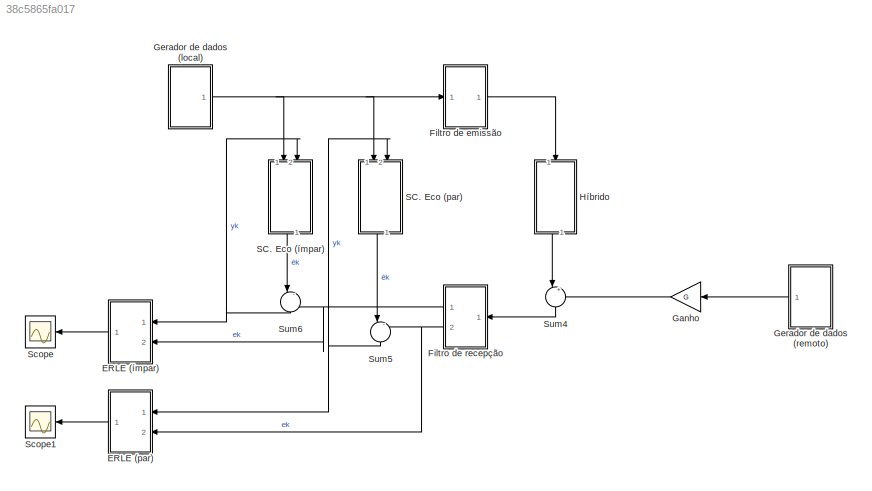
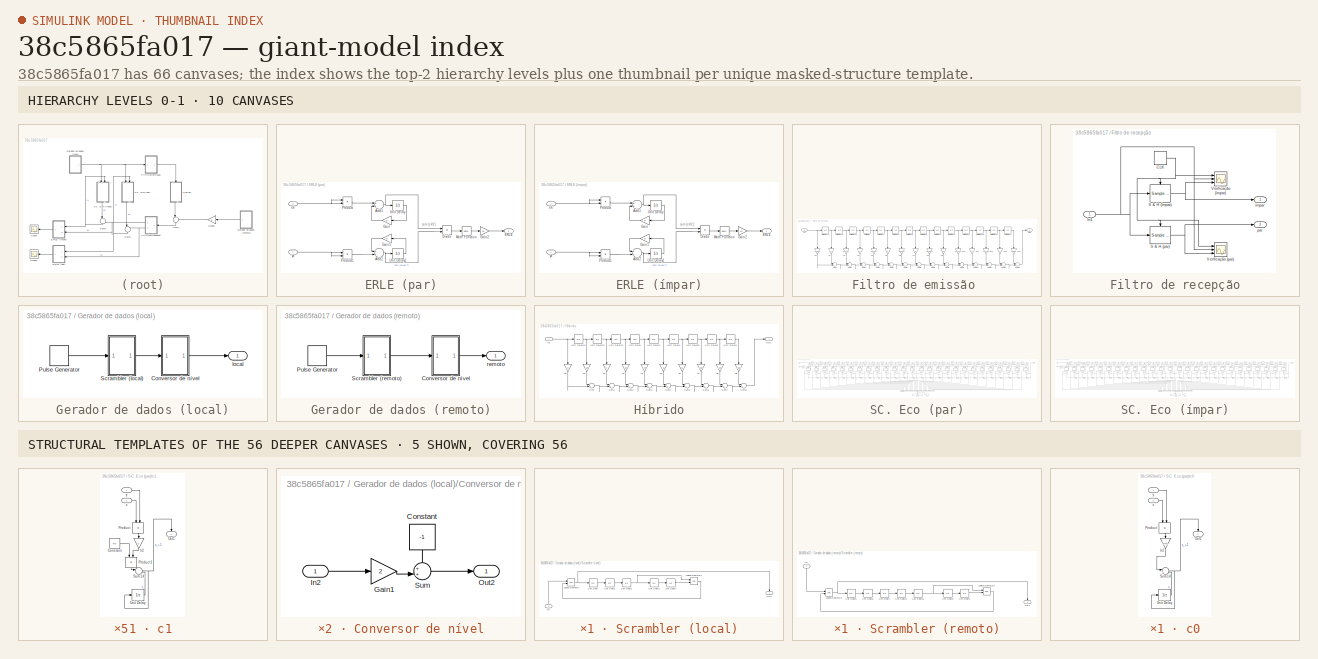
[diagram: thumbnail index - top-2 hierarchy levels (10 canvases) + 5 structural-template representatives of the remaining 56 canvases]
MODEL slx_38c5865fa017
KIND model
BLOCK [SubSystem] ERLE (par)
  FunctionWithSeparateData = off
  MaskHideContents = off
  MinAlgLoopOccurrences = off
  Opaque = off
  Ports = [2, 1]
  PropExecContextOutsideSubsystem = off
  RTWSystemCode = Auto
  RequestExecContextInheritance = off
BLOCK [Sum] ERLE (par)/Add1
  InputSameDT = off
  OutDataTypeStr = Inherit: Inherit via internal rule
  Ports = [2, 1]
  SaturateOnIntegerOverflow = off
BLOCK [Sum] ERLE (par)/Add2
  InputSameDT = off
  OutDataTypeStr = Inherit: Inherit via internal rule
  Ports = [2, 1]
  SaturateOnIntegerOverflow = off
BLOCK [Product] ERLE (par)/Divide
  InputSameDT = off
  Inputs = */
  OutDataTypeStr = Inherit: Inherit via internal rule
  Ports = [2, 1]
  RndMeth = Floor
  SaturateOnIntegerOverflow = off
BLOCK [Outport] ERLE (par)/ERLE
  IconDisplay = Port number
BLOCK [Gain] ERLE (par)/Gain
  Gain = M
  OutDataTypeStr = Inherit: Inherit via internal rule
  ParamDataTypeStr = Inherit: Inherit via internal rule
  SaturateOnIntegerOverflow = off
BLOCK [Gain] ERLE (par)/Gain1
  Gain = M
  OutDataTypeStr = Inherit: Inherit via internal rule
  ParamDataTypeStr = Inherit: Inherit via internal rule
  SaturateOnIntegerOverflow = off
BLOCK [Gain] ERLE (par)/Gain2
  Gain = 10
  OutDataTypeStr = Inherit: Inherit via internal rule
  ParamDataTypeStr = Inherit: Inherit via internal rule
  SaturateOnIntegerOverflow = off
BLOCK [Math] ERLE (par)/Math Function
  Operator = log10
  Ports = [1, 1]
BLOCK [Product] ERLE (par)/Product
  InputSameDT = off
  OutDataTypeStr = Inherit: Inherit via internal rule
  Ports = [2, 1]
  RndMeth = Floor
  SaturateOnIntegerOverflow = off
BLOCK [Product] ERLE (par)/Product1
  InputSameDT = off
  OutDataTypeStr = Inherit: Inherit via internal rule
  Ports = [2, 1]
  RndMeth = Floor
  SaturateOnIntegerOverflow = off
BLOCK [UnitDelay] ERLE (par)/Unit Delay
  InputProcessing = Elements as channels (sample based)
  SampleTime = -1
BLOCK [UnitDelay] ERLE (par)/Unit Delay1
  InputProcessing = Elements as channels (sample based)
  SampleTime = -1
BLOCK [Inport] ERLE (par)/ek
  IconDisplay = Port number
  Port = 2
BLOCK [Inport] ERLE (par)/yk
  IconDisplay = Port number
BLOCK [SubSystem] ERLE (ímpar)
  FunctionWithSeparateData = off
  MaskHideContents = off
  MinAlgLoopOccurrences = off
  Opaque = off
  Ports = [2, 1]
  PropExecContextOutsideSubsystem = off
  RTWSystemCode = Auto
  RequestExecContextInheritance = off
BLOCK [Sum] ERLE (ímpar)/Add1
  InputSameDT = off
  OutDataTypeStr = Inherit: Inherit via internal rule
  Ports = [2, 1]
  SaturateOnIntegerOverflow = off
BLOCK [Sum] ERLE (ímpar)/Add2
  InputSameDT = off
  OutDataTypeStr = Inherit: Inherit via internal rule
  Ports = [2, 1]
  SaturateOnIntegerOverflow = off
BLOCK [Product] ERLE (ímpar)/Divide
  InputSameDT = off
  Inputs = */
  OutDataTypeStr = Inherit: Inherit via internal rule
  Ports = [2, 1]
  RndMeth = Floor
  SaturateOnIntegerOverflow = off
BLOCK [Outport] ERLE (ímpar)/ERLE
  IconDisplay = Port number
BLOCK [Gain] ERLE (ímpar)/Gain
  Gain = M
  OutDataTypeStr = Inherit: Inherit via internal rule
  ParamDataTypeStr = Inherit: Inherit via internal rule
  SaturateOnIntegerOverflow = off
BLOCK [Gain] ERLE (ímpar)/Gain1
  Gain = M
  OutDataTypeStr = Inherit: Inherit via internal rule
  ParamDataTypeStr = Inherit: Inherit via internal rule
  SaturateOnIntegerOverflow = off
BLOCK [Gain] ERLE (ímpar)/Gain2
  Gain = 10
  OutDataTypeStr = Inherit: Inherit via internal rule
  ParamDataTypeStr = Inherit: Inherit via internal rule
  SaturateOnIntegerOverflow = off
BLOCK [Math] ERLE (ímpar)/Math Function
  Operator = log10
  Ports = [1, 1]
BLOCK [Product] ERLE (ímpar)/Product
  InputSameDT = off
  OutDataTypeStr = Inherit: Inherit via internal rule
  Ports = [2, 1]
  RndMeth = Floor
  SaturateOnIntegerOverflow = off
BLOCK [Product] ERLE (ímpar)/Product1
  InputSameDT = off
  OutDataTypeStr = Inherit: Inherit via internal rule
  Ports = [2, 1]
  RndMeth = Floor
  SaturateOnIntegerOverflow = off
BLOCK [UnitDelay] ERLE (ímpar)/Unit Delay
  InputProcessing = Elements as channels (sample based)
  SampleTime = -1
BLOCK [UnitDelay] ERLE (ímpar)/Unit Delay1
  InputProcessing = Elements as channels (sample based)
  SampleTime = -1
BLOCK [Inport] ERLE (ímpar)/ek
  IconDisplay = Port number
  Port = 2
BLOCK [Inport] ERLE (ímpar)/yk
  IconDisplay = Port number
BLOCK [SubSystem] Filtro de emissão 
  FunctionWithSeparateData = off
  MaskHideContents = off
  MinAlgLoopOccurrences = off
  Opaque = off
  Ports = [1, 1]
  PropExecContextOutsideSubsystem = off
  RTWSystemCode = Auto
  RequestExecContextInheritance = off
BLOCK [Outport] Filtro de emissão /Out1
  IconDisplay = Port number
BLOCK [Sum] Filtro de emissão /Sum
  IconShape = round
  InputSameDT = off
  Inputs = |++
  OutDataTypeStr = Inherit: Inherit via internal rule
  Ports = [2, 1]
  SaturateOnIntegerOverflow = off
BLOCK [Sum] Filtro de emissão /Sum1
  IconShape = round
  InputSameDT = off
  Inputs = |++
  OutDataTypeStr = Inherit: Inherit via internal rule
  Ports = [2, 1]
  SaturateOnIntegerOverflow = off
BLOCK [Sum] Filtro de emissão /Sum10
  IconShape = round
  InputSameDT = off
  Inputs = |++
  OutDataTypeStr = Inherit: Inherit via internal rule
  Ports = [2, 1]
  SaturateOnIntegerOverflow = off
BLOCK [Sum] Filtro de emissão /Sum11
  IconShape = round
  InputSameDT = off
  Inputs = |++
  OutDataTypeStr = Inherit: Inherit via internal rule
  Ports = [2, 1]
  SaturateOnIntegerOverflow = off
BLOCK [Sum] Filtro de emissão /Sum12
  IconShape = round
  InputSameDT = off
  Inputs = |++
  OutDataTypeStr = Inherit: Inherit via internal rule
  Ports = [2, 1]
  SaturateOnIntegerOverflow = off
BLOCK [Sum] Filtro de emissão /Sum13
  IconShape = round
  InputSameDT = off
  Inputs = |++
  OutDataTypeStr = Inherit: Inherit via internal rule
  Ports = [2, 1]
  SaturateOnIntegerOverflow = off
BLOCK [Sum] Filtro de emissão /Sum2
  IconShape = round
  InputSameDT = off
  Inputs = |++
  OutDataTypeStr = Inherit: Inherit via internal rule
  Ports = [2, 1]
  SaturateOnIntegerOverflow = off
BLOCK [Sum] Filtro de emissão /Sum3
  IconShape = round
  InputSameDT = off
  Inputs = |++
  OutDataTypeStr = Inherit: Inherit via internal rule
  Ports = [2, 1]
  SaturateOnIntegerOverflow = off
BLOCK [Sum] Filtro de emissão /Sum4
  IconShape = round
  InputSameDT = off
  Inputs = |++
  OutDataTypeStr = Inherit: Inherit via internal rule
  Ports = [2, 1]
  SaturateOnIntegerOverflow = off
BLOCK [Sum] Filtro de emissão /Sum5
  IconShape = round
  InputSameDT = off
  Inputs = |++
  OutDataTypeStr = Inherit: Inherit via internal rule
  Ports = [2, 1]
  SaturateOnIntegerOverflow = off
BLOCK [Sum] Filtro de emissão /Sum6
  IconShape = round
  InputSameDT = off
  Inputs = |++
  OutDataTypeStr = Inherit: Inherit via internal rule
  Ports = [2, 1]
  SaturateOnIntegerOverflow = off
BLOCK [Sum] Filtro de emissão /Sum7
  IconShape = round
  InputSameDT = off
  Inputs = |++
  OutDataTypeStr = Inherit: Inherit via internal rule
  Ports = [2, 1]
  SaturateOnIntegerOverflow = off
BLOCK [Sum] Filtro de emissão /Sum8
  IconShape = round
  InputSameDT = off
  Inputs = |++
  OutDataTypeStr = Inherit: Inherit via internal rule
  Ports = [2, 1]
  SaturateOnIntegerOverflow = off
BLOCK [Sum] Filtro de emissão /Sum9
  IconShape = round
  InputSameDT = off
  Inputs = |++
  OutDataTypeStr = Inherit: Inherit via internal rule
  Ports = [2, 1]
  SaturateOnIntegerOverflow = off
BLOCK [UnitDelay] Filtro de emissão /Unit Delay
  InputProcessing = Elements as channels (sample based)
  SampleTime = -1
BLOCK [UnitDelay] Filtro de emissão /Unit Delay1
  InputProcessing = Elements as channels (sample based)
  SampleTime = -1
BLOCK [UnitDelay] Filtro de emissão /Unit Delay10
  InputProcessing = Elements as channels (sample based)
  SampleTime = -1
BLOCK [UnitDelay] Filtro de emissão /Unit Delay11
  InputProcessing = Elements as channels (sample based)
  SampleTime = -1
BLOCK [UnitDelay] Filtro de emissão /Unit Delay12
  InputProcessing = Elements as channels (sample based)
  SampleTime = -1
BLOCK [UnitDelay] Filtro de emissão /Unit Delay13
  InputProcessing = Elements as channels (sample based)
  SampleTime = -1
BLOCK [UnitDelay] Filtro de emissão /Unit Delay14
  InputProcessing = Elements as channels (sample based)
  SampleTime = -1
BLOCK [UnitDelay] Filtro de emissão /Unit Delay2
  InputProcessing = Elements as channels (sample based)
  SampleTime = -1
BLOCK [UnitDelay] Filtro de emissão /Unit Delay3
  InputProcessing = Elements as channels (sample based)
  SampleTime = -1
BLOCK [UnitDelay] Filtro de emissão /Unit Delay4
  InputProcessing = Elements as channels (sample based)
  SampleTime = -1
BLOCK [UnitDelay] Filtro de emissão /Unit Delay5
  InputProcessing = Elements as channels (sample based)
  SampleTime = -1
BLOCK [UnitDelay] Filtro de emissão /Unit Delay6
  InputProcessing = Elements as channels (sample based)
  SampleTime = -1
BLOCK [UnitDelay] Filtro de emissão /Unit Delay7
  InputProcessing = Elements as channels (sample based)
  SampleTime = -1
BLOCK [UnitDelay] Filtro de emissão /Unit Delay9
  InputProcessing = Elements as channels (sample based)
  SampleTime = -1
BLOCK [Gain] Filtro de emissão /h0
  Gain = -0.0905
  OutDataTypeStr = Inherit: Inherit via internal rule
  ParamDataTypeStr = Inherit: Inherit via internal rule
  SaturateOnIntegerOverflow = off
BLOCK [Gain] Filtro de emissão /h1
  Gain = 0
  OutDataTypeStr = Inherit: Inherit via internal rule
  ParamDataTypeStr = Inherit: Inherit via internal rule
  SaturateOnIntegerOverflow = off
BLOCK [Gain] Filtro de emissão /h10
  Gain = -0.21221
  OutDataTypeStr = Inherit: Inherit via internal rule
  ParamDataTypeStr = Inherit: Inherit via internal rule
  SaturateOnIntegerOverflow = off
BLOCK [Gain] Filtro de emissão /h11
  Gain = 0
  OutDataTypeStr = Inherit: Inherit via internal rule
  ParamDataTypeStr = Inherit: Inherit via internal rule
  SaturateOnIntegerOverflow = off
BLOCK [Gain] Filtro de emissão /h12
  Gain = 0.12732
  OutDataTypeStr = Inherit: Inherit via internal rule
  ParamDataTypeStr = Inherit: Inherit via internal rule
  SaturateOnIntegerOverflow = off
BLOCK [Gain] Filtro de emissão /h13
  Gain = 0
  OutDataTypeStr = Inherit: Inherit via internal rule
  ParamDataTypeStr = Inherit: Inherit via internal rule
  SaturateOnIntegerOverflow = off
BLOCK [Gain] Filtro de emissão /h14
  Gain = -0.0905
  OutDataTypeStr = Inherit: Inherit via internal rule
  ParamDataTypeStr = Inherit: Inherit via internal rule
  SaturateOnIntegerOverflow = off
BLOCK [Gain] Filtro de emissão /h2
  Gain = 0.12732
  OutDataTypeStr = Inherit: Inherit via internal rule
  ParamDataTypeStr = Inherit: Inherit via internal rule
  SaturateOnIntegerOverflow = off
BLOCK [Gain] Filtro de emissão /h3
  Gain = 0
  OutDataTypeStr = Inherit: Inherit via internal rule
  ParamDataTypeStr = Inherit: Inherit via internal rule
  SaturateOnIntegerOverflow = off
BLOCK [Gain] Filtro de emissão /h4
  Gain = -0.21221
  OutDataTypeStr = Inherit: Inherit via internal rule
  ParamDataTypeStr = Inherit: Inherit via internal rule
  SaturateOnIntegerOverflow = off
BLOCK [Gain] Filtro de emissão /h5
  Gain = 0
  OutDataTypeStr = Inherit: Inherit via internal rule
  ParamDataTypeStr = Inherit: Inherit via internal rule
  SaturateOnIntegerOverflow = off
BLOCK [Gain] Filtro de emissão /h6
  Gain = 0.63662
  OutDataTypeStr = Inherit: Inherit via internal rule
  ParamDataTypeStr = Inherit: Inherit via internal rule
  SaturateOnIntegerOverflow = off
BLOCK [Gain] Filtro de emissão /h7
  OutDataTypeStr = Inherit: Inherit via internal rule
  ParamDataTypeStr = Inherit: Inherit via internal rule
  SaturateOnIntegerOverflow = off
BLOCK [Gain] Filtro de emissão /h8
  Gain = 0.63662
  OutDataTypeStr = Inherit: Inherit via internal rule
  ParamDataTypeStr = Inherit: Inherit via internal rule
  SaturateOnIntegerOverflow = off
BLOCK [Gain] Filtro de emissão /h9
  Gain = 0
  OutDataTypeStr = Inherit: Inherit via internal rule
  ParamDataTypeStr = Inherit: Inherit via internal rule
  SaturateOnIntegerOverflow = off
BLOCK [Inport] Filtro de emissão /xk
  IconDisplay = Port number
BLOCK [SubSystem] Filtro de recepção
  FunctionWithSeparateData = off
  MaskHideContents = off
  MinAlgLoopOccurrences = off
  Opaque = off
  Ports = [1, 2]
  PropExecContextOutsideSubsystem = off
  RTWSystemCode = Auto
  RequestExecContextInheritance = off
BLOCK [DiscretePulseGenerator] Filtro de recepção/CLK
  Period = 2*T
  Ports = [0, 1]
  PulseType = Time based
  PulseWidth = 50
  SampleTime = St
BLOCK [Inport] Filtro de recepção/In1
  IconDisplay = Port number
BLOCK [Reference] Filtro de recepção/S & H (par)   REF=dspsigops/Sample
and Hold
  Ports = [1, 1, 0, 1]
  SourceBlock = dspsigops/Sample\nand Hold
  SourceType = Sample and Hold
  initCond = 0
  latchinput = off
  trig = Falling edge
BLOCK [Reference] Filtro de recepção/S & H (ímpar)   REF=dspsigops/Sample
and Hold
  Ports = [1, 1, 0, 1]
  SourceBlock = dspsigops/Sample\nand Hold
  SourceType = Sample and Hold
  initCond = 0
  latchinput = off
  trig = Rising edge
BLOCK [Scope] Filtro de recepção/Verificação (par)
  DataFormat = StructureWithTime
  Floating = off
  NumInputPorts = 3
  Ports = [3]
  SampleTime = 0
  ShowLegends = off
  YMax = 5~5~5
  YMin = -5~-5~-5
BLOCK [Scope] Filtro de recepção/Verificação (ímpar)
  DataFormat = StructureWithTime
  Floating = off
  NumInputPorts = 3
  Ports = [3]
  SampleTime = 0
  SaveName = ScopeData1
  ShowLegends = off
  YMax = 5~5~5
  YMin = -5~-5~-5
BLOCK [Outport] Filtro de recepção/par
  IconDisplay = Port number
  Port = 2
BLOCK [Outport] Filtro de recepção/ímpar
  IconDisplay = Port number
BLOCK [Gain] Ganho
  Gain = G
  OutDataTypeStr = Inherit: Inherit via internal rule
  ParamDataTypeStr = Inherit: Inherit via internal rule
  SaturateOnIntegerOverflow = off
BLOCK [SubSystem] Gerador de dados (local)
  FunctionWithSeparateData = off
  MaskHideContents = off
  MinAlgLoopOccurrences = off
  Opaque = off
  Ports = [0, 1]
  PropExecContextOutsideSubsystem = off
  RTWSystemCode = Auto
  RequestExecContextInheritance = off
BLOCK [SubSystem] Gerador de dados (local)/Conversor de nível
  FunctionWithSeparateData = off
  MaskHideContents = off
  MinAlgLoopOccurrences = off
  Opaque = off
  Ports = [1, 1]
  PropExecContextOutsideSubsystem = off
  RTWSystemCode = Auto
  RequestExecContextInheritance = off
BLOCK [Constant] Gerador de dados (local)/Conversor de nível/Constant
  Value = -1
BLOCK [Gain] Gerador de dados (local)/Conversor de nível/Gain1
  Gain = 2
  OutDataTypeStr = Inherit: Inherit via internal rule
  ParamDataTypeStr = Inherit: Inherit via internal rule
  SaturateOnIntegerOverflow = off
BLOCK [Inport] Gerador de dados (local)/Conversor de nível/In2
  IconDisplay = Port number
BLOCK [Outport] Gerador de dados (local)/Conversor de nível/Out2
  IconDisplay = Port number
BLOCK [Sum] Gerador de dados (local)/Conversor de nível/Sum
  IconShape = round
  InputSameDT = off
  Inputs = ++|
  OutDataTypeStr = Inherit: Inherit via internal rule
  Ports = [2, 1]
  SaturateOnIntegerOverflow = off
BLOCK [DiscretePulseGenerator] Gerador de dados (local)/Pulse Generator
  Period = 2*T
  Ports = [0, 1]
  PulseType = Time based
  PulseWidth = 50
  SampleTime = St
BLOCK [SubSystem] Gerador de dados (local)/Scrambler (local)
  FunctionWithSeparateData = off
  MaskHideContents = off
  MinAlgLoopOccurrences = off
  Opaque = off
  Ports = [1, 1]
  PropExecContextOutsideSubsystem = off
  RTWSystemCode = Auto
  RequestExecContextInheritance = off
BLOCK [Inport] Gerador de dados (local)/Scrambler (local)/In1
  IconDisplay = Port number
BLOCK [Logic] Gerador de dados (local)/Scrambler (local)/Logical Operator
  AllPortsSameDT = off
  Operator = XOR
  OutDataTypeStr = fixdt(1,16)
  Ports = [2, 1]
BLOCK [Logic] Gerador de dados (local)/Scrambler (local)/Logical Operator1
  AllPortsSameDT = off
  Operator = XOR
  OutDataTypeStr = boolean
  Ports = [2, 1]
BLOCK [Outport] Gerador de dados (local)/Scrambler (local)/Out1
  IconDisplay = Port number
BLOCK [UnitDelay] Gerador de dados (local)/Scrambler (local)/Unit Delay
  InputProcessing = Elements as channels (sample based)
  SampleTime = -1
BLOCK [UnitDelay] Gerador de dados (local)/Scrambler (local)/Unit Delay1
  InputProcessing = Elements as channels (sample based)
  SampleTime = -1
BLOCK [UnitDelay] Gerador de dados (local)/Scrambler (local)/Unit Delay2
  InputProcessing = Elements as channels (sample based)
  SampleTime = -1
BLOCK [UnitDelay] Gerador de dados (local)/Scrambler (local)/Unit Delay3
  InputProcessing = Elements as channels (sample based)
  SampleTime = -1
BLOCK [UnitDelay] Gerador de dados (local)/Scrambler (local)/Unit Delay4
  InputProcessing = Elements as channels (sample based)
  SampleTime = -1
BLOCK [Outport] Gerador de dados (local)/local
  IconDisplay = Port number
BLOCK [SubSystem] Gerador de dados (remoto)
  FunctionWithSeparateData = off
  MaskHideContents = off
  MinAlgLoopOccurrences = off
  Opaque = off
  Ports = [0, 1]
  PropExecContextOutsideSubsystem = off
  RTWSystemCode = Auto
  RequestExecContextInheritance = off
BLOCK [SubSystem] Gerador de dados (remoto)/Conversor de nível
  FunctionWithSeparateData = off
  MaskHideContents = off
  MinAlgLoopOccurrences = off
  Opaque = off
  Ports = [1, 1]
  PropExecContextOutsideSubsystem = off
  RTWSystemCode = Auto
  RequestExecContextInheritance = off
BLOCK [Constant] Gerador de dados (remoto)/Conversor de nível/Constant
  Value = -1
BLOCK [Gain] Gerador de dados (remoto)/Conversor de nível/Gain1
  Gain = 2
  OutDataTypeStr = Inherit: Inherit via internal rule
  ParamDataTypeStr = Inherit: Inherit via internal rule
  SaturateOnIntegerOverflow = off
BLOCK [Inport] Gerador de dados (remoto)/Conversor de nível/In2
  IconDisplay = Port number
BLOCK [Outport] Gerador de dados (remoto)/Conversor de nível/Out2
  IconDisplay = Port number
BLOCK [Sum] Gerador de dados (remoto)/Conversor de nível/Sum
  IconShape = round
  InputSameDT = off
  Inputs = ++|
  OutDataTypeStr = Inherit: Inherit via internal rule
  Ports = [2, 1]
  SaturateOnIntegerOverflow = off
BLOCK [DiscretePulseGenerator] Gerador de dados (remoto)/Pulse Generator
  Period = 2*T
  Ports = [0, 1]
  PulseType = Time based
  PulseWidth = 50
  SampleTime = St
BLOCK [SubSystem] Gerador de dados (remoto)/Scrambler (remoto)
  FunctionWithSeparateData = off
  MaskHideContents = off
  MinAlgLoopOccurrences = off
  Opaque = off
  Ports = [1, 1]
  PropExecContextOutsideSubsystem = off
  RTWSystemCode = Auto
  RequestExecContextInheritance = off
BLOCK [Inport] Gerador de dados (remoto)/Scrambler (remoto)/In1
  IconDisplay = Port number
BLOCK [Logic] Gerador de dados (remoto)/Scrambler (remoto)/Logical Operator2
  AllPortsSameDT = off
  Operator = XOR
  OutDataTypeStr = fixdt(1,16)
  Ports = [2, 1]
BLOCK [Logic] Gerador de dados (remoto)/Scrambler (remoto)/Logical Operator3
  AllPortsSameDT = off
  Operator = XOR
  OutDataTypeStr = boolean
  Ports = [2, 1]
BLOCK [Outport] Gerador de dados (remoto)/Scrambler (remoto)/Out1
  IconDisplay = Port number
BLOCK [UnitDelay] Gerador de dados (remoto)/Scrambler (remoto)/Unit Delay10
  InputProcessing = Elements as channels (sample based)
  SampleTime = -1
BLOCK [UnitDelay] Gerador de dados (remoto)/Scrambler (remoto)/Unit Delay11
  InputProcessing = Elements as channels (sample based)
  SampleTime = -1
BLOCK [UnitDelay] Gerador de dados (remoto)/Scrambler (remoto)/Unit Delay5
  InputProcessing = Elements as channels (sample based)
  SampleTime = -1
BLOCK [UnitDelay] Gerador de dados (remoto)/Scrambler (remoto)/Unit Delay6
  InputProcessing = Elements as channels (sample based)
  SampleTime = -1
BLOCK [UnitDelay] Gerador de dados (remoto)/Scrambler (remoto)/Unit Delay7
  InputProcessing = Elements as channels (sample based)
  SampleTime = -1
BLOCK [UnitDelay] Gerador de dados (remoto)/Scrambler (remoto)/Unit Delay8
  InputProcessing = Elements as channels (sample based)
  SampleTime = -1
BLOCK [UnitDelay] Gerador de dados (remoto)/Scrambler (remoto)/Unit Delay9
  InputProcessing = Elements as channels (sample based)
  SampleTime = -1
BLOCK [Outport] Gerador de dados (remoto)/remoto
  IconDisplay = Port number
BLOCK [SubSystem] Híbrido
  FunctionWithSeparateData = off
  MaskHideContents = off
  MinAlgLoopOccurrences = off
  Opaque = off
  Ports = [1, 1]
  PropExecContextOutsideSubsystem = off
  RTWSystemCode = Auto
  RequestExecContextInheritance = off
BLOCK [Inport] Híbrido/In1
  IconDisplay = Port number
BLOCK [Outport] Híbrido/Out1
  IconDisplay = Port number
BLOCK [Sum] Híbrido/Sum
  IconShape = round
  InputSameDT = off
  Inputs = |++
  OutDataTypeStr = Inherit: Inherit via internal rule
  Ports = [2, 1]
  SaturateOnIntegerOverflow = off
BLOCK [Sum] Híbrido/Sum1
  IconShape = round
  InputSameDT = off
  Inputs = |++
  OutDataTypeStr = Inherit: Inherit via internal rule
  Ports = [2, 1]
  SaturateOnIntegerOverflow = off
BLOCK [Sum] Híbrido/Sum2
  IconShape = round
  InputSameDT = off
  Inputs = |++
  OutDataTypeStr = Inherit: Inherit via internal rule
  Ports = [2, 1]
  SaturateOnIntegerOverflow = off
BLOCK [Sum] Híbrido/Sum3
  IconShape = round
  InputSameDT = off
  Inputs = |++
  OutDataTypeStr = Inherit: Inherit via internal rule
  Ports = [2, 1]
  SaturateOnIntegerOverflow = off
BLOCK [Sum] Híbrido/Sum4
  IconShape = round
  InputSameDT = off
  Inputs = |++
  OutDataTypeStr = Inherit: Inherit via internal rule
  Ports = [2, 1]
  SaturateOnIntegerOverflow = off
BLOCK [Sum] Híbrido/Sum5
  IconShape = round
  InputSameDT = off
  Inputs = |++
  OutDataTypeStr = Inherit: Inherit via internal rule
  Ports = [2, 1]
  SaturateOnIntegerOverflow = off
BLOCK [Sum] Híbrido/Sum6
  IconShape = round
  InputSameDT = off
  Inputs = |++
  OutDataTypeStr = Inherit: Inherit via internal rule
  Ports = [2, 1]
  SaturateOnIntegerOverflow = off
BLOCK [Sum] Híbrido/Sum7
  IconShape = round
  InputSameDT = off
  Inputs = |++
  OutDataTypeStr = Inherit: Inherit via internal rule
  Ports = [2, 1]
  SaturateOnIntegerOverflow = off
BLOCK [Sum] Híbrido/Sum8
  IconShape = round
  InputSameDT = off
  Inputs = |++
  OutDataTypeStr = Inherit: Inherit via internal rule
  Ports = [2, 1]
  SaturateOnIntegerOverflow = off
BLOCK [UnitDelay] Híbrido/Unit Delay
  InputProcessing = Elements as channels (sample based)
  SampleTime = -1
BLOCK [UnitDelay] Híbrido/Unit Delay1
  InputProcessing = Elements as channels (sample based)
  SampleTime = -1
BLOCK [UnitDelay] Híbrido/Unit Delay12
  InputProcessing = Elements as channels (sample based)
  SampleTime = -1
BLOCK [UnitDelay] Híbrido/Unit Delay13
  InputProcessing = Elements as channels (sample based)
  SampleTime = -1
BLOCK [UnitDelay] Híbrido/Unit Delay14
  InputProcessing = Elements as channels (sample based)
  SampleTime = -1
BLOCK [UnitDelay] Híbrido/Unit Delay2
  InputProcessing = Elements as channels (sample based)
  SampleTime = -1
BLOCK [UnitDelay] Híbrido/Unit Delay4
  InputProcessing = Elements as channels (sample based)
  SampleTime = -1
BLOCK [UnitDelay] Híbrido/Unit Delay5
  InputProcessing = Elements as channels (sample based)
  SampleTime = -1
BLOCK [UnitDelay] Híbrido/Unit Delay6
  InputProcessing = Elements as channels (sample based)
  SampleTime = -1
BLOCK [Gain] Híbrido/h0
  Gain = 0
  OutDataTypeStr = Inherit: Inherit via internal rule
  ParamDataTypeStr = Inherit: Inherit via internal rule
  SaturateOnIntegerOverflow = off
BLOCK [Gain] Híbrido/h1
  Gain = 0.2
  OutDataTypeStr = Inherit: Inherit via internal rule
  ParamDataTypeStr = Inherit: Inherit via internal rule
  SaturateOnIntegerOverflow = off
BLOCK [Gain] Híbrido/h2
  OutDataTypeStr = Inherit: Inherit via internal rule
  ParamDataTypeStr = Inherit: Inherit via internal rule
  SaturateOnIntegerOverflow = off
BLOCK [Gain] Híbrido/h3
  Gain = 0.3
  OutDataTypeStr = Inherit: Inherit via internal rule
  ParamDataTypeStr = Inherit: Inherit via internal rule
  SaturateOnIntegerOverflow = off
BLOCK [Gain] Híbrido/h4
  Gain = -0.4
  OutDataTypeStr = Inherit: Inherit via internal rule
  ParamDataTypeStr = Inherit: Inherit via internal rule
  SaturateOnIntegerOverflow = off
BLOCK [Gain] Híbrido/h5
  Gain = -0.1
  OutDataTypeStr = Inherit: Inherit via internal rule
  ParamDataTypeStr = Inherit: Inherit via internal rule
  SaturateOnIntegerOverflow = off
BLOCK [Gain] Híbrido/h6
  Gain = 0.1
  OutDataTypeStr = Inherit: Inherit via internal rule
  ParamDataTypeStr = Inherit: Inherit via internal rule
  SaturateOnIntegerOverflow = off
BLOCK [Gain] Híbrido/h7
  Gain = -0.05
  OutDataTypeStr = Inherit: Inherit via internal rule
  ParamDataTypeStr = Inherit: Inherit via internal rule
  SaturateOnIntegerOverflow = off
BLOCK [Gain] Híbrido/h8
  Gain = -0.02
  OutDataTypeStr = Inherit: Inherit via internal rule
  ParamDataTypeStr = Inherit: Inherit via internal rule
  SaturateOnIntegerOverflow = off
BLOCK [Gain] Híbrido/h9
  Gain = -0.01
  OutDataTypeStr = Inherit: Inherit via internal rule
  ParamDataTypeStr = Inherit: Inherit via internal rule
  SaturateOnIntegerOverflow = off
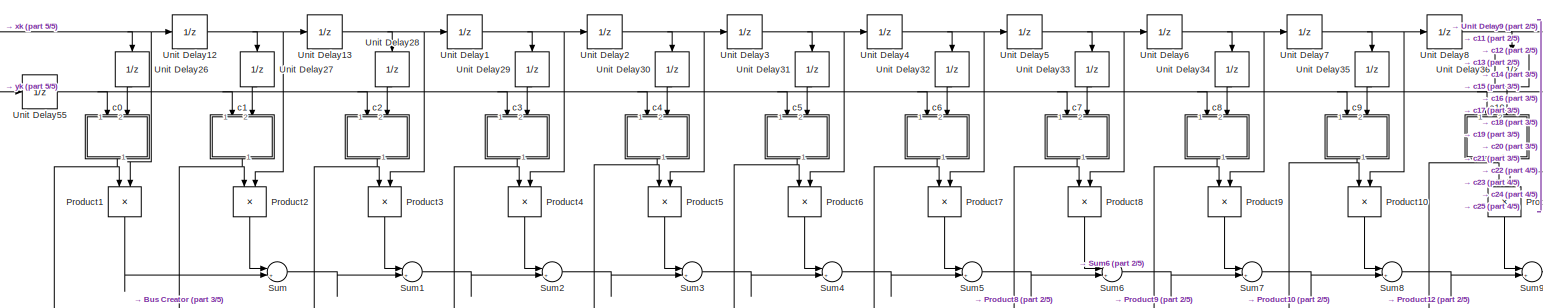
[diagram: SC. Eco (par) - part 1/5, top left region]
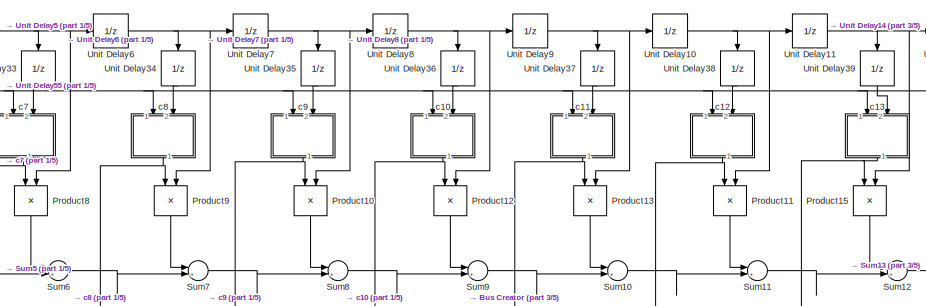
[diagram: SC. Eco (par) - part 2/5, top center region]
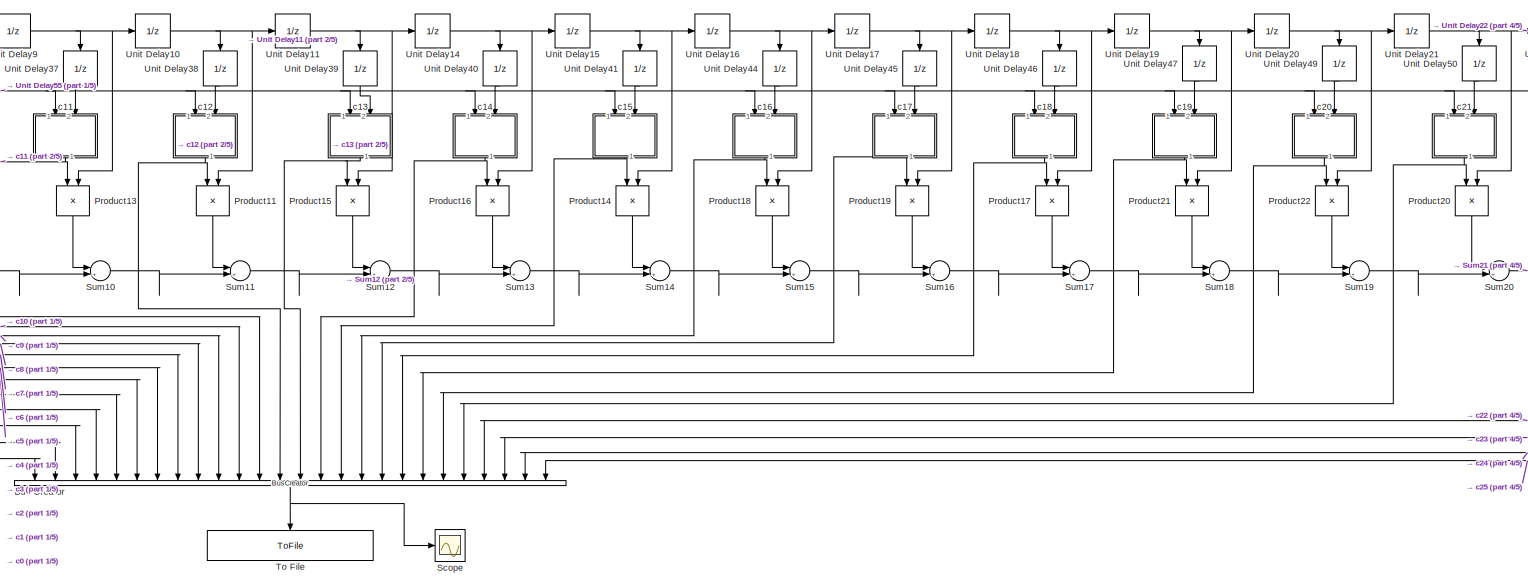
[diagram: SC. Eco (par) - part 3/5, center side, full height]
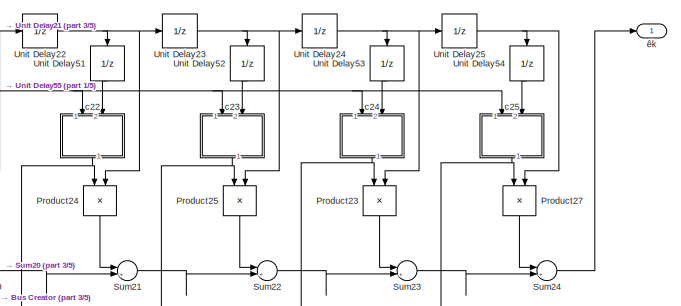
[diagram: SC. Eco (par) - part 4/5, top right region]
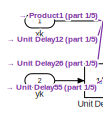
[diagram: SC. Eco (par) - part 5/5, top left region]
BLOCK [SubSystem] SC. Eco (par)
  FunctionWithSeparateData = off
  MaskHideContents = off
  MinAlgLoopOccurrences = off
  Opaque = off
  Ports = [2, 1]
  PropExecContextOutsideSubsystem = off
  RTWSystemCode = Auto
  RequestExecContextInheritance = off
BLOCK [BusCreator] SC. Eco (par)/Bus Creator
  DisplayOption = bar
  Inputs = 26
  Ports = [26, 1]
BLOCK [Product] SC. Eco (par)/Product1
  InputSameDT = off
  OutDataTypeStr = Inherit: Inherit via internal rule
  Ports = [2, 1]
  RndMeth = Floor
  SaturateOnIntegerOverflow = off
BLOCK [Product] SC. Eco (par)/Product10
  InputSameDT = off
  OutDataTypeStr = Inherit: Inherit via internal rule
  Ports = [2, 1]
  RndMeth = Floor
  SaturateOnIntegerOverflow = off
BLOCK [Product] SC. Eco (par)/Product11
  InputSameDT = off
  OutDataTypeStr = Inherit: Inherit via internal rule
  Ports = [2, 1]
  RndMeth = Floor
  SaturateOnIntegerOverflow = off
BLOCK [Product] SC. Eco (par)/Product12
  InputSameDT = off
  OutDataTypeStr = Inherit: Inherit via internal rule
  Ports = [2, 1]
  RndMeth = Floor
  SaturateOnIntegerOverflow = off
BLOCK [Product] SC. Eco (par)/Product13
  InputSameDT = off
  OutDataTypeStr = Inherit: Inherit via internal rule
  Ports = [2, 1]
  RndMeth = Floor
  SaturateOnIntegerOverflow = off
BLOCK [Product] SC. Eco (par)/Product14
  InputSameDT = off
  OutDataTypeStr = Inherit: Inherit via internal rule
  Ports = [2, 1]
  RndMeth = Floor
  SaturateOnIntegerOverflow = off
BLOCK [Product] SC. Eco (par)/Product15
  InputSameDT = off
  OutDataTypeStr = Inherit: Inherit via internal rule
  Ports = [2, 1]
  RndMeth = Floor
  SaturateOnIntegerOverflow = off
BLOCK [Product] SC. Eco (par)/Product16
  InputSameDT = off
  OutDataTypeStr = Inherit: Inherit via internal rule
  Ports = [2, 1]
  RndMeth = Floor
  SaturateOnIntegerOverflow = off
BLOCK [Product] SC. Eco (par)/Product17
  InputSameDT = off
  OutDataTypeStr = Inherit: Inherit via internal rule
  Ports = [2, 1]
  RndMeth = Floor
  SaturateOnIntegerOverflow = off
BLOCK [Product] SC. Eco (par)/Product18
  InputSameDT = off
  OutDataTypeStr = Inherit: Inherit via internal rule
  Ports = [2, 1]
  RndMeth = Floor
  SaturateOnIntegerOverflow = off
BLOCK [Product] SC. Eco (par)/Product19
  InputSameDT = off
  OutDataTypeStr = Inherit: Inherit via internal rule
  Ports = [2, 1]
  RndMeth = Floor
  SaturateOnIntegerOverflow = off
BLOCK [Product] SC. Eco (par)/Product2
  InputSameDT = off
  OutDataTypeStr = Inherit: Inherit via internal rule
  Ports = [2, 1]
  RndMeth = Floor
  SaturateOnIntegerOverflow = off
BLOCK [Product] SC. Eco (par)/Product20
  InputSameDT = off
  OutDataTypeStr = Inherit: Inherit via internal rule
  Ports = [2, 1]
  RndMeth = Floor
  SaturateOnIntegerOverflow = off
BLOCK [Product] SC. Eco (par)/Product21
  InputSameDT = off
  OutDataTypeStr = Inherit: Inherit via internal rule
  Ports = [2, 1]
  RndMeth = Floor
  SaturateOnIntegerOverflow = off
BLOCK [Product] SC. Eco (par)/Product22
  InputSameDT = off
  OutDataTypeStr = Inherit: Inherit via internal rule
  Ports = [2, 1]
  RndMeth = Floor
  SaturateOnIntegerOverflow = off
BLOCK [Product] SC. Eco (par)/Product23
  InputSameDT = off
  OutDataTypeStr = Inherit: Inherit via internal rule
  Ports = [2, 1]
  RndMeth = Floor
  SaturateOnIntegerOverflow = off
BLOCK [Product] SC. Eco (par)/Product24
  InputSameDT = off
  OutDataTypeStr = Inherit: Inherit via internal rule
  Ports = [2, 1]
  RndMeth = Floor
  SaturateOnIntegerOverflow = off
BLOCK [Product] SC. Eco (par)/Product25
  InputSameDT = off
  OutDataTypeStr = Inherit: Inherit via internal rule
  Ports = [2, 1]
  RndMeth = Floor
  SaturateOnIntegerOverflow = off
BLOCK [Product] SC. Eco (par)/Product27
  InputSameDT = off
  OutDataTypeStr = Inherit: Inherit via internal rule
  Ports = [2, 1]
  RndMeth = Floor
  SaturateOnIntegerOverflow = off
BLOCK [Product] SC. Eco (par)/Product3
  InputSameDT = off
  OutDataTypeStr = Inherit: Inherit via internal rule
  Ports = [2, 1]
  RndMeth = Floor
  SaturateOnIntegerOverflow = off
BLOCK [Product] SC. Eco (par)/Product4
  InputSameDT = off
  OutDataTypeStr = Inherit: Inherit via internal rule
  Ports = [2, 1]
  RndMeth = Floor
  SaturateOnIntegerOverflow = off
BLOCK [Product] SC. Eco (par)/Product5
  InputSameDT = off
  OutDataTypeStr = Inherit: Inherit via internal rule
  Ports = [2, 1]
  RndMeth = Floor
  SaturateOnIntegerOverflow = off
BLOCK [Product] SC. Eco (par)/Product6
  InputSameDT = off
  OutDataTypeStr = Inherit: Inherit via internal rule
  Ports = [2, 1]
  RndMeth = Floor
  SaturateOnIntegerOverflow = off
BLOCK [Product] SC. Eco (par)/Product7
  InputSameDT = off
  OutDataTypeStr = Inherit: Inherit via internal rule
  Ports = [2, 1]
  RndMeth = Floor
  SaturateOnIntegerOverflow = off
BLOCK [Product] SC. Eco (par)/Product8
  InputSameDT = off
  OutDataTypeStr = Inherit: Inherit via internal rule
  Ports = [2, 1]
  RndMeth = Floor
  SaturateOnIntegerOverflow = off
BLOCK [Product] SC. Eco (par)/Product9
  InputSameDT = off
  OutDataTypeStr = Inherit: Inherit via internal rule
  Ports = [2, 1]
  RndMeth = Floor
  SaturateOnIntegerOverflow = off
BLOCK [Scope] SC. Eco (par)/Scope
  DataFormat = StructureWithTime
  Floating = off
  NumInputPorts = 1
  Ports = [1]
  SampleTime = 0
  SaveName = ScopeData5
  ShowLegends = off
BLOCK [Sum] SC. Eco (par)/Sum
  IconShape = round
  InputSameDT = off
  Inputs = |++
  OutDataTypeStr = Inherit: Inherit via internal rule
  Ports = [2, 1]
  SaturateOnIntegerOverflow = off
BLOCK [Sum] SC. Eco (par)/Sum1
  IconShape = round
  InputSameDT = off
  Inputs = |++
  OutDataTypeStr = Inherit: Inherit via internal rule
  Ports = [2, 1]
  SaturateOnIntegerOverflow = off
BLOCK [Sum] SC. Eco (par)/Sum10
  IconShape = round
  InputSameDT = off
  Inputs = |++
  OutDataTypeStr = Inherit: Inherit via internal rule
  Ports = [2, 1]
  SaturateOnIntegerOverflow = off
BLOCK [Sum] SC. Eco (par)/Sum11
  IconShape = round
  InputSameDT = off
  Inputs = |++
  OutDataTypeStr = Inherit: Inherit via internal rule
  Ports = [2, 1]
  SaturateOnIntegerOverflow = off
BLOCK [Sum] SC. Eco (par)/Sum12
  IconShape = round
  InputSameDT = off
  Inputs = |++
  OutDataTypeStr = Inherit: Inherit via internal rule
  Ports = [2, 1]
  SaturateOnIntegerOverflow = off
BLOCK [Sum] SC. Eco (par)/Sum13
  IconShape = round
  InputSameDT = off
  Inputs = |++
  OutDataTypeStr = Inherit: Inherit via internal rule
  Ports = [2, 1]
  SaturateOnIntegerOverflow = off
BLOCK [Sum] SC. Eco (par)/Sum14
  IconShape = round
  InputSameDT = off
  Inputs = |++
  OutDataTypeStr = Inherit: Inherit via internal rule
  Ports = [2, 1]
  SaturateOnIntegerOverflow = off
BLOCK [Sum] SC. Eco (par)/Sum15
  IconShape = round
  InputSameDT = off
  Inputs = |++
  OutDataTypeStr = Inherit: Inherit via internal rule
  Ports = [2, 1]
  SaturateOnIntegerOverflow = off
BLOCK [Sum] SC. Eco (par)/Sum16
  IconShape = round
  InputSameDT = off
  Inputs = |++
  OutDataTypeStr = Inherit: Inherit via internal rule
  Ports = [2, 1]
  SaturateOnIntegerOverflow = off
BLOCK [Sum] SC. Eco (par)/Sum17
  IconShape = round
  InputSameDT = off
  Inputs = |++
  OutDataTypeStr = Inherit: Inherit via internal rule
  Ports = [2, 1]
  SaturateOnIntegerOverflow = off
BLOCK [Sum] SC. Eco (par)/Sum18
  IconShape = round
  InputSameDT = off
  Inputs = |++
  OutDataTypeStr = Inherit: Inherit via internal rule
  Ports = [2, 1]
  SaturateOnIntegerOverflow = off
BLOCK [Sum] SC. Eco (par)/Sum19
  IconShape = round
  InputSameDT = off
  Inputs = |++
  OutDataTypeStr = Inherit: Inherit via internal rule
  Ports = [2, 1]
  SaturateOnIntegerOverflow = off
BLOCK [Sum] SC. Eco (par)/Sum2
  IconShape = round
  InputSameDT = off
  Inputs = |++
  OutDataTypeStr = Inherit: Inherit via internal rule
  Ports = [2, 1]
  SaturateOnIntegerOverflow = off
BLOCK [Sum] SC. Eco (par)/Sum20
  IconShape = round
  InputSameDT = off
  Inputs = |++
  OutDataTypeStr = Inherit: Inherit via internal rule
  Ports = [2, 1]
  SaturateOnIntegerOverflow = off
BLOCK [Sum] SC. Eco (par)/Sum21
  IconShape = round
  InputSameDT = off
  Inputs = |++
  OutDataTypeStr = Inherit: Inherit via internal rule
  Ports = [2, 1]
  SaturateOnIntegerOverflow = off
BLOCK [Sum] SC. Eco (par)/Sum22
  IconShape = round
  InputSameDT = off
  Inputs = |++
  OutDataTypeStr = Inherit: Inherit via internal rule
  Ports = [2, 1]
  SaturateOnIntegerOverflow = off
BLOCK [Sum] SC. Eco (par)/Sum23
  IconShape = round
  InputSameDT = off
  Inputs = |++
  OutDataTypeStr = Inherit: Inherit via internal rule
  Ports = [2, 1]
  SaturateOnIntegerOverflow = off
BLOCK [Sum] SC. Eco (par)/Sum24
  IconShape = round
  InputSameDT = off
  Inputs = |++
  OutDataTypeStr = Inherit: Inherit via internal rule
  Ports = [2, 1]
  SaturateOnIntegerOverflow = off
BLOCK [Sum] SC. Eco (par)/Sum3
  IconShape = round
  InputSameDT = off
  Inputs = |++
  OutDataTypeStr = Inherit: Inherit via internal rule
  Ports = [2, 1]
  SaturateOnIntegerOverflow = off
BLOCK [Sum] SC. Eco (par)/Sum4
  IconShape = round
  InputSameDT = off
  Inputs = |++
  OutDataTypeStr = Inherit: Inherit via internal rule
  Ports = [2, 1]
  SaturateOnIntegerOverflow = off
BLOCK [Sum] SC. Eco (par)/Sum5
  IconShape = round
  InputSameDT = off
  Inputs = |++
  OutDataTypeStr = Inherit: Inherit via internal rule
  Ports = [2, 1]
  SaturateOnIntegerOverflow = off
BLOCK [Sum] SC. Eco (par)/Sum6
  IconShape = round
  InputSameDT = off
  Inputs = |++
  OutDataTypeStr = Inherit: Inherit via internal rule
  Ports = [2, 1]
  SaturateOnIntegerOverflow = off
BLOCK [Sum] SC. Eco (par)/Sum7
  IconShape = round
  InputSameDT = off
  Inputs = |++
  OutDataTypeStr = Inherit: Inherit via internal rule
  Ports = [2, 1]
  SaturateOnIntegerOverflow = off
BLOCK [Sum] SC. Eco (par)/Sum8
  IconShape = round
  InputSameDT = off
  Inputs = |++
  OutDataTypeStr = Inherit: Inherit via internal rule
  Ports = [2, 1]
  SaturateOnIntegerOverflow = off
BLOCK [Sum] SC. Eco (par)/Sum9
  IconShape = round
  InputSameDT = off
  Inputs = |++
  OutDataTypeStr = Inherit: Inherit via internal rule
  Ports = [2, 1]
  SaturateOnIntegerOverflow = off
BLOCK [ToFile] SC. Eco (par)/To File
  Filename = Coeficientes SC. Eco (par).mat
  MatrixName = cp
  Ports = [1]
  SaveFormat = Timeseries
BLOCK [UnitDelay] SC. Eco (par)/Unit Delay1
  InputProcessing = Elements as channels (sample based)
  SampleTime = -1
BLOCK [UnitDelay] SC. Eco (par)/Unit Delay10
  InputProcessing = Elements as channels (sample based)
  SampleTime = -1
BLOCK [UnitDelay] SC. Eco (par)/Unit Delay11
  InputProcessing = Elements as channels (sample based)
  SampleTime = -1
BLOCK [UnitDelay] SC. Eco (par)/Unit Delay12
  InputProcessing = Elements as channels (sample based)
  SampleTime = -1
BLOCK [UnitDelay] SC. Eco (par)/Unit Delay13
  InputProcessing = Elements as channels (sample based)
  SampleTime = -1
BLOCK [UnitDelay] SC. Eco (par)/Unit Delay14
  InputProcessing = Elements as channels (sample based)
  SampleTime = -1
BLOCK [UnitDelay] SC. Eco (par)/Unit Delay15
  InputProcessing = Elements as channels (sample based)
  SampleTime = -1
BLOCK [UnitDelay] SC. Eco (par)/Unit Delay16
  InputProcessing = Elements as channels (sample based)
  SampleTime = -1
BLOCK [UnitDelay] SC. Eco (par)/Unit Delay17
  InputProcessing = Elements as channels (sample based)
  SampleTime = -1
BLOCK [UnitDelay] SC. Eco (par)/Unit Delay18
  InputProcessing = Elements as channels (sample based)
  SampleTime = -1
BLOCK [UnitDelay] SC. Eco (par)/Unit Delay19
  InputProcessing = Elements as channels (sample based)
  SampleTime = -1
BLOCK [UnitDelay] SC. Eco (par)/Unit Delay2
  InputProcessing = Elements as channels (sample based)
  SampleTime = -1
BLOCK [UnitDelay] SC. Eco (par)/Unit Delay20
  InputProcessing = Elements as channels (sample based)
  SampleTime = -1
BLOCK [UnitDelay] SC. Eco (par)/Unit Delay21
  InputProcessing = Elements as channels (sample based)
  SampleTime = -1
BLOCK [UnitDelay] SC. Eco (par)/Unit Delay22
  InputProcessing = Elements as channels (sample based)
  SampleTime = -1
BLOCK [UnitDelay] SC. Eco (par)/Unit Delay23
  InputProcessing = Elements as channels (sample based)
  SampleTime = -1
BLOCK [UnitDelay] SC. Eco (par)/Unit Delay24
  InputProcessing = Elements as channels (sample based)
  SampleTime = -1
BLOCK [UnitDelay] SC. Eco (par)/Unit Delay25
  InputProcessing = Elements as channels (sample based)
  SampleTime = -1
BLOCK [UnitDelay] SC. Eco (par)/Unit Delay26
  InputProcessing = Elements as channels (sample based)
  SampleTime = -1
BLOCK [UnitDelay] SC. Eco (par)/Unit Delay27
  InputProcessing = Elements as channels (sample based)
  SampleTime = -1
BLOCK [UnitDelay] SC. Eco (par)/Unit Delay28
  InputProcessing = Elements as channels (sample based)
  SampleTime = -1
BLOCK [UnitDelay] SC. Eco (par)/Unit Delay29
  InputProcessing = Elements as channels (sample based)
  SampleTime = -1
BLOCK [UnitDelay] SC. Eco (par)/Unit Delay3
  InputProcessing = Elements as channels (sample based)
  SampleTime = -1
BLOCK [UnitDelay] SC. Eco (par)/Unit Delay30
  InputProcessing = Elements as channels (sample based)
  SampleTime = -1
BLOCK [UnitDelay] SC. Eco (par)/Unit Delay31
  InputProcessing = Elements as channels (sample based)
  SampleTime = -1
BLOCK [UnitDelay] SC. Eco (par)/Unit Delay32
  InputProcessing = Elements as channels (sample based)
  SampleTime = -1
BLOCK [UnitDelay] SC. Eco (par)/Unit Delay33
  InputProcessing = Elements as channels (sample based)
  SampleTime = -1
BLOCK [UnitDelay] SC. Eco (par)/Unit Delay34
  InputProcessing = Elements as channels (sample based)
  SampleTime = -1
BLOCK [UnitDelay] SC. Eco (par)/Unit Delay35
  InputProcessing = Elements as channels (sample based)
  SampleTime = -1
BLOCK [UnitDelay] SC. Eco (par)/Unit Delay36
  InputProcessing = Elements as channels (sample based)
  SampleTime = -1
BLOCK [UnitDelay] SC. Eco (par)/Unit Delay37
  InputProcessing = Elements as channels (sample based)
  SampleTime = -1
BLOCK [UnitDelay] SC. Eco (par)/Unit Delay38
  InputProcessing = Elements as channels (sample based)
  SampleTime = -1
BLOCK [UnitDelay] SC. Eco (par)/Unit Delay39
  InputProcessing = Elements as channels (sample based)
  SampleTime = -1
BLOCK [UnitDelay] SC. Eco (par)/Unit Delay4
  InputProcessing = Elements as channels (sample based)
  SampleTime = -1
BLOCK [UnitDelay] SC. Eco (par)/Unit Delay40
  InputProcessing = Elements as channels (sample based)
  SampleTime = -1
BLOCK [UnitDelay] SC. Eco (par)/Unit Delay41
  InputProcessing = Elements as channels (sample based)
  SampleTime = -1
BLOCK [UnitDelay] SC. Eco (par)/Unit Delay44
  InputProcessing = Elements as channels (sample based)
  SampleTime = -1
BLOCK [UnitDelay] SC. Eco (par)/Unit Delay45
  InputProcessing = Elements as channels (sample based)
  SampleTime = -1
BLOCK [UnitDelay] SC. Eco (par)/Unit Delay46
  InputProcessing = Elements as channels (sample based)
  SampleTime = -1
BLOCK [UnitDelay] SC. Eco (par)/Unit Delay47
  InputProcessing = Elements as channels (sample based)
  SampleTime = -1
BLOCK [UnitDelay] SC. Eco (par)/Unit Delay49
  InputProcessing = Elements as channels (sample based)
  SampleTime = -1
BLOCK [UnitDelay] SC. Eco (par)/Unit Delay5
  InputProcessing = Elements as channels (sample based)
  SampleTime = -1
BLOCK [UnitDelay] SC. Eco (par)/Unit Delay50
  InputProcessing = Elements as channels (sample based)
  SampleTime = -1
BLOCK [UnitDelay] SC. Eco (par)/Unit Delay51
  InputProcessing = Elements as channels (sample based)
  SampleTime = -1
BLOCK [UnitDelay] SC. Eco (par)/Unit Delay52
  InputProcessing = Elements as channels (sample based)
  SampleTime = -1
BLOCK [UnitDelay] SC. Eco (par)/Unit Delay53
  InputProcessing = Elements as channels (sample based)
  SampleTime = -1
BLOCK [UnitDelay] SC. Eco (par)/Unit Delay54
  InputProcessing = Elements as channels (sample based)
  SampleTime = -1
BLOCK [UnitDelay] SC. Eco (par)/Unit Delay55
  InputProcessing = Elements as channels (sample based)
  SampleTime = -1
BLOCK [UnitDelay] SC. Eco (par)/Unit Delay6
  InputProcessing = Elements as channels (sample based)
  SampleTime = -1
BLOCK [UnitDelay] SC. Eco (par)/Unit Delay7
  InputProcessing = Elements as channels (sample based)
  SampleTime = -1
BLOCK [UnitDelay] SC. Eco (par)/Unit Delay8
  InputProcessing = Elements as channels (sample based)
  SampleTime = -1
BLOCK [UnitDelay] SC. Eco (par)/Unit Delay9
  InputProcessing = Elements as channels (sample based)
  SampleTime = -1
BLOCK [SubSystem] SC. Eco (par)/c0
  FunctionWithSeparateData = off
  MaskHideContents = off
  MinAlgLoopOccurrences = off
  Opaque = off
  Ports = [2, 1]
  PropExecContextOutsideSubsystem = off
  RTWSystemCode = Auto
  RequestExecContextInheritance = off
BLOCK [Outport] SC. Eco (par)/c0/Out1
  IconDisplay = Port number
BLOCK [Product] SC. Eco (par)/c0/Product
  InputSameDT = off
  OutDataTypeStr = Inherit: Inherit via internal rule
  Ports = [2, 1]
  RndMeth = Floor
  SaturateOnIntegerOverflow = off
BLOCK [Sum] SC. Eco (par)/c0/Sum14
  IconShape = round
  InputSameDT = off
  Inputs = |++
  OutDataTypeStr = Inherit: Inherit via internal rule
  Ports = [2, 1]
  SaturateOnIntegerOverflow = off
BLOCK [UnitDelay] SC. Eco (par)/c0/Unit Delay 
  InputProcessing = Elements as channels (sample based)
  SampleTime = -1
BLOCK [Gain] SC. Eco (par)/c0/h2
  Gain = 2*mu
  OutDataTypeStr = Inherit: Inherit via internal rule
  ParamDataTypeStr = Inherit: Inherit via internal rule
  SaturateOnIntegerOverflow = off
BLOCK [Inport] SC. Eco (par)/c0/x
  IconDisplay = Port number
  Port = 2
BLOCK [Inport] SC. Eco (par)/c0/y
  IconDisplay = Port number
BLOCK [SubSystem] SC. Eco (par)/c1
  FunctionWithSeparateData = off
  MaskHideContents = off
  MinAlgLoopOccurrences = off
  Opaque = off
  Ports = [2, 1]
  PropExecContextOutsideSubsystem = off
  RTWSystemCode = Auto
  RequestExecContextInheritance = off
BLOCK [Constant] SC. Eco (par)/c1/Constant
  Value = mu
BLOCK [Outport] SC. Eco (par)/c1/Out1
  IconDisplay = Port number
BLOCK [Product] SC. Eco (par)/c1/Product
  InputSameDT = off
  OutDataTypeStr = Inherit: Inherit via internal rule
  Ports = [2, 1]
  RndMeth = Floor
  SaturateOnIntegerOverflow = off
BLOCK [Product] SC. Eco (par)/c1/Product1
  InputSameDT = off
  OutDataTypeStr = Inherit: Inherit via internal rule
  Ports = [2, 1]
  RndMeth = Floor
  SaturateOnIntegerOverflow = off
BLOCK [Sum] SC. Eco (par)/c1/Sum14
  IconShape = round
  InputSameDT = off
  Inputs = |++
  OutDataTypeStr = Inherit: Inherit via internal rule
  Ports = [2, 1]
  SaturateOnIntegerOverflow = off
BLOCK [UnitDelay] SC. Eco (par)/c1/Unit Delay 
  InputProcessing = Elements as channels (sample based)
  SampleTime = -1
BLOCK [Gain] SC. Eco (par)/c1/h2
  Gain = 2
  OutDataTypeStr = Inherit: Inherit via internal rule
  ParamDataTypeStr = Inherit: Inherit via internal rule
  SaturateOnIntegerOverflow = off
BLOCK [Inport] SC. Eco (par)/c1/x
  IconDisplay = Port number
  Port = 2
BLOCK [Inport] SC. Eco (par)/c1/y
  IconDisplay = Port number
BLOCK [SubSystem] SC. Eco (par)/c10
  FunctionWithSeparateData = off
  MaskHideContents = off
  MinAlgLoopOccurrences = off
  Opaque = off
  Ports = [2, 1]
  PropExecContextOutsideSubsystem = off
  RTWSystemCode = Auto
  RequestExecContextInheritance = off
BLOCK [Constant] SC. Eco (par)/c10/Constant
  Value = mu
BLOCK [Outport] SC. Eco (par)/c10/Out1
  IconDisplay = Port number
BLOCK [Product] SC. Eco (par)/c10/Product
  InputSameDT = off
  OutDataTypeStr = Inherit: Inherit via internal rule
  Ports = [2, 1]
  RndMeth = Floor
  SaturateOnIntegerOverflow = off
BLOCK [Product] SC. Eco (par)/c10/Product1
  InputSameDT = off
  OutDataTypeStr = Inherit: Inherit via internal rule
  Ports = [2, 1]
  RndMeth = Floor
  SaturateOnIntegerOverflow = off
BLOCK [Sum] SC. Eco (par)/c10/Sum14
  IconShape = round
  InputSameDT = off
  Inputs = |++
  OutDataTypeStr = Inherit: Inherit via internal rule
  Ports = [2, 1]
  SaturateOnIntegerOverflow = off
BLOCK [UnitDelay] SC. Eco (par)/c10/Unit Delay 
  InputProcessing = Elements as channels (sample based)
  SampleTime = -1
BLOCK [Gain] SC. Eco (par)/c10/h2
  Gain = 2
  OutDataTypeStr = Inherit: Inherit via internal rule
  ParamDataTypeStr = Inherit: Inherit via internal rule
  SaturateOnIntegerOverflow = off
BLOCK [Inport] SC. Eco (par)/c10/x
  IconDisplay = Port number
  Port = 2
BLOCK [Inport] SC. Eco (par)/c10/y
  IconDisplay = Port number
BLOCK [SubSystem] SC. Eco (par)/c11
  FunctionWithSeparateData = off
  MaskHideContents = off
  MinAlgLoopOccurrences = off
  Opaque = off
  Ports = [2, 1]
  PropExecContextOutsideSubsystem = off
  RTWSystemCode = Auto
  RequestExecContextInheritance = off
BLOCK [Constant] SC. Eco (par)/c11/Constant
  Value = mu
BLOCK [Outport] SC. Eco (par)/c11/Out1
  IconDisplay = Port number
BLOCK [Product] SC. Eco (par)/c11/Product
  InputSameDT = off
  OutDataTypeStr = Inherit: Inherit via internal rule
  Ports = [2, 1]
  RndMeth = Floor
  SaturateOnIntegerOverflow = off
BLOCK [Product] SC. Eco (par)/c11/Product1
  InputSameDT = off
  OutDataTypeStr = Inherit: Inherit via internal rule
  Ports = [2, 1]
  RndMeth = Floor
  SaturateOnIntegerOverflow = off
BLOCK [Sum] SC. Eco (par)/c11/Sum14
  IconShape = round
  InputSameDT = off
  Inputs = |++
  OutDataTypeStr = Inherit: Inherit via internal rule
  Ports = [2, 1]
  SaturateOnIntegerOverflow = off
BLOCK [UnitDelay] SC. Eco (par)/c11/Unit Delay 
  InputProcessing = Elements as channels (sample based)
  SampleTime = -1
BLOCK [Gain] SC. Eco (par)/c11/h2
  Gain = 2
  OutDataTypeStr = Inherit: Inherit via internal rule
  ParamDataTypeStr = Inherit: Inherit via internal rule
  SaturateOnIntegerOverflow = off
BLOCK [Inport] SC. Eco (par)/c11/x
  IconDisplay = Port number
  Port = 2
BLOCK [Inport] SC. Eco (par)/c11/y
  IconDisplay = Port number
BLOCK [SubSystem] SC. Eco (par)/c12
  FunctionWithSeparateData = off
  MaskHideContents = off
  MinAlgLoopOccurrences = off
  Opaque = off
  Ports = [2, 1]
  PropExecContextOutsideSubsystem = off
  RTWSystemCode = Auto
  RequestExecContextInheritance = off
BLOCK [Constant] SC. Eco (par)/c12/Constant
  Value = mu
BLOCK [Outport] SC. Eco (par)/c12/Out1
  IconDisplay = Port number
BLOCK [Product] SC. Eco (par)/c12/Product
  InputSameDT = off
  OutDataTypeStr = Inherit: Inherit via internal rule
  Ports = [2, 1]
  RndMeth = Floor
  SaturateOnIntegerOverflow = off
BLOCK [Product] SC. Eco (par)/c12/Product1
  InputSameDT = off
  OutDataTypeStr = Inherit: Inherit via internal rule
  Ports = [2, 1]
  RndMeth = Floor
  SaturateOnIntegerOverflow = off
BLOCK [Sum] SC. Eco (par)/c12/Sum14
  IconShape = round
  InputSameDT = off
  Inputs = |++
  OutDataTypeStr = Inherit: Inherit via internal rule
  Ports = [2, 1]
  SaturateOnIntegerOverflow = off
BLOCK [UnitDelay] SC. Eco (par)/c12/Unit Delay 
  InputProcessing = Elements as channels (sample based)
  SampleTime = -1
BLOCK [Gain] SC. Eco (par)/c12/h2
  Gain = 2
  OutDataTypeStr = Inherit: Inherit via internal rule
  ParamDataTypeStr = Inherit: Inherit via internal rule
  SaturateOnIntegerOverflow = off
BLOCK [Inport] SC. Eco (par)/c12/x
  IconDisplay = Port number
  Port = 2
BLOCK [Inport] SC. Eco (par)/c12/y
  IconDisplay = Port number
BLOCK [SubSystem] SC. Eco (par)/c13
  FunctionWithSeparateData = off
  MaskHideContents = off
  MinAlgLoopOccurrences = off
  Opaque = off
  Ports = [2, 1]
  PropExecContextOutsideSubsystem = off
  RTWSystemCode = Auto
  RequestExecContextInheritance = off
BLOCK [Constant] SC. Eco (par)/c13/Constant
  Value = mu
BLOCK [Outport] SC. Eco (par)/c13/Out1
  IconDisplay = Port number
BLOCK [Product] SC. Eco (par)/c13/Product
  InputSameDT = off
  OutDataTypeStr = Inherit: Inherit via internal rule
  Ports = [2, 1]
  RndMeth = Floor
  SaturateOnIntegerOverflow = off
BLOCK [Product] SC. Eco (par)/c13/Product1
  InputSameDT = off
  OutDataTypeStr = Inherit: Inherit via internal rule
  Ports = [2, 1]
  RndMeth = Floor
  SaturateOnIntegerOverflow = off
BLOCK [Sum] SC. Eco (par)/c13/Sum14
  IconShape = round
  InputSameDT = off
  Inputs = |++
  OutDataTypeStr = Inherit: Inherit via internal rule
  Ports = [2, 1]
  SaturateOnIntegerOverflow = off
BLOCK [UnitDelay] SC. Eco (par)/c13/Unit Delay 
  InputProcessing = Elements as channels (sample based)
  SampleTime = -1
BLOCK [Gain] SC. Eco (par)/c13/h2
  Gain = 2
  OutDataTypeStr = Inherit: Inherit via internal rule
  ParamDataTypeStr = Inherit: Inherit via internal rule
  SaturateOnIntegerOverflow = off
BLOCK [Inport] SC. Eco (par)/c13/x
  IconDisplay = Port number
  Port = 2
BLOCK [Inport] SC. Eco (par)/c13/y
  IconDisplay = Port number
BLOCK [SubSystem] SC. Eco (par)/c14
  FunctionWithSeparateData = off
  MaskHideContents = off
  MinAlgLoopOccurrences = off
  Opaque = off
  Ports = [2, 1]
  PropExecContextOutsideSubsystem = off
  RTWSystemCode = Auto
  RequestExecContextInheritance = off
BLOCK [Constant] SC. Eco (par)/c14/Constant
  Value = mu
BLOCK [Outport] SC. Eco (par)/c14/Out1
  IconDisplay = Port number
BLOCK [Product] SC. Eco (par)/c14/Product
  InputSameDT = off
  OutDataTypeStr = Inherit: Inherit via internal rule
  Ports = [2, 1]
  RndMeth = Floor
  SaturateOnIntegerOverflow = off
BLOCK [Product] SC. Eco (par)/c14/Product1
  InputSameDT = off
  OutDataTypeStr = Inherit: Inherit via internal rule
  Ports = [2, 1]
  RndMeth = Floor
  SaturateOnIntegerOverflow = off
BLOCK [Sum] SC. Eco (par)/c14/Sum14
  IconShape = round
  InputSameDT = off
  Inputs = |++
  OutDataTypeStr = Inherit: Inherit via internal rule
  Ports = [2, 1]
  SaturateOnIntegerOverflow = off
BLOCK [UnitDelay] SC. Eco (par)/c14/Unit Delay 
  InputProcessing = Elements as channels (sample based)
  SampleTime = -1
BLOCK [Gain] SC. Eco (par)/c14/h2
  Gain = 2
  OutDataTypeStr = Inherit: Inherit via internal rule
  ParamDataTypeStr = Inherit: Inherit via internal rule
  SaturateOnIntegerOverflow = off
BLOCK [Inport] SC. Eco (par)/c14/x
  IconDisplay = Port number
  Port = 2
BLOCK [Inport] SC. Eco (par)/c14/y
  IconDisplay = Port number
BLOCK [SubSystem] SC. Eco (par)/c15
  FunctionWithSeparateData = off
  MaskHideContents = off
  MinAlgLoopOccurrences = off
  Opaque = off
  Ports = [2, 1]
  PropExecContextOutsideSubsystem = off
  RTWSystemCode = Auto
  RequestExecContextInheritance = off
BLOCK [Constant] SC. Eco (par)/c15/Constant
  Value = mu
BLOCK [Outport] SC. Eco (par)/c15/Out1
  IconDisplay = Port number
BLOCK [Product] SC. Eco (par)/c15/Product
  InputSameDT = off
  OutDataTypeStr = Inherit: Inherit via internal rule
  Ports = [2, 1]
  RndMeth = Floor
  SaturateOnIntegerOverflow = off
BLOCK [Product] SC. Eco (par)/c15/Product1
  InputSameDT = off
  OutDataTypeStr = Inherit: Inherit via internal rule
  Ports = [2, 1]
  RndMeth = Floor
  SaturateOnIntegerOverflow = off
BLOCK [Sum] SC. Eco (par)/c15/Sum14
  IconShape = round
  InputSameDT = off
  Inputs = |++
  OutDataTypeStr = Inherit: Inherit via internal rule
  Ports = [2, 1]
  SaturateOnIntegerOverflow = off
BLOCK [UnitDelay] SC. Eco (par)/c15/Unit Delay 
  InputProcessing = Elements as channels (sample based)
  SampleTime = -1
BLOCK [Gain] SC. Eco (par)/c15/h2
  Gain = 2
  OutDataTypeStr = Inherit: Inherit via internal rule
  ParamDataTypeStr = Inherit: Inherit via internal rule
  SaturateOnIntegerOverflow = off
BLOCK [Inport] SC. Eco (par)/c15/x
  IconDisplay = Port number
  Port = 2
BLOCK [Inport] SC. Eco (par)/c15/y
  IconDisplay = Port number
BLOCK [SubSystem] SC. Eco (par)/c16
  FunctionWithSeparateData = off
  MaskHideContents = off
  MinAlgLoopOccurrences = off
  Opaque = off
  Ports = [2, 1]
  PropExecContextOutsideSubsystem = off
  RTWSystemCode = Auto
  RequestExecContextInheritance = off
BLOCK [Constant] SC. Eco (par)/c16/Constant
  Value = mu
BLOCK [Outport] SC. Eco (par)/c16/Out1
  IconDisplay = Port number
BLOCK [Product] SC. Eco (par)/c16/Product
  InputSameDT = off
  OutDataTypeStr = Inherit: Inherit via internal rule
  Ports = [2, 1]
  RndMeth = Floor
  SaturateOnIntegerOverflow = off
BLOCK [Product] SC. Eco (par)/c16/Product1
  InputSameDT = off
  OutDataTypeStr = Inherit: Inherit via internal rule
  Ports = [2, 1]
  RndMeth = Floor
  SaturateOnIntegerOverflow = off
BLOCK [Sum] SC. Eco (par)/c16/Sum14
  IconShape = round
  InputSameDT = off
  Inputs = |++
  OutDataTypeStr = Inherit: Inherit via internal rule
  Ports = [2, 1]
  SaturateOnIntegerOverflow = off
BLOCK [UnitDelay] SC. Eco (par)/c16/Unit Delay 
  InputProcessing = Elements as channels (sample based)
  SampleTime = -1
BLOCK [Gain] SC. Eco (par)/c16/h2
  Gain = 2
  OutDataTypeStr = Inherit: Inherit via internal rule
  ParamDataTypeStr = Inherit: Inherit via internal rule
  SaturateOnIntegerOverflow = off
BLOCK [Inport] SC. Eco (par)/c16/x
  IconDisplay = Port number
  Port = 2
BLOCK [Inport] SC. Eco (par)/c16/y
  IconDisplay = Port number
BLOCK [SubSystem] SC. Eco (par)/c17
  FunctionWithSeparateData = off
  MaskHideContents = off
  MinAlgLoopOccurrences = off
  Opaque = off
  Ports = [2, 1]
  PropExecContextOutsideSubsystem = off
  RTWSystemCode = Auto
  RequestExecContextInheritance = off
BLOCK [Constant] SC. Eco (par)/c17/Constant
  Value = mu
BLOCK [Outport] SC. Eco (par)/c17/Out1
  IconDisplay = Port number
BLOCK [Product] SC. Eco (par)/c17/Product
  InputSameDT = off
  OutDataTypeStr = Inherit: Inherit via internal rule
  Ports = [2, 1]
  RndMeth = Floor
  SaturateOnIntegerOverflow = off
BLOCK [Product] SC. Eco (par)/c17/Product1
  InputSameDT = off
  OutDataTypeStr = Inherit: Inherit via internal rule
  Ports = [2, 1]
  RndMeth = Floor
  SaturateOnIntegerOverflow = off
BLOCK [Sum] SC. Eco (par)/c17/Sum14
  IconShape = round
  InputSameDT = off
  Inputs = |++
  OutDataTypeStr = Inherit: Inherit via internal rule
  Ports = [2, 1]
  SaturateOnIntegerOverflow = off
BLOCK [UnitDelay] SC. Eco (par)/c17/Unit Delay 
  InputProcessing = Elements as channels (sample based)
  SampleTime = -1
BLOCK [Gain] SC. Eco (par)/c17/h2
  Gain = 2
  OutDataTypeStr = Inherit: Inherit via internal rule
  ParamDataTypeStr = Inherit: Inherit via internal rule
  SaturateOnIntegerOverflow = off
BLOCK [Inport] SC. Eco (par)/c17/x
  IconDisplay = Port number
  Port = 2
BLOCK [Inport] SC. Eco (par)/c17/y
  IconDisplay = Port number
BLOCK [SubSystem] SC. Eco (par)/c18
  FunctionWithSeparateData = off
  MaskHideContents = off
  MinAlgLoopOccurrences = off
  Opaque = off
  Ports = [2, 1]
  PropExecContextOutsideSubsystem = off
  RTWSystemCode = Auto
  RequestExecContextInheritance = off
BLOCK [Constant] SC. Eco (par)/c18/Constant
  Value = mu
BLOCK [Outport] SC. Eco (par)/c18/Out1
  IconDisplay = Port number
BLOCK [Product] SC. Eco (par)/c18/Product
  InputSameDT = off
  OutDataTypeStr = Inherit: Inherit via internal rule
  Ports = [2, 1]
  RndMeth = Floor
  SaturateOnIntegerOverflow = off
BLOCK [Product] SC. Eco (par)/c18/Product1
  InputSameDT = off
  OutDataTypeStr = Inherit: Inherit via internal rule
  Ports = [2, 1]
  RndMeth = Floor
  SaturateOnIntegerOverflow = off
BLOCK [Sum] SC. Eco (par)/c18/Sum14
  IconShape = round
  InputSameDT = off
  Inputs = |++
  OutDataTypeStr = Inherit: Inherit via internal rule
  Ports = [2, 1]
  SaturateOnIntegerOverflow = off
BLOCK [UnitDelay] SC. Eco (par)/c18/Unit Delay 
  InputProcessing = Elements as channels (sample based)
  SampleTime = -1
BLOCK [Gain] SC. Eco (par)/c18/h2
  Gain = 2
  OutDataTypeStr = Inherit: Inherit via internal rule
  ParamDataTypeStr = Inherit: Inherit via internal rule
  SaturateOnIntegerOverflow = off
BLOCK [Inport] SC. Eco (par)/c18/x
  IconDisplay = Port number
  Port = 2
BLOCK [Inport] SC. Eco (par)/c18/y
  IconDisplay = Port number
BLOCK [SubSystem] SC. Eco (par)/c19
  FunctionWithSeparateData = off
  MaskHideContents = off
  MinAlgLoopOccurrences = off
  Opaque = off
  Ports = [2, 1]
  PropExecContextOutsideSubsystem = off
  RTWSystemCode = Auto
  RequestExecContextInheritance = off
BLOCK [Constant] SC. Eco (par)/c19/Constant
  Value = mu
BLOCK [Outport] SC. Eco (par)/c19/Out1
  IconDisplay = Port number
BLOCK [Product] SC. Eco (par)/c19/Product
  InputSameDT = off
  OutDataTypeStr = Inherit: Inherit via internal rule
  Ports = [2, 1]
  RndMeth = Floor
  SaturateOnIntegerOverflow = off
BLOCK [Product] SC. Eco (par)/c19/Product1
  InputSameDT = off
  OutDataTypeStr = Inherit: Inherit via internal rule
  Ports = [2, 1]
  RndMeth = Floor
  SaturateOnIntegerOverflow = off
BLOCK [Sum] SC. Eco (par)/c19/Sum14
  IconShape = round
  InputSameDT = off
  Inputs = |++
  OutDataTypeStr = Inherit: Inherit via internal rule
  Ports = [2, 1]
  SaturateOnIntegerOverflow = off
BLOCK [UnitDelay] SC. Eco (par)/c19/Unit Delay 
  InputProcessing = Elements as channels (sample based)
  SampleTime = -1
BLOCK [Gain] SC. Eco (par)/c19/h2
  Gain = 2
  OutDataTypeStr = Inherit: Inherit via internal rule
  ParamDataTypeStr = Inherit: Inherit via internal rule
  SaturateOnIntegerOverflow = off
BLOCK [Inport] SC. Eco (par)/c19/x
  IconDisplay = Port number
  Port = 2
BLOCK [Inport] SC. Eco (par)/c19/y
  IconDisplay = Port number
BLOCK [SubSystem] SC. Eco (par)/c2
  FunctionWithSeparateData = off
  MaskHideContents = off
  MinAlgLoopOccurrences = off
  Opaque = off
  Ports = [2, 1]
  PropExecContextOutsideSubsystem = off
  RTWSystemCode = Auto
  RequestExecContextInheritance = off
BLOCK [Constant] SC. Eco (par)/c2/Constant
  Value = mu
BLOCK [Outport] SC. Eco (par)/c2/Out1
  IconDisplay = Port number
BLOCK [Product] SC. Eco (par)/c2/Product
  InputSameDT = off
  OutDataTypeStr = Inherit: Inherit via internal rule
  Ports = [2, 1]
  RndMeth = Floor
  SaturateOnIntegerOverflow = off
BLOCK [Product] SC. Eco (par)/c2/Product1
  InputSameDT = off
  OutDataTypeStr = Inherit: Inherit via internal rule
  Ports = [2, 1]
  RndMeth = Floor
  SaturateOnIntegerOverflow = off
BLOCK [Sum] SC. Eco (par)/c2/Sum14
  IconShape = round
  InputSameDT = off
  Inputs = |++
  OutDataTypeStr = Inherit: Inherit via internal rule
  Ports = [2, 1]
  SaturateOnIntegerOverflow = off
BLOCK [UnitDelay] SC. Eco (par)/c2/Unit Delay 
  InputProcessing = Elements as channels (sample based)
  SampleTime = -1
BLOCK [Gain] SC. Eco (par)/c2/h2
  Gain = 2
  OutDataTypeStr = Inherit: Inherit via internal rule
  ParamDataTypeStr = Inherit: Inherit via internal rule
  SaturateOnIntegerOverflow = off
BLOCK [Inport] SC. Eco (par)/c2/x
  IconDisplay = Port number
  Port = 2
BLOCK [Inport] SC. Eco (par)/c2/y
  IconDisplay = Port number
BLOCK [SubSystem] SC. Eco (par)/c20
  FunctionWithSeparateData = off
  MaskHideContents = off
  MinAlgLoopOccurrences = off
  Opaque = off
  Ports = [2, 1]
  PropExecContextOutsideSubsystem = off
  RTWSystemCode = Auto
  RequestExecContextInheritance = off
BLOCK [Constant] SC. Eco (par)/c20/Constant
  Value = mu
BLOCK [Outport] SC. Eco (par)/c20/Out1
  IconDisplay = Port number
BLOCK [Product] SC. Eco (par)/c20/Product
  InputSameDT = off
  OutDataTypeStr = Inherit: Inherit via internal rule
  Ports = [2, 1]
  RndMeth = Floor
  SaturateOnIntegerOverflow = off
BLOCK [Product] SC. Eco (par)/c20/Product1
  InputSameDT = off
  OutDataTypeStr = Inherit: Inherit via internal rule
  Ports = [2, 1]
  RndMeth = Floor
  SaturateOnIntegerOverflow = off
BLOCK [Sum] SC. Eco (par)/c20/Sum14
  IconShape = round
  InputSameDT = off
  Inputs = |++
  OutDataTypeStr = Inherit: Inherit via internal rule
  Ports = [2, 1]
  SaturateOnIntegerOverflow = off
BLOCK [UnitDelay] SC. Eco (par)/c20/Unit Delay 
  InputProcessing = Elements as channels (sample based)
  SampleTime = -1
BLOCK [Gain] SC. Eco (par)/c20/h2
  Gain = 2
  OutDataTypeStr = Inherit: Inherit via internal rule
  ParamDataTypeStr = Inherit: Inherit via internal rule
  SaturateOnIntegerOverflow = off
BLOCK [Inport] SC. Eco (par)/c20/x
  IconDisplay = Port number
  Port = 2
BLOCK [Inport] SC. Eco (par)/c20/y
  IconDisplay = Port number
BLOCK [SubSystem] SC. Eco (par)/c21
  FunctionWithSeparateData = off
  MaskHideContents = off
  MinAlgLoopOccurrences = off
  Opaque = off
  Ports = [2, 1]
  PropExecContextOutsideSubsystem = off
  RTWSystemCode = Auto
  RequestExecContextInheritance = off
BLOCK [Constant] SC. Eco (par)/c21/Constant
  Value = mu
BLOCK [Outport] SC. Eco (par)/c21/Out1
  IconDisplay = Port number
BLOCK [Product] SC. Eco (par)/c21/Product
  InputSameDT = off
  OutDataTypeStr = Inherit: Inherit via internal rule
  Ports = [2, 1]
  RndMeth = Floor
  SaturateOnIntegerOverflow = off
BLOCK [Product] SC. Eco (par)/c21/Product1
  InputSameDT = off
  OutDataTypeStr = Inherit: Inherit via internal rule
  Ports = [2, 1]
  RndMeth = Floor
  SaturateOnIntegerOverflow = off
BLOCK [Sum] SC. Eco (par)/c21/Sum14
  IconShape = round
  InputSameDT = off
  Inputs = |++
  OutDataTypeStr = Inherit: Inherit via internal rule
  Ports = [2, 1]
  SaturateOnIntegerOverflow = off
BLOCK [UnitDelay] SC. Eco (par)/c21/Unit Delay 
  InputProcessing = Elements as channels (sample based)
  SampleTime = -1
BLOCK [Gain] SC. Eco (par)/c21/h2
  Gain = 2
  OutDataTypeStr = Inherit: Inherit via internal rule
  ParamDataTypeStr = Inherit: Inherit via internal rule
  SaturateOnIntegerOverflow = off
BLOCK [Inport] SC. Eco (par)/c21/x
  IconDisplay = Port number
  Port = 2
BLOCK [Inport] SC. Eco (par)/c21/y
  IconDisplay = Port number
BLOCK [SubSystem] SC. Eco (par)/c22
  FunctionWithSeparateData = off
  MaskHideContents = off
  MinAlgLoopOccurrences = off
  Opaque = off
  Ports = [2, 1]
  PropExecContextOutsideSubsystem = off
  RTWSystemCode = Auto
  RequestExecContextInheritance = off
BLOCK [Constant] SC. Eco (par)/c22/Constant
  Value = mu
BLOCK [Outport] SC. Eco (par)/c22/Out1
  IconDisplay = Port number
BLOCK [Product] SC. Eco (par)/c22/Product
  InputSameDT = off
  OutDataTypeStr = Inherit: Inherit via internal rule
  Ports = [2, 1]
  RndMeth = Floor
  SaturateOnIntegerOverflow = off
BLOCK [Product] SC. Eco (par)/c22/Product1
  InputSameDT = off
  OutDataTypeStr = Inherit: Inherit via internal rule
  Ports = [2, 1]
  RndMeth = Floor
  SaturateOnIntegerOverflow = off
BLOCK [Sum] SC. Eco (par)/c22/Sum14
  IconShape = round
  InputSameDT = off
  Inputs = |++
  OutDataTypeStr = Inherit: Inherit via internal rule
  Ports = [2, 1]
  SaturateOnIntegerOverflow = off
BLOCK [UnitDelay] SC. Eco (par)/c22/Unit Delay 
  InputProcessing = Elements as channels (sample based)
  SampleTime = -1
BLOCK [Gain] SC. Eco (par)/c22/h2
  Gain = 2
  OutDataTypeStr = Inherit: Inherit via internal rule
  ParamDataTypeStr = Inherit: Inherit via internal rule
  SaturateOnIntegerOverflow = off
BLOCK [Inport] SC. Eco (par)/c22/x
  IconDisplay = Port number
  Port = 2
BLOCK [Inport] SC. Eco (par)/c22/y
  IconDisplay = Port number
BLOCK [SubSystem] SC. Eco (par)/c23
  FunctionWithSeparateData = off
  MaskHideContents = off
  MinAlgLoopOccurrences = off
  Opaque = off
  Ports = [2, 1]
  PropExecContextOutsideSubsystem = off
  RTWSystemCode = Auto
  RequestExecContextInheritance = off
BLOCK [Constant] SC. Eco (par)/c23/Constant
  Value = mu
BLOCK [Outport] SC. Eco (par)/c23/Out1
  IconDisplay = Port number
BLOCK [Product] SC. Eco (par)/c23/Product
  InputSameDT = off
  OutDataTypeStr = Inherit: Inherit via internal rule
  Ports = [2, 1]
  RndMeth = Floor
  SaturateOnIntegerOverflow = off
BLOCK [Product] SC. Eco (par)/c23/Product1
  InputSameDT = off
  OutDataTypeStr = Inherit: Inherit via internal rule
  Ports = [2, 1]
  RndMeth = Floor
  SaturateOnIntegerOverflow = off
BLOCK [Sum] SC. Eco (par)/c23/Sum14
  IconShape = round
  InputSameDT = off
  Inputs = |++
  OutDataTypeStr = Inherit: Inherit via internal rule
  Ports = [2, 1]
  SaturateOnIntegerOverflow = off
BLOCK [UnitDelay] SC. Eco (par)/c23/Unit Delay 
  InputProcessing = Elements as channels (sample based)
  SampleTime = -1
BLOCK [Gain] SC. Eco (par)/c23/h2
  Gain = 2
  OutDataTypeStr = Inherit: Inherit via internal rule
  ParamDataTypeStr = Inherit: Inherit via internal rule
  SaturateOnIntegerOverflow = off
BLOCK [Inport] SC. Eco (par)/c23/x
  IconDisplay = Port number
  Port = 2
BLOCK [Inport] SC. Eco (par)/c23/y
  IconDisplay = Port number
BLOCK [SubSystem] SC. Eco (par)/c24
  FunctionWithSeparateData = off
  MaskHideContents = off
  MinAlgLoopOccurrences = off
  Opaque = off
  Ports = [2, 1]
  PropExecContextOutsideSubsystem = off
  RTWSystemCode = Auto
  RequestExecContextInheritance = off
BLOCK [Constant] SC. Eco (par)/c24/Constant
  Value = mu
BLOCK [Outport] SC. Eco (par)/c24/Out1
  IconDisplay = Port number
BLOCK [Product] SC. Eco (par)/c24/Product
  InputSameDT = off
  OutDataTypeStr = Inherit: Inherit via internal rule
  Ports = [2, 1]
  RndMeth = Floor
  SaturateOnIntegerOverflow = off
BLOCK [Product] SC. Eco (par)/c24/Product1
  InputSameDT = off
  OutDataTypeStr = Inherit: Inherit via internal rule
  Ports = [2, 1]
  RndMeth = Floor
  SaturateOnIntegerOverflow = off
BLOCK [Sum] SC. Eco (par)/c24/Sum14
  IconShape = round
  InputSameDT = off
  Inputs = |++
  OutDataTypeStr = Inherit: Inherit via internal rule
  Ports = [2, 1]
  SaturateOnIntegerOverflow = off
BLOCK [UnitDelay] SC. Eco (par)/c24/Unit Delay 
  InputProcessing = Elements as channels (sample based)
  SampleTime = -1
BLOCK [Gain] SC. Eco (par)/c24/h2
  Gain = 2
  OutDataTypeStr = Inherit: Inherit via internal rule
  ParamDataTypeStr = Inherit: Inherit via internal rule
  SaturateOnIntegerOverflow = off
BLOCK [Inport] SC. Eco (par)/c24/x
  IconDisplay = Port number
  Port = 2
BLOCK [Inport] SC. Eco (par)/c24/y
  IconDisplay = Port number
BLOCK [SubSystem] SC. Eco (par)/c25
  FunctionWithSeparateData = off
  MaskHideContents = off
  MinAlgLoopOccurrences = off
  Opaque = off
  Ports = [2, 1]
  PropExecContextOutsideSubsystem = off
  RTWSystemCode = Auto
  RequestExecContextInheritance = off
BLOCK [Constant] SC. Eco (par)/c25/Constant
  Value = mu
BLOCK [Outport] SC. Eco (par)/c25/Out1
  IconDisplay = Port number
BLOCK [Product] SC. Eco (par)/c25/Product
  InputSameDT = off
  OutDataTypeStr = Inherit: Inherit via internal rule
  Ports = [2, 1]
  RndMeth = Floor
  SaturateOnIntegerOverflow = off
BLOCK [Product] SC. Eco (par)/c25/Product1
  InputSameDT = off
  OutDataTypeStr = Inherit: Inherit via internal rule
  Ports = [2, 1]
  RndMeth = Floor
  SaturateOnIntegerOverflow = off
BLOCK [Sum] SC. Eco (par)/c25/Sum14
  IconShape = round
  InputSameDT = off
  Inputs = |++
  OutDataTypeStr = Inherit: Inherit via internal rule
  Ports = [2, 1]
  SaturateOnIntegerOverflow = off
BLOCK [UnitDelay] SC. Eco (par)/c25/Unit Delay 
  InputProcessing = Elements as channels (sample based)
  SampleTime = -1
BLOCK [Gain] SC. Eco (par)/c25/h2
  Gain = 2
  OutDataTypeStr = Inherit: Inherit via internal rule
  ParamDataTypeStr = Inherit: Inherit via internal rule
  SaturateOnIntegerOverflow = off
BLOCK [Inport] SC. Eco (par)/c25/x
  IconDisplay = Port number
  Port = 2
BLOCK [Inport] SC. Eco (par)/c25/y
  IconDisplay = Port number
BLOCK [SubSystem] SC. Eco (par)/c3
  FunctionWithSeparateData = off
  MaskHideContents = off
  MinAlgLoopOccurrences = off
  Opaque = off
  Ports = [2, 1]
  PropExecContextOutsideSubsystem = off
  RTWSystemCode = Auto
  RequestExecContextInheritance = off
BLOCK [Constant] SC. Eco (par)/c3/Constant
  Value = mu
BLOCK [Outport] SC. Eco (par)/c3/Out1
  IconDisplay = Port number
BLOCK [Product] SC. Eco (par)/c3/Product
  InputSameDT = off
  OutDataTypeStr = Inherit: Inherit via internal rule
  Ports = [2, 1]
  RndMeth = Floor
  SaturateOnIntegerOverflow = off
BLOCK [Product] SC. Eco (par)/c3/Product1
  InputSameDT = off
  OutDataTypeStr = Inherit: Inherit via internal rule
  Ports = [2, 1]
  RndMeth = Floor
  SaturateOnIntegerOverflow = off
BLOCK [Sum] SC. Eco (par)/c3/Sum14
  IconShape = round
  InputSameDT = off
  Inputs = |++
  OutDataTypeStr = Inherit: Inherit via internal rule
  Ports = [2, 1]
  SaturateOnIntegerOverflow = off
BLOCK [UnitDelay] SC. Eco (par)/c3/Unit Delay 
  InputProcessing = Elements as channels (sample based)
  SampleTime = -1
BLOCK [Gain] SC. Eco (par)/c3/h2
  Gain = 2
  OutDataTypeStr = Inherit: Inherit via internal rule
  ParamDataTypeStr = Inherit: Inherit via internal rule
  SaturateOnIntegerOverflow = off
BLOCK [Inport] SC. Eco (par)/c3/x
  IconDisplay = Port number
  Port = 2
BLOCK [Inport] SC. Eco (par)/c3/y
  IconDisplay = Port number
BLOCK [SubSystem] SC. Eco (par)/c4
  FunctionWithSeparateData = off
  MaskHideContents = off
  MinAlgLoopOccurrences = off
  Opaque = off
  Ports = [2, 1]
  PropExecContextOutsideSubsystem = off
  RTWSystemCode = Auto
  RequestExecContextInheritance = off
BLOCK [Constant] SC. Eco (par)/c4/Constant
  Value = mu
BLOCK [Outport] SC. Eco (par)/c4/Out1
  IconDisplay = Port number
BLOCK [Product] SC. Eco (par)/c4/Product
  InputSameDT = off
  OutDataTypeStr = Inherit: Inherit via internal rule
  Ports = [2, 1]
  RndMeth = Floor
  SaturateOnIntegerOverflow = off
BLOCK [Product] SC. Eco (par)/c4/Product1
  InputSameDT = off
  OutDataTypeStr = Inherit: Inherit via internal rule
  Ports = [2, 1]
  RndMeth = Floor
  SaturateOnIntegerOverflow = off
BLOCK [Sum] SC. Eco (par)/c4/Sum14
  IconShape = round
  InputSameDT = off
  Inputs = |++
  OutDataTypeStr = Inherit: Inherit via internal rule
  Ports = [2, 1]
  SaturateOnIntegerOverflow = off
BLOCK [UnitDelay] SC. Eco (par)/c4/Unit Delay 
  InputProcessing = Elements as channels (sample based)
  SampleTime = -1
BLOCK [Gain] SC. Eco (par)/c4/h2
  Gain = 2
  OutDataTypeStr = Inherit: Inherit via internal rule
  ParamDataTypeStr = Inherit: Inherit via internal rule
  SaturateOnIntegerOverflow = off
BLOCK [Inport] SC. Eco (par)/c4/x
  IconDisplay = Port number
  Port = 2
BLOCK [Inport] SC. Eco (par)/c4/y
  IconDisplay = Port number
BLOCK [SubSystem] SC. Eco (par)/c5
  FunctionWithSeparateData = off
  MaskHideContents = off
  MinAlgLoopOccurrences = off
  Opaque = off
  Ports = [2, 1]
  PropExecContextOutsideSubsystem = off
  RTWSystemCode = Auto
  RequestExecContextInheritance = off
BLOCK [Constant] SC. Eco (par)/c5/Constant
  Value = mu
BLOCK [Outport] SC. Eco (par)/c5/Out1
  IconDisplay = Port number
BLOCK [Product] SC. Eco (par)/c5/Product
  InputSameDT = off
  OutDataTypeStr = Inherit: Inherit via internal rule
  Ports = [2, 1]
  RndMeth = Floor
  SaturateOnIntegerOverflow = off
BLOCK [Product] SC. Eco (par)/c5/Product1
  InputSameDT = off
  OutDataTypeStr = Inherit: Inherit via internal rule
  Ports = [2, 1]
  RndMeth = Floor
  SaturateOnIntegerOverflow = off
BLOCK [Sum] SC. Eco (par)/c5/Sum14
  IconShape = round
  InputSameDT = off
  Inputs = |++
  OutDataTypeStr = Inherit: Inherit via internal rule
  Ports = [2, 1]
  SaturateOnIntegerOverflow = off
BLOCK [UnitDelay] SC. Eco (par)/c5/Unit Delay 
  InputProcessing = Elements as channels (sample based)
  SampleTime = -1
BLOCK [Gain] SC. Eco (par)/c5/h2
  Gain = 2
  OutDataTypeStr = Inherit: Inherit via internal rule
  ParamDataTypeStr = Inherit: Inherit via internal rule
  SaturateOnIntegerOverflow = off
BLOCK [Inport] SC. Eco (par)/c5/x
  IconDisplay = Port number
  Port = 2
BLOCK [Inport] SC. Eco (par)/c5/y
  IconDisplay = Port number
BLOCK [SubSystem] SC. Eco (par)/c6
  FunctionWithSeparateData = off
  MaskHideContents = off
  MinAlgLoopOccurrences = off
  Opaque = off
  Ports = [2, 1]
  PropExecContextOutsideSubsystem = off
  RTWSystemCode = Auto
  RequestExecContextInheritance = off
BLOCK [Constant] SC. Eco (par)/c6/Constant
  Value = mu
BLOCK [Outport] SC. Eco (par)/c6/Out1
  IconDisplay = Port number
BLOCK [Product] SC. Eco (par)/c6/Product
  InputSameDT = off
  OutDataTypeStr = Inherit: Inherit via internal rule
  Ports = [2, 1]
  RndMeth = Floor
  SaturateOnIntegerOverflow = off
BLOCK [Product] SC. Eco (par)/c6/Product1
  InputSameDT = off
  OutDataTypeStr = Inherit: Inherit via internal rule
  Ports = [2, 1]
  RndMeth = Floor
  SaturateOnIntegerOverflow = off
BLOCK [Sum] SC. Eco (par)/c6/Sum14
  IconShape = round
  InputSameDT = off
  Inputs = |++
  OutDataTypeStr = Inherit: Inherit via internal rule
  Ports = [2, 1]
  SaturateOnIntegerOverflow = off
BLOCK [UnitDelay] SC. Eco (par)/c6/Unit Delay 
  InputProcessing = Elements as channels (sample based)
  SampleTime = -1
BLOCK [Gain] SC. Eco (par)/c6/h2
  Gain = 2
  OutDataTypeStr = Inherit: Inherit via internal rule
  ParamDataTypeStr = Inherit: Inherit via internal rule
  SaturateOnIntegerOverflow = off
BLOCK [Inport] SC. Eco (par)/c6/x
  IconDisplay = Port number
  Port = 2
BLOCK [Inport] SC. Eco (par)/c6/y
  IconDisplay = Port number
BLOCK [SubSystem] SC. Eco (par)/c7
  FunctionWithSeparateData = off
  MaskHideContents = off
  MinAlgLoopOccurrences = off
  Opaque = off
  Ports = [2, 1]
  PropExecContextOutsideSubsystem = off
  RTWSystemCode = Auto
  RequestExecContextInheritance = off
BLOCK [Constant] SC. Eco (par)/c7/Constant
  Value = mu
BLOCK [Outport] SC. Eco (par)/c7/Out1
  IconDisplay = Port number
BLOCK [Product] SC. Eco (par)/c7/Product
  InputSameDT = off
  OutDataTypeStr = Inherit: Inherit via internal rule
  Ports = [2, 1]
  RndMeth = Floor
  SaturateOnIntegerOverflow = off
BLOCK [Product] SC. Eco (par)/c7/Product1
  InputSameDT = off
  OutDataTypeStr = Inherit: Inherit via internal rule
  Ports = [2, 1]
  RndMeth = Floor
  SaturateOnIntegerOverflow = off
BLOCK [Sum] SC. Eco (par)/c7/Sum14
  IconShape = round
  InputSameDT = off
  Inputs = |++
  OutDataTypeStr = Inherit: Inherit via internal rule
  Ports = [2, 1]
  SaturateOnIntegerOverflow = off
BLOCK [UnitDelay] SC. Eco (par)/c7/Unit Delay 
  InputProcessing = Elements as channels (sample based)
  SampleTime = -1
BLOCK [Gain] SC. Eco (par)/c7/h2
  Gain = 2
  OutDataTypeStr = Inherit: Inherit via internal rule
  ParamDataTypeStr = Inherit: Inherit via internal rule
  SaturateOnIntegerOverflow = off
BLOCK [Inport] SC. Eco (par)/c7/x
  IconDisplay = Port number
  Port = 2
BLOCK [Inport] SC. Eco (par)/c7/y
  IconDisplay = Port number
BLOCK [SubSystem] SC. Eco (par)/c8
  FunctionWithSeparateData = off
  MaskHideContents = off
  MinAlgLoopOccurrences = off
  Opaque = off
  Ports = [2, 1]
  PropExecContextOutsideSubsystem = off
  RTWSystemCode = Auto
  RequestExecContextInheritance = off
BLOCK [Constant] SC. Eco (par)/c8/Constant
  Value = mu
BLOCK [Outport] SC. Eco (par)/c8/Out1
  IconDisplay = Port number
BLOCK [Product] SC. Eco (par)/c8/Product
  InputSameDT = off
  OutDataTypeStr = Inherit: Inherit via internal rule
  Ports = [2, 1]
  RndMeth = Floor
  SaturateOnIntegerOverflow = off
BLOCK [Product] SC. Eco (par)/c8/Product1
  InputSameDT = off
  OutDataTypeStr = Inherit: Inherit via internal rule
  Ports = [2, 1]
  RndMeth = Floor
  SaturateOnIntegerOverflow = off
BLOCK [Sum] SC. Eco (par)/c8/Sum14
  IconShape = round
  InputSameDT = off
  Inputs = |++
  OutDataTypeStr = Inherit: Inherit via internal rule
  Ports = [2, 1]
  SaturateOnIntegerOverflow = off
BLOCK [UnitDelay] SC. Eco (par)/c8/Unit Delay 
  InputProcessing = Elements as channels (sample based)
  SampleTime = -1
BLOCK [Gain] SC. Eco (par)/c8/h2
  Gain = 2
  OutDataTypeStr = Inherit: Inherit via internal rule
  ParamDataTypeStr = Inherit: Inherit via internal rule
  SaturateOnIntegerOverflow = off
BLOCK [Inport] SC. Eco (par)/c8/x
  IconDisplay = Port number
  Port = 2
BLOCK [Inport] SC. Eco (par)/c8/y
  IconDisplay = Port number
BLOCK [SubSystem] SC. Eco (par)/c9
  FunctionWithSeparateData = off
  MaskHideContents = off
  MinAlgLoopOccurrences = off
  Opaque = off
  Ports = [2, 1]
  PropExecContextOutsideSubsystem = off
  RTWSystemCode = Auto
  RequestExecContextInheritance = off
BLOCK [Constant] SC. Eco (par)/c9/Constant
  Value = mu
BLOCK [Outport] SC. Eco (par)/c9/Out1
  IconDisplay = Port number
BLOCK [Product] SC. Eco (par)/c9/Product
  InputSameDT = off
  OutDataTypeStr = Inherit: Inherit via internal rule
  Ports = [2, 1]
  RndMeth = Floor
  SaturateOnIntegerOverflow = off
BLOCK [Product] SC. Eco (par)/c9/Product1
  InputSameDT = off
  OutDataTypeStr = Inherit: Inherit via internal rule
  Ports = [2, 1]
  RndMeth = Floor
  SaturateOnIntegerOverflow = off
BLOCK [Sum] SC. Eco (par)/c9/Sum14
  IconShape = round
  InputSameDT = off
  Inputs = |++
  OutDataTypeStr = Inherit: Inherit via internal rule
  Ports = [2, 1]
  SaturateOnIntegerOverflow = off
BLOCK [UnitDelay] SC. Eco (par)/c9/Unit Delay 
  InputProcessing = Elements as channels (sample based)
  SampleTime = -1
BLOCK [Gain] SC. Eco (par)/c9/h2
  Gain = 2
  OutDataTypeStr = Inherit: Inherit via internal rule
  ParamDataTypeStr = Inherit: Inherit via internal rule
  SaturateOnIntegerOverflow = off
BLOCK [Inport] SC. Eco (par)/c9/x
  IconDisplay = Port number
  Port = 2
BLOCK [Inport] SC. Eco (par)/c9/y
  IconDisplay = Port number
BLOCK [Inport] SC. Eco (par)/xk
  IconDisplay = Port number
BLOCK [Inport] SC. Eco (par)/yk
  IconDisplay = Port number
  Port = 2
BLOCK [Outport] SC. Eco (par)/êk
  IconDisplay = Port number
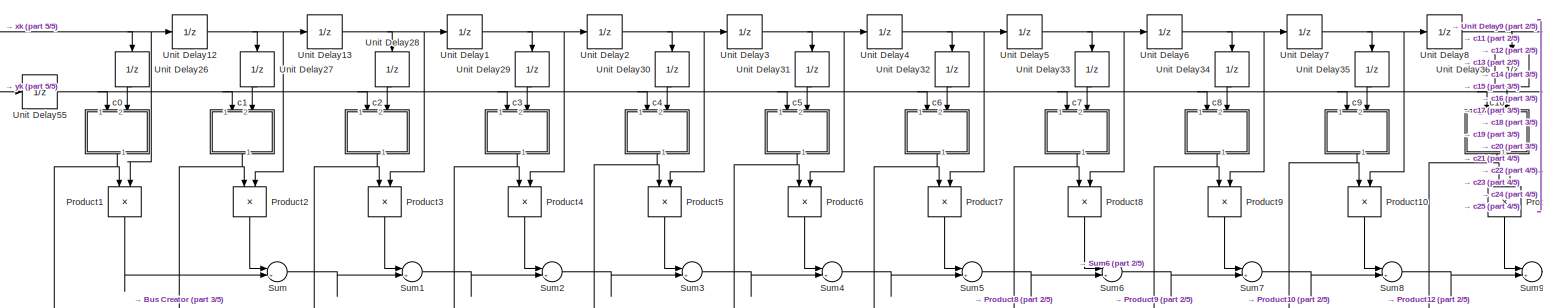
[diagram: SC. Eco (ímpar) - part 1/5, top left region]
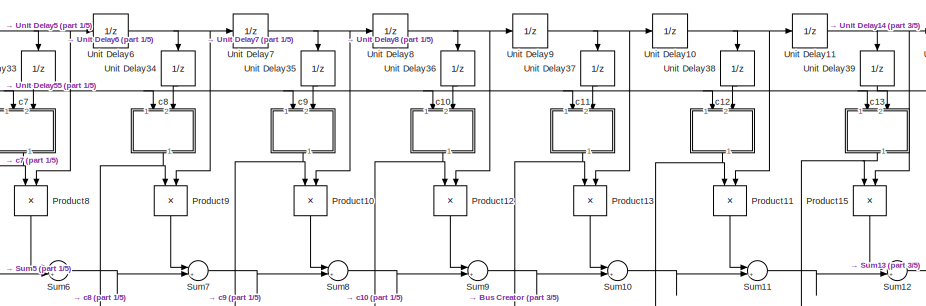
[diagram: SC. Eco (ímpar) - part 2/5, top center region]
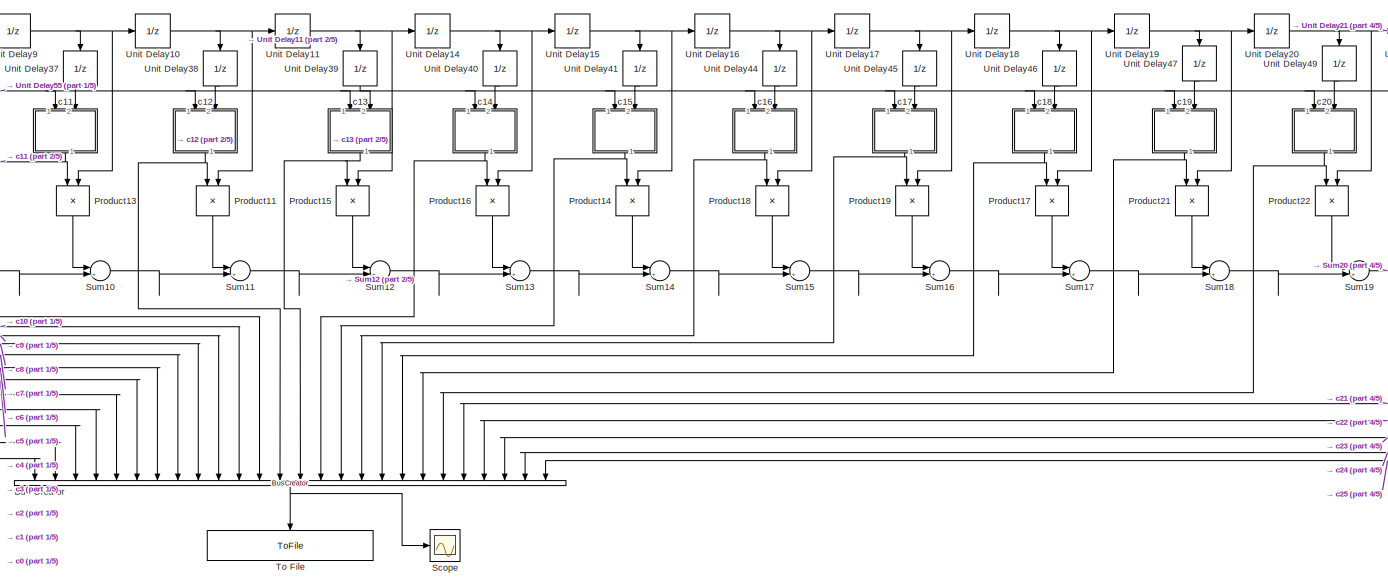
[diagram: SC. Eco (ímpar) - part 3/5, center side, full height]
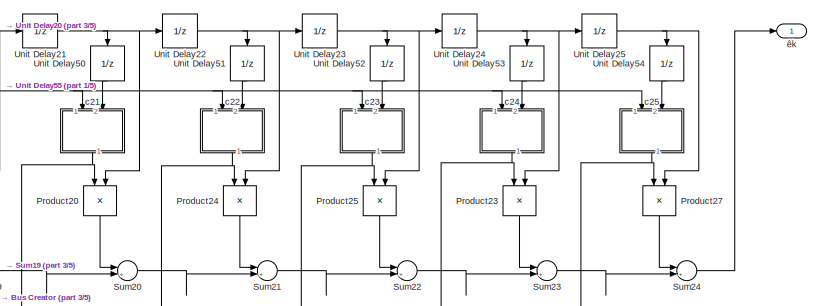
[diagram: SC. Eco (ímpar) - part 4/5, top right region]
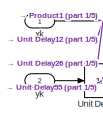
[diagram: SC. Eco (ímpar) - part 5/5, top left region]
BLOCK [SubSystem] SC. Eco (ímpar)
  FunctionWithSeparateData = off
  MaskHideContents = off
  MinAlgLoopOccurrences = off
  Opaque = off
  Ports = [2, 1]
  PropExecContextOutsideSubsystem = off
  RTWSystemCode = Auto
  RequestExecContextInheritance = off
BLOCK [BusCreator] SC. Eco (ímpar)/Bus Creator
  DisplayOption = bar
  Inputs = 26
  Ports = [26, 1]
BLOCK [Product] SC. Eco (ímpar)/Product1
  InputSameDT = off
  OutDataTypeStr = Inherit: Inherit via internal rule
  Ports = [2, 1]
  RndMeth = Floor
  SaturateOnIntegerOverflow = off
BLOCK [Product] SC. Eco (ímpar)/Product10
  InputSameDT = off
  OutDataTypeStr = Inherit: Inherit via internal rule
  Ports = [2, 1]
  RndMeth = Floor
  SaturateOnIntegerOverflow = off
BLOCK [Product] SC. Eco (ímpar)/Product11
  InputSameDT = off
  OutDataTypeStr = Inherit: Inherit via internal rule
  Ports = [2, 1]
  RndMeth = Floor
  SaturateOnIntegerOverflow = off
BLOCK [Product] SC. Eco (ímpar)/Product12
  InputSameDT = off
  OutDataTypeStr = Inherit: Inherit via internal rule
  Ports = [2, 1]
  RndMeth = Floor
  SaturateOnIntegerOverflow = off
BLOCK [Product] SC. Eco (ímpar)/Product13
  InputSameDT = off
  OutDataTypeStr = Inherit: Inherit via internal rule
  Ports = [2, 1]
  RndMeth = Floor
  SaturateOnIntegerOverflow = off
BLOCK [Product] SC. Eco (ímpar)/Product14
  InputSameDT = off
  OutDataTypeStr = Inherit: Inherit via internal rule
  Ports = [2, 1]
  RndMeth = Floor
  SaturateOnIntegerOverflow = off
BLOCK [Product] SC. Eco (ímpar)/Product15
  InputSameDT = off
  OutDataTypeStr = Inherit: Inherit via internal rule
  Ports = [2, 1]
  RndMeth = Floor
  SaturateOnIntegerOverflow = off
BLOCK [Product] SC. Eco (ímpar)/Product16
  InputSameDT = off
  OutDataTypeStr = Inherit: Inherit via internal rule
  Ports = [2, 1]
  RndMeth = Floor
  SaturateOnIntegerOverflow = off
BLOCK [Product] SC. Eco (ímpar)/Product17
  InputSameDT = off
  OutDataTypeStr = Inherit: Inherit via internal rule
  Ports = [2, 1]
  RndMeth = Floor
  SaturateOnIntegerOverflow = off
BLOCK [Product] SC. Eco (ímpar)/Product18
  InputSameDT = off
  OutDataTypeStr = Inherit: Inherit via internal rule
  Ports = [2, 1]
  RndMeth = Floor
  SaturateOnIntegerOverflow = off
BLOCK [Product] SC. Eco (ímpar)/Product19
  InputSameDT = off
  OutDataTypeStr = Inherit: Inherit via internal rule
  Ports = [2, 1]
  RndMeth = Floor
  SaturateOnIntegerOverflow = off
BLOCK [Product] SC. Eco (ímpar)/Product2
  InputSameDT = off
  OutDataTypeStr = Inherit: Inherit via internal rule
  Ports = [2, 1]
  RndMeth = Floor
  SaturateOnIntegerOverflow = off
BLOCK [Product] SC. Eco (ímpar)/Product20
  InputSameDT = off
  OutDataTypeStr = Inherit: Inherit via internal rule
  Ports = [2, 1]
  RndMeth = Floor
  SaturateOnIntegerOverflow = off
BLOCK [Product] SC. Eco (ímpar)/Product21
  InputSameDT = off
  OutDataTypeStr = Inherit: Inherit via internal rule
  Ports = [2, 1]
  RndMeth = Floor
  SaturateOnIntegerOverflow = off
BLOCK [Product] SC. Eco (ímpar)/Product22
  InputSameDT = off
  OutDataTypeStr = Inherit: Inherit via internal rule
  Ports = [2, 1]
  RndMeth = Floor
  SaturateOnIntegerOverflow = off
BLOCK [Product] SC. Eco (ímpar)/Product23
  InputSameDT = off
  OutDataTypeStr = Inherit: Inherit via internal rule
  Ports = [2, 1]
  RndMeth = Floor
  SaturateOnIntegerOverflow = off
BLOCK [Product] SC. Eco (ímpar)/Product24
  InputSameDT = off
  OutDataTypeStr = Inherit: Inherit via internal rule
  Ports = [2, 1]
  RndMeth = Floor
  SaturateOnIntegerOverflow = off
BLOCK [Product] SC. Eco (ímpar)/Product25
  InputSameDT = off
  OutDataTypeStr = Inherit: Inherit via internal rule
  Ports = [2, 1]
  RndMeth = Floor
  SaturateOnIntegerOverflow = off
BLOCK [Product] SC. Eco (ímpar)/Product27
  InputSameDT = off
  OutDataTypeStr = Inherit: Inherit via internal rule
  Ports = [2, 1]
  RndMeth = Floor
  SaturateOnIntegerOverflow = off
BLOCK [Product] SC. Eco (ímpar)/Product3
  InputSameDT = off
  OutDataTypeStr = Inherit: Inherit via internal rule
  Ports = [2, 1]
  RndMeth = Floor
  SaturateOnIntegerOverflow = off
BLOCK [Product] SC. Eco (ímpar)/Product4
  InputSameDT = off
  OutDataTypeStr = Inherit: Inherit via internal rule
  Ports = [2, 1]
  RndMeth = Floor
  SaturateOnIntegerOverflow = off
BLOCK [Product] SC. Eco (ímpar)/Product5
  InputSameDT = off
  OutDataTypeStr = Inherit: Inherit via internal rule
  Ports = [2, 1]
  RndMeth = Floor
  SaturateOnIntegerOverflow = off
BLOCK [Product] SC. Eco (ímpar)/Product6
  InputSameDT = off
  OutDataTypeStr = Inherit: Inherit via internal rule
  Ports = [2, 1]
  RndMeth = Floor
  SaturateOnIntegerOverflow = off
BLOCK [Product] SC. Eco (ímpar)/Product7
  InputSameDT = off
  OutDataTypeStr = Inherit: Inherit via internal rule
  Ports = [2, 1]
  RndMeth = Floor
  SaturateOnIntegerOverflow = off
BLOCK [Product] SC. Eco (ímpar)/Product8
  InputSameDT = off
  OutDataTypeStr = Inherit: Inherit via internal rule
  Ports = [2, 1]
  RndMeth = Floor
  SaturateOnIntegerOverflow = off
BLOCK [Product] SC. Eco (ímpar)/Product9
  InputSameDT = off
  OutDataTypeStr = Inherit: Inherit via internal rule
  Ports = [2, 1]
  RndMeth = Floor
  SaturateOnIntegerOverflow = off
BLOCK [Scope] SC. Eco (ímpar)/Scope
  DataFormat = StructureWithTime
  Floating = off
  NumInputPorts = 1
  Ports = [1]
  SampleTime = 0
  SaveName = ScopeData4
  ShowLegends = off
BLOCK [Sum] SC. Eco (ímpar)/Sum
  IconShape = round
  InputSameDT = off
  Inputs = |++
  OutDataTypeStr = Inherit: Inherit via internal rule
  Ports = [2, 1]
  SaturateOnIntegerOverflow = off
BLOCK [Sum] SC. Eco (ímpar)/Sum1
  IconShape = round
  InputSameDT = off
  Inputs = |++
  OutDataTypeStr = Inherit: Inherit via internal rule
  Ports = [2, 1]
  SaturateOnIntegerOverflow = off
BLOCK [Sum] SC. Eco (ímpar)/Sum10
  IconShape = round
  InputSameDT = off
  Inputs = |++
  OutDataTypeStr = Inherit: Inherit via internal rule
  Ports = [2, 1]
  SaturateOnIntegerOverflow = off
BLOCK [Sum] SC. Eco (ímpar)/Sum11
  IconShape = round
  InputSameDT = off
  Inputs = |++
  OutDataTypeStr = Inherit: Inherit via internal rule
  Ports = [2, 1]
  SaturateOnIntegerOverflow = off
BLOCK [Sum] SC. Eco (ímpar)/Sum12
  IconShape = round
  InputSameDT = off
  Inputs = |++
  OutDataTypeStr = Inherit: Inherit via internal rule
  Ports = [2, 1]
  SaturateOnIntegerOverflow = off
BLOCK [Sum] SC. Eco (ímpar)/Sum13
  IconShape = round
  InputSameDT = off
  Inputs = |++
  OutDataTypeStr = Inherit: Inherit via internal rule
  Ports = [2, 1]
  SaturateOnIntegerOverflow = off
BLOCK [Sum] SC. Eco (ímpar)/Sum14
  IconShape = round
  InputSameDT = off
  Inputs = |++
  OutDataTypeStr = Inherit: Inherit via internal rule
  Ports = [2, 1]
  SaturateOnIntegerOverflow = off
BLOCK [Sum] SC. Eco (ímpar)/Sum15
  IconShape = round
  InputSameDT = off
  Inputs = |++
  OutDataTypeStr = Inherit: Inherit via internal rule
  Ports = [2, 1]
  SaturateOnIntegerOverflow = off
BLOCK [Sum] SC. Eco (ímpar)/Sum16
  IconShape = round
  InputSameDT = off
  Inputs = |++
  OutDataTypeStr = Inherit: Inherit via internal rule
  Ports = [2, 1]
  SaturateOnIntegerOverflow = off
BLOCK [Sum] SC. Eco (ímpar)/Sum17
  IconShape = round
  InputSameDT = off
  Inputs = |++
  OutDataTypeStr = Inherit: Inherit via internal rule
  Ports = [2, 1]
  SaturateOnIntegerOverflow = off
BLOCK [Sum] SC. Eco (ímpar)/Sum18
  IconShape = round
  InputSameDT = off
  Inputs = |++
  OutDataTypeStr = Inherit: Inherit via internal rule
  Ports = [2, 1]
  SaturateOnIntegerOverflow = off
BLOCK [Sum] SC. Eco (ímpar)/Sum19
  IconShape = round
  InputSameDT = off
  Inputs = |++
  OutDataTypeStr = Inherit: Inherit via internal rule
  Ports = [2, 1]
  SaturateOnIntegerOverflow = off
BLOCK [Sum] SC. Eco (ímpar)/Sum2
  IconShape = round
  InputSameDT = off
  Inputs = |++
  OutDataTypeStr = Inherit: Inherit via internal rule
  Ports = [2, 1]
  SaturateOnIntegerOverflow = off
BLOCK [Sum] SC. Eco (ímpar)/Sum20
  IconShape = round
  InputSameDT = off
  Inputs = |++
  OutDataTypeStr = Inherit: Inherit via internal rule
  Ports = [2, 1]
  SaturateOnIntegerOverflow = off
BLOCK [Sum] SC. Eco (ímpar)/Sum21
  IconShape = round
  InputSameDT = off
  Inputs = |++
  OutDataTypeStr = Inherit: Inherit via internal rule
  Ports = [2, 1]
  SaturateOnIntegerOverflow = off
BLOCK [Sum] SC. Eco (ímpar)/Sum22
  IconShape = round
  InputSameDT = off
  Inputs = |++
  OutDataTypeStr = Inherit: Inherit via internal rule
  Ports = [2, 1]
  SaturateOnIntegerOverflow = off
BLOCK [Sum] SC. Eco (ímpar)/Sum23
  IconShape = round
  InputSameDT = off
  Inputs = |++
  OutDataTypeStr = Inherit: Inherit via internal rule
  Ports = [2, 1]
  SaturateOnIntegerOverflow = off
BLOCK [Sum] SC. Eco (ímpar)/Sum24
  IconShape = round
  InputSameDT = off
  Inputs = |++
  OutDataTypeStr = Inherit: Inherit via internal rule
  Ports = [2, 1]
  SaturateOnIntegerOverflow = off
BLOCK [Sum] SC. Eco (ímpar)/Sum3
  IconShape = round
  InputSameDT = off
  Inputs = |++
  OutDataTypeStr = Inherit: Inherit via internal rule
  Ports = [2, 1]
  SaturateOnIntegerOverflow = off
BLOCK [Sum] SC. Eco (ímpar)/Sum4
  IconShape = round
  InputSameDT = off
  Inputs = |++
  OutDataTypeStr = Inherit: Inherit via internal rule
  Ports = [2, 1]
  SaturateOnIntegerOverflow = off
BLOCK [Sum] SC. Eco (ímpar)/Sum5
  IconShape = round
  InputSameDT = off
  Inputs = |++
  OutDataTypeStr = Inherit: Inherit via internal rule
  Ports = [2, 1]
  SaturateOnIntegerOverflow = off
BLOCK [Sum] SC. Eco (ímpar)/Sum6
  IconShape = round
  InputSameDT = off
  Inputs = |++
  OutDataTypeStr = Inherit: Inherit via internal rule
  Ports = [2, 1]
  SaturateOnIntegerOverflow = off
BLOCK [Sum] SC. Eco (ímpar)/Sum7
  IconShape = round
  InputSameDT = off
  Inputs = |++
  OutDataTypeStr = Inherit: Inherit via internal rule
  Ports = [2, 1]
  SaturateOnIntegerOverflow = off
BLOCK [Sum] SC. Eco (ímpar)/Sum8
  IconShape = round
  InputSameDT = off
  Inputs = |++
  OutDataTypeStr = Inherit: Inherit via internal rule
  Ports = [2, 1]
  SaturateOnIntegerOverflow = off
BLOCK [Sum] SC. Eco (ímpar)/Sum9
  IconShape = round
  InputSameDT = off
  Inputs = |++
  OutDataTypeStr = Inherit: Inherit via internal rule
  Ports = [2, 1]
  SaturateOnIntegerOverflow = off
BLOCK [ToFile] SC. Eco (ímpar)/To File
  Filename = Coeficientes SC. Eco (ímpar).mat
  MatrixName = ci
  Ports = [1]
  SaveFormat = Timeseries
BLOCK [UnitDelay] SC. Eco (ímpar)/Unit Delay1
  InputProcessing = Elements as channels (sample based)
  SampleTime = -1
BLOCK [UnitDelay] SC. Eco (ímpar)/Unit Delay10
  InputProcessing = Elements as channels (sample based)
  SampleTime = -1
BLOCK [UnitDelay] SC. Eco (ímpar)/Unit Delay11
  InputProcessing = Elements as channels (sample based)
  SampleTime = -1
BLOCK [UnitDelay] SC. Eco (ímpar)/Unit Delay12
  InputProcessing = Elements as channels (sample based)
  SampleTime = -1
BLOCK [UnitDelay] SC. Eco (ímpar)/Unit Delay13
  InputProcessing = Elements as channels (sample based)
  SampleTime = -1
BLOCK [UnitDelay] SC. Eco (ímpar)/Unit Delay14
  InputProcessing = Elements as channels (sample based)
  SampleTime = -1
BLOCK [UnitDelay] SC. Eco (ímpar)/Unit Delay15
  InputProcessing = Elements as channels (sample based)
  SampleTime = -1
BLOCK [UnitDelay] SC. Eco (ímpar)/Unit Delay16
  InputProcessing = Elements as channels (sample based)
  SampleTime = -1
BLOCK [UnitDelay] SC. Eco (ímpar)/Unit Delay17
  InputProcessing = Elements as channels (sample based)
  SampleTime = -1
BLOCK [UnitDelay] SC. Eco (ímpar)/Unit Delay18
  InputProcessing = Elements as channels (sample based)
  SampleTime = -1
BLOCK [UnitDelay] SC. Eco (ímpar)/Unit Delay19
  InputProcessing = Elements as channels (sample based)
  SampleTime = -1
BLOCK [UnitDelay] SC. Eco (ímpar)/Unit Delay2
  InputProcessing = Elements as channels (sample based)
  SampleTime = -1
BLOCK [UnitDelay] SC. Eco (ímpar)/Unit Delay20
  InputProcessing = Elements as channels (sample based)
  SampleTime = -1
BLOCK [UnitDelay] SC. Eco (ímpar)/Unit Delay21
  InputProcessing = Elements as channels (sample based)
  SampleTime = -1
BLOCK [UnitDelay] SC. Eco (ímpar)/Unit Delay22
  InputProcessing = Elements as channels (sample based)
  SampleTime = -1
BLOCK [UnitDelay] SC. Eco (ímpar)/Unit Delay23
  InputProcessing = Elements as channels (sample based)
  SampleTime = -1
BLOCK [UnitDelay] SC. Eco (ímpar)/Unit Delay24
  InputProcessing = Elements as channels (sample based)
  SampleTime = -1
BLOCK [UnitDelay] SC. Eco (ímpar)/Unit Delay25
  InputProcessing = Elements as channels (sample based)
  SampleTime = -1
BLOCK [UnitDelay] SC. Eco (ímpar)/Unit Delay26
  InputProcessing = Elements as channels (sample based)
  SampleTime = -1
BLOCK [UnitDelay] SC. Eco (ímpar)/Unit Delay27
  InputProcessing = Elements as channels (sample based)
  SampleTime = -1
BLOCK [UnitDelay] SC. Eco (ímpar)/Unit Delay28
  InputProcessing = Elements as channels (sample based)
  SampleTime = -1
BLOCK [UnitDelay] SC. Eco (ímpar)/Unit Delay29
  InputProcessing = Elements as channels (sample based)
  SampleTime = -1
BLOCK [UnitDelay] SC. Eco (ímpar)/Unit Delay3
  InputProcessing = Elements as channels (sample based)
  SampleTime = -1
BLOCK [UnitDelay] SC. Eco (ímpar)/Unit Delay30
  InputProcessing = Elements as channels (sample based)
  SampleTime = -1
BLOCK [UnitDelay] SC. Eco (ímpar)/Unit Delay31
  InputProcessing = Elements as channels (sample based)
  SampleTime = -1
BLOCK [UnitDelay] SC. Eco (ímpar)/Unit Delay32
  InputProcessing = Elements as channels (sample based)
  SampleTime = -1
BLOCK [UnitDelay] SC. Eco (ímpar)/Unit Delay33
  InputProcessing = Elements as channels (sample based)
  SampleTime = -1
BLOCK [UnitDelay] SC. Eco (ímpar)/Unit Delay34
  InputProcessing = Elements as channels (sample based)
  SampleTime = -1
BLOCK [UnitDelay] SC. Eco (ímpar)/Unit Delay35
  InputProcessing = Elements as channels (sample based)
  SampleTime = -1
BLOCK [UnitDelay] SC. Eco (ímpar)/Unit Delay36
  InputProcessing = Elements as channels (sample based)
  SampleTime = -1
BLOCK [UnitDelay] SC. Eco (ímpar)/Unit Delay37
  InputProcessing = Elements as channels (sample based)
  SampleTime = -1
BLOCK [UnitDelay] SC. Eco (ímpar)/Unit Delay38
  InputProcessing = Elements as channels (sample based)
  SampleTime = -1
BLOCK [UnitDelay] SC. Eco (ímpar)/Unit Delay39
  InputProcessing = Elements as channels (sample based)
  SampleTime = -1
BLOCK [UnitDelay] SC. Eco (ímpar)/Unit Delay4
  InputProcessing = Elements as channels (sample based)
  SampleTime = -1
BLOCK [UnitDelay] SC. Eco (ímpar)/Unit Delay40
  InputProcessing = Elements as channels (sample based)
  SampleTime = -1
BLOCK [UnitDelay] SC. Eco (ímpar)/Unit Delay41
  InputProcessing = Elements as channels (sample based)
  SampleTime = -1
BLOCK [UnitDelay] SC. Eco (ímpar)/Unit Delay44
  InputProcessing = Elements as channels (sample based)
  SampleTime = -1
BLOCK [UnitDelay] SC. Eco (ímpar)/Unit Delay45
  InputProcessing = Elements as channels (sample based)
  SampleTime = -1
BLOCK [UnitDelay] SC. Eco (ímpar)/Unit Delay46
  InputProcessing = Elements as channels (sample based)
  SampleTime = -1
BLOCK [UnitDelay] SC. Eco (ímpar)/Unit Delay47
  InputProcessing = Elements as channels (sample based)
  SampleTime = -1
BLOCK [UnitDelay] SC. Eco (ímpar)/Unit Delay49
  InputProcessing = Elements as channels (sample based)
  SampleTime = -1
BLOCK [UnitDelay] SC. Eco (ímpar)/Unit Delay5
  InputProcessing = Elements as channels (sample based)
  SampleTime = -1
BLOCK [UnitDelay] SC. Eco (ímpar)/Unit Delay50
  InputProcessing = Elements as channels (sample based)
  SampleTime = -1
BLOCK [UnitDelay] SC. Eco (ímpar)/Unit Delay51
  InputProcessing = Elements as channels (sample based)
  SampleTime = -1
BLOCK [UnitDelay] SC. Eco (ímpar)/Unit Delay52
  InputProcessing = Elements as channels (sample based)
  SampleTime = -1
BLOCK [UnitDelay] SC. Eco (ímpar)/Unit Delay53
  InputProcessing = Elements as channels (sample based)
  SampleTime = -1
BLOCK [UnitDelay] SC. Eco (ímpar)/Unit Delay54
  InputProcessing = Elements as channels (sample based)
  SampleTime = -1
BLOCK [UnitDelay] SC. Eco (ímpar)/Unit Delay55
  InputProcessing = Elements as channels (sample based)
  SampleTime = -1
BLOCK [UnitDelay] SC. Eco (ímpar)/Unit Delay6
  InputProcessing = Elements as channels (sample based)
  SampleTime = -1
BLOCK [UnitDelay] SC. Eco (ímpar)/Unit Delay7
  InputProcessing = Elements as channels (sample based)
  SampleTime = -1
BLOCK [UnitDelay] SC. Eco (ímpar)/Unit Delay8
  InputProcessing = Elements as channels (sample based)
  SampleTime = -1
BLOCK [UnitDelay] SC. Eco (ímpar)/Unit Delay9
  InputProcessing = Elements as channels (sample based)
  SampleTime = -1
BLOCK [SubSystem] SC. Eco (ímpar)/c0
  FunctionWithSeparateData = off
  MaskHideContents = off
  MinAlgLoopOccurrences = off
  Opaque = off
  Ports = [2, 1]
  PropExecContextOutsideSubsystem = off
  RTWSystemCode = Auto
  RequestExecContextInheritance = off
BLOCK [Constant] SC. Eco (ímpar)/c0/Constant
  Value = mu
BLOCK [Outport] SC. Eco (ímpar)/c0/Out1
  IconDisplay = Port number
BLOCK [Product] SC. Eco (ímpar)/c0/Product
  InputSameDT = off
  OutDataTypeStr = Inherit: Inherit via internal rule
  Ports = [2, 1]
  RndMeth = Floor
  SaturateOnIntegerOverflow = off
BLOCK [Product] SC. Eco (ímpar)/c0/Product1
  InputSameDT = off
  OutDataTypeStr = Inherit: Inherit via internal rule
  Ports = [2, 1]
  RndMeth = Floor
  SaturateOnIntegerOverflow = off
BLOCK [Sum] SC. Eco (ímpar)/c0/Sum14
  IconShape = round
  InputSameDT = off
  Inputs = |++
  OutDataTypeStr = Inherit: Inherit via internal rule
  Ports = [2, 1]
  SaturateOnIntegerOverflow = off
BLOCK [UnitDelay] SC. Eco (ímpar)/c0/Unit Delay 
  InputProcessing = Elements as channels (sample based)
  SampleTime = -1
BLOCK [Gain] SC. Eco (ímpar)/c0/h2
  Gain = 2
  OutDataTypeStr = Inherit: Inherit via internal rule
  ParamDataTypeStr = Inherit: Inherit via internal rule
  SaturateOnIntegerOverflow = off
BLOCK [Inport] SC. Eco (ímpar)/c0/x
  IconDisplay = Port number
  Port = 2
BLOCK [Inport] SC. Eco (ímpar)/c0/y
  IconDisplay = Port number
BLOCK [SubSystem] SC. Eco (ímpar)/c1
  FunctionWithSeparateData = off
  MaskHideContents = off
  MinAlgLoopOccurrences = off
  Opaque = off
  Ports = [2, 1]
  PropExecContextOutsideSubsystem = off
  RTWSystemCode = Auto
  RequestExecContextInheritance = off
BLOCK [Constant] SC. Eco (ímpar)/c1/Constant
  Value = mu
BLOCK [Outport] SC. Eco (ímpar)/c1/Out1
  IconDisplay = Port number
BLOCK [Product] SC. Eco (ímpar)/c1/Product
  InputSameDT = off
  OutDataTypeStr = Inherit: Inherit via internal rule
  Ports = [2, 1]
  RndMeth = Floor
  SaturateOnIntegerOverflow = off
BLOCK [Product] SC. Eco (ímpar)/c1/Product1
  InputSameDT = off
  OutDataTypeStr = Inherit: Inherit via internal rule
  Ports = [2, 1]
  RndMeth = Floor
  SaturateOnIntegerOverflow = off
BLOCK [Sum] SC. Eco (ímpar)/c1/Sum14
  IconShape = round
  InputSameDT = off
  Inputs = |++
  OutDataTypeStr = Inherit: Inherit via internal rule
  Ports = [2, 1]
  SaturateOnIntegerOverflow = off
BLOCK [UnitDelay] SC. Eco (ímpar)/c1/Unit Delay 
  InputProcessing = Elements as channels (sample based)
  SampleTime = -1
BLOCK [Gain] SC. Eco (ímpar)/c1/h2
  Gain = 2
  OutDataTypeStr = Inherit: Inherit via internal rule
  ParamDataTypeStr = Inherit: Inherit via internal rule
  SaturateOnIntegerOverflow = off
BLOCK [Inport] SC. Eco (ímpar)/c1/x
  IconDisplay = Port number
  Port = 2
BLOCK [Inport] SC. Eco (ímpar)/c1/y
  IconDisplay = Port number
BLOCK [SubSystem] SC. Eco (ímpar)/c10
  FunctionWithSeparateData = off
  MaskHideContents = off
  MinAlgLoopOccurrences = off
  Opaque = off
  Ports = [2, 1]
  PropExecContextOutsideSubsystem = off
  RTWSystemCode = Auto
  RequestExecContextInheritance = off
BLOCK [Constant] SC. Eco (ímpar)/c10/Constant
  Value = mu
BLOCK [Outport] SC. Eco (ímpar)/c10/Out1
  IconDisplay = Port number
BLOCK [Product] SC. Eco (ímpar)/c10/Product
  InputSameDT = off
  OutDataTypeStr = Inherit: Inherit via internal rule
  Ports = [2, 1]
  RndMeth = Floor
  SaturateOnIntegerOverflow = off
BLOCK [Product] SC. Eco (ímpar)/c10/Product1
  InputSameDT = off
  OutDataTypeStr = Inherit: Inherit via internal rule
  Ports = [2, 1]
  RndMeth = Floor
  SaturateOnIntegerOverflow = off
BLOCK [Sum] SC. Eco (ímpar)/c10/Sum14
  IconShape = round
  InputSameDT = off
  Inputs = |++
  OutDataTypeStr = Inherit: Inherit via internal rule
  Ports = [2, 1]
  SaturateOnIntegerOverflow = off
BLOCK [UnitDelay] SC. Eco (ímpar)/c10/Unit Delay 
  InputProcessing = Elements as channels (sample based)
  SampleTime = -1
BLOCK [Gain] SC. Eco (ímpar)/c10/h2
  Gain = 2
  OutDataTypeStr = Inherit: Inherit via internal rule
  ParamDataTypeStr = Inherit: Inherit via internal rule
  SaturateOnIntegerOverflow = off
BLOCK [Inport] SC. Eco (ímpar)/c10/x
  IconDisplay = Port number
  Port = 2
BLOCK [Inport] SC. Eco (ímpar)/c10/y
  IconDisplay = Port number
BLOCK [SubSystem] SC. Eco (ímpar)/c11
  FunctionWithSeparateData = off
  MaskHideContents = off
  MinAlgLoopOccurrences = off
  Opaque = off
  Ports = [2, 1]
  PropExecContextOutsideSubsystem = off
  RTWSystemCode = Auto
  RequestExecContextInheritance = off
BLOCK [Constant] SC. Eco (ímpar)/c11/Constant
  Value = mu
BLOCK [Outport] SC. Eco (ímpar)/c11/Out1
  IconDisplay = Port number
BLOCK [Product] SC. Eco (ímpar)/c11/Product
  InputSameDT = off
  OutDataTypeStr = Inherit: Inherit via internal rule
  Ports = [2, 1]
  RndMeth = Floor
  SaturateOnIntegerOverflow = off
BLOCK [Product] SC. Eco (ímpar)/c11/Product1
  InputSameDT = off
  OutDataTypeStr = Inherit: Inherit via internal rule
  Ports = [2, 1]
  RndMeth = Floor
  SaturateOnIntegerOverflow = off
BLOCK [Sum] SC. Eco (ímpar)/c11/Sum14
  IconShape = round
  InputSameDT = off
  Inputs = |++
  OutDataTypeStr = Inherit: Inherit via internal rule
  Ports = [2, 1]
  SaturateOnIntegerOverflow = off
BLOCK [UnitDelay] SC. Eco (ímpar)/c11/Unit Delay 
  InputProcessing = Elements as channels (sample based)
  SampleTime = -1
BLOCK [Gain] SC. Eco (ímpar)/c11/h2
  Gain = 2
  OutDataTypeStr = Inherit: Inherit via internal rule
  ParamDataTypeStr = Inherit: Inherit via internal rule
  SaturateOnIntegerOverflow = off
BLOCK [Inport] SC. Eco (ímpar)/c11/x
  IconDisplay = Port number
  Port = 2
BLOCK [Inport] SC. Eco (ímpar)/c11/y
  IconDisplay = Port number
BLOCK [SubSystem] SC. Eco (ímpar)/c12
  FunctionWithSeparateData = off
  MaskHideContents = off
  MinAlgLoopOccurrences = off
  Opaque = off
  Ports = [2, 1]
  PropExecContextOutsideSubsystem = off
  RTWSystemCode = Auto
  RequestExecContextInheritance = off
BLOCK [Constant] SC. Eco (ímpar)/c12/Constant
  Value = mu
BLOCK [Outport] SC. Eco (ímpar)/c12/Out1
  IconDisplay = Port number
BLOCK [Product] SC. Eco (ímpar)/c12/Product
  InputSameDT = off
  OutDataTypeStr = Inherit: Inherit via internal rule
  Ports = [2, 1]
  RndMeth = Floor
  SaturateOnIntegerOverflow = off
BLOCK [Product] SC. Eco (ímpar)/c12/Product1
  InputSameDT = off
  OutDataTypeStr = Inherit: Inherit via internal rule
  Ports = [2, 1]
  RndMeth = Floor
  SaturateOnIntegerOverflow = off
BLOCK [Sum] SC. Eco (ímpar)/c12/Sum14
  IconShape = round
  InputSameDT = off
  Inputs = |++
  OutDataTypeStr = Inherit: Inherit via internal rule
  Ports = [2, 1]
  SaturateOnIntegerOverflow = off
BLOCK [UnitDelay] SC. Eco (ímpar)/c12/Unit Delay 
  InputProcessing = Elements as channels (sample based)
  SampleTime = -1
BLOCK [Gain] SC. Eco (ímpar)/c12/h2
  Gain = 2
  OutDataTypeStr = Inherit: Inherit via internal rule
  ParamDataTypeStr = Inherit: Inherit via internal rule
  SaturateOnIntegerOverflow = off
BLOCK [Inport] SC. Eco (ímpar)/c12/x
  IconDisplay = Port number
  Port = 2
BLOCK [Inport] SC. Eco (ímpar)/c12/y
  IconDisplay = Port number
BLOCK [SubSystem] SC. Eco (ímpar)/c13
  FunctionWithSeparateData = off
  MaskHideContents = off
  MinAlgLoopOccurrences = off
  Opaque = off
  Ports = [2, 1]
  PropExecContextOutsideSubsystem = off
  RTWSystemCode = Auto
  RequestExecContextInheritance = off
BLOCK [Constant] SC. Eco (ímpar)/c13/Constant
  Value = mu
BLOCK [Outport] SC. Eco (ímpar)/c13/Out1
  IconDisplay = Port number
BLOCK [Product] SC. Eco (ímpar)/c13/Product
  InputSameDT = off
  OutDataTypeStr = Inherit: Inherit via internal rule
  Ports = [2, 1]
  RndMeth = Floor
  SaturateOnIntegerOverflow = off
BLOCK [Product] SC. Eco (ímpar)/c13/Product1
  InputSameDT = off
  OutDataTypeStr = Inherit: Inherit via internal rule
  Ports = [2, 1]
  RndMeth = Floor
  SaturateOnIntegerOverflow = off
BLOCK [Sum] SC. Eco (ímpar)/c13/Sum14
  IconShape = round
  InputSameDT = off
  Inputs = |++
  OutDataTypeStr = Inherit: Inherit via internal rule
  Ports = [2, 1]
  SaturateOnIntegerOverflow = off
BLOCK [UnitDelay] SC. Eco (ímpar)/c13/Unit Delay 
  InputProcessing = Elements as channels (sample based)
  SampleTime = -1
BLOCK [Gain] SC. Eco (ímpar)/c13/h2
  Gain = 2
  OutDataTypeStr = Inherit: Inherit via internal rule
  ParamDataTypeStr = Inherit: Inherit via internal rule
  SaturateOnIntegerOverflow = off
BLOCK [Inport] SC. Eco (ímpar)/c13/x
  IconDisplay = Port number
  Port = 2
BLOCK [Inport] SC. Eco (ímpar)/c13/y
  IconDisplay = Port number
BLOCK [SubSystem] SC. Eco (ímpar)/c14
  FunctionWithSeparateData = off
  MaskHideContents = off
  MinAlgLoopOccurrences = off
  Opaque = off
  Ports = [2, 1]
  PropExecContextOutsideSubsystem = off
  RTWSystemCode = Auto
  RequestExecContextInheritance = off
BLOCK [Constant] SC. Eco (ímpar)/c14/Constant
  Value = mu
BLOCK [Outport] SC. Eco (ímpar)/c14/Out1
  IconDisplay = Port number
BLOCK [Product] SC. Eco (ímpar)/c14/Product
  InputSameDT = off
  OutDataTypeStr = Inherit: Inherit via internal rule
  Ports = [2, 1]
  RndMeth = Floor
  SaturateOnIntegerOverflow = off
BLOCK [Product] SC. Eco (ímpar)/c14/Product1
  InputSameDT = off
  OutDataTypeStr = Inherit: Inherit via internal rule
  Ports = [2, 1]
  RndMeth = Floor
  SaturateOnIntegerOverflow = off
BLOCK [Sum] SC. Eco (ímpar)/c14/Sum14
  IconShape = round
  InputSameDT = off
  Inputs = |++
  OutDataTypeStr = Inherit: Inherit via internal rule
  Ports = [2, 1]
  SaturateOnIntegerOverflow = off
BLOCK [UnitDelay] SC. Eco (ímpar)/c14/Unit Delay 
  InputProcessing = Elements as channels (sample based)
  SampleTime = -1
BLOCK [Gain] SC. Eco (ímpar)/c14/h2
  Gain = 2
  OutDataTypeStr = Inherit: Inherit via internal rule
  ParamDataTypeStr = Inherit: Inherit via internal rule
  SaturateOnIntegerOverflow = off
BLOCK [Inport] SC. Eco (ímpar)/c14/x
  IconDisplay = Port number
  Port = 2
BLOCK [Inport] SC. Eco (ímpar)/c14/y
  IconDisplay = Port number
BLOCK [SubSystem] SC. Eco (ímpar)/c15
  FunctionWithSeparateData = off
  MaskHideContents = off
  MinAlgLoopOccurrences = off
  Opaque = off
  Ports = [2, 1]
  PropExecContextOutsideSubsystem = off
  RTWSystemCode = Auto
  RequestExecContextInheritance = off
BLOCK [Constant] SC. Eco (ímpar)/c15/Constant
  Value = mu
BLOCK [Outport] SC. Eco (ímpar)/c15/Out1
  IconDisplay = Port number
BLOCK [Product] SC. Eco (ímpar)/c15/Product
  InputSameDT = off
  OutDataTypeStr = Inherit: Inherit via internal rule
  Ports = [2, 1]
  RndMeth = Floor
  SaturateOnIntegerOverflow = off
BLOCK [Product] SC. Eco (ímpar)/c15/Product1
  InputSameDT = off
  OutDataTypeStr = Inherit: Inherit via internal rule
  Ports = [2, 1]
  RndMeth = Floor
  SaturateOnIntegerOverflow = off
BLOCK [Sum] SC. Eco (ímpar)/c15/Sum14
  IconShape = round
  InputSameDT = off
  Inputs = |++
  OutDataTypeStr = Inherit: Inherit via internal rule
  Ports = [2, 1]
  SaturateOnIntegerOverflow = off
BLOCK [UnitDelay] SC. Eco (ímpar)/c15/Unit Delay 
  InputProcessing = Elements as channels (sample based)
  SampleTime = -1
BLOCK [Gain] SC. Eco (ímpar)/c15/h2
  Gain = 2
  OutDataTypeStr = Inherit: Inherit via internal rule
  ParamDataTypeStr = Inherit: Inherit via internal rule
  SaturateOnIntegerOverflow = off
BLOCK [Inport] SC. Eco (ímpar)/c15/x
  IconDisplay = Port number
  Port = 2
BLOCK [Inport] SC. Eco (ímpar)/c15/y
  IconDisplay = Port number
BLOCK [SubSystem] SC. Eco (ímpar)/c16
  FunctionWithSeparateData = off
  MaskHideContents = off
  MinAlgLoopOccurrences = off
  Opaque = off
  Ports = [2, 1]
  PropExecContextOutsideSubsystem = off
  RTWSystemCode = Auto
  RequestExecContextInheritance = off
BLOCK [Constant] SC. Eco (ímpar)/c16/Constant
  Value = mu
BLOCK [Outport] SC. Eco (ímpar)/c16/Out1
  IconDisplay = Port number
BLOCK [Product] SC. Eco (ímpar)/c16/Product
  InputSameDT = off
  OutDataTypeStr = Inherit: Inherit via internal rule
  Ports = [2, 1]
  RndMeth = Floor
  SaturateOnIntegerOverflow = off
BLOCK [Product] SC. Eco (ímpar)/c16/Product1
  InputSameDT = off
  OutDataTypeStr = Inherit: Inherit via internal rule
  Ports = [2, 1]
  RndMeth = Floor
  SaturateOnIntegerOverflow = off
BLOCK [Sum] SC. Eco (ímpar)/c16/Sum14
  IconShape = round
  InputSameDT = off
  Inputs = |++
  OutDataTypeStr = Inherit: Inherit via internal rule
  Ports = [2, 1]
  SaturateOnIntegerOverflow = off
BLOCK [UnitDelay] SC. Eco (ímpar)/c16/Unit Delay 
  InputProcessing = Elements as channels (sample based)
  SampleTime = -1
BLOCK [Gain] SC. Eco (ímpar)/c16/h2
  Gain = 2
  OutDataTypeStr = Inherit: Inherit via internal rule
  ParamDataTypeStr = Inherit: Inherit via internal rule
  SaturateOnIntegerOverflow = off
BLOCK [Inport] SC. Eco (ímpar)/c16/x
  IconDisplay = Port number
  Port = 2
BLOCK [Inport] SC. Eco (ímpar)/c16/y
  IconDisplay = Port number
BLOCK [SubSystem] SC. Eco (ímpar)/c17
  FunctionWithSeparateData = off
  MaskHideContents = off
  MinAlgLoopOccurrences = off
  Opaque = off
  Ports = [2, 1]
  PropExecContextOutsideSubsystem = off
  RTWSystemCode = Auto
  RequestExecContextInheritance = off
BLOCK [Constant] SC. Eco (ímpar)/c17/Constant
  Value = mu
BLOCK [Outport] SC. Eco (ímpar)/c17/Out1
  IconDisplay = Port number
BLOCK [Product] SC. Eco (ímpar)/c17/Product
  InputSameDT = off
  OutDataTypeStr = Inherit: Inherit via internal rule
  Ports = [2, 1]
  RndMeth = Floor
  SaturateOnIntegerOverflow = off
BLOCK [Product] SC. Eco (ímpar)/c17/Product1
  InputSameDT = off
  OutDataTypeStr = Inherit: Inherit via internal rule
  Ports = [2, 1]
  RndMeth = Floor
  SaturateOnIntegerOverflow = off
BLOCK [Sum] SC. Eco (ímpar)/c17/Sum14
  IconShape = round
  InputSameDT = off
  Inputs = |++
  OutDataTypeStr = Inherit: Inherit via internal rule
  Ports = [2, 1]
  SaturateOnIntegerOverflow = off
BLOCK [UnitDelay] SC. Eco (ímpar)/c17/Unit Delay 
  InputProcessing = Elements as channels (sample based)
  SampleTime = -1
BLOCK [Gain] SC. Eco (ímpar)/c17/h2
  Gain = 2
  OutDataTypeStr = Inherit: Inherit via internal rule
  ParamDataTypeStr = Inherit: Inherit via internal rule
  SaturateOnIntegerOverflow = off
BLOCK [Inport] SC. Eco (ímpar)/c17/x
  IconDisplay = Port number
  Port = 2
BLOCK [Inport] SC. Eco (ímpar)/c17/y
  IconDisplay = Port number
BLOCK [SubSystem] SC. Eco (ímpar)/c18
  FunctionWithSeparateData = off
  MaskHideContents = off
  MinAlgLoopOccurrences = off
  Opaque = off
  Ports = [2, 1]
  PropExecContextOutsideSubsystem = off
  RTWSystemCode = Auto
  RequestExecContextInheritance = off
BLOCK [Constant] SC. Eco (ímpar)/c18/Constant
  Value = mu
BLOCK [Outport] SC. Eco (ímpar)/c18/Out1
  IconDisplay = Port number
BLOCK [Product] SC. Eco (ímpar)/c18/Product
  InputSameDT = off
  OutDataTypeStr = Inherit: Inherit via internal rule
  Ports = [2, 1]
  RndMeth = Floor
  SaturateOnIntegerOverflow = off
BLOCK [Product] SC. Eco (ímpar)/c18/Product1
  InputSameDT = off
  OutDataTypeStr = Inherit: Inherit via internal rule
  Ports = [2, 1]
  RndMeth = Floor
  SaturateOnIntegerOverflow = off
BLOCK [Sum] SC. Eco (ímpar)/c18/Sum14
  IconShape = round
  InputSameDT = off
  Inputs = |++
  OutDataTypeStr = Inherit: Inherit via internal rule
  Ports = [2, 1]
  SaturateOnIntegerOverflow = off
BLOCK [UnitDelay] SC. Eco (ímpar)/c18/Unit Delay 
  InputProcessing = Elements as channels (sample based)
  SampleTime = -1
BLOCK [Gain] SC. Eco (ímpar)/c18/h2
  Gain = 2
  OutDataTypeStr = Inherit: Inherit via internal rule
  ParamDataTypeStr = Inherit: Inherit via internal rule
  SaturateOnIntegerOverflow = off
BLOCK [Inport] SC. Eco (ímpar)/c18/x
  IconDisplay = Port number
  Port = 2
BLOCK [Inport] SC. Eco (ímpar)/c18/y
  IconDisplay = Port number
BLOCK [SubSystem] SC. Eco (ímpar)/c19
  FunctionWithSeparateData = off
  MaskHideContents = off
  MinAlgLoopOccurrences = off
  Opaque = off
  Ports = [2, 1]
  PropExecContextOutsideSubsystem = off
  RTWSystemCode = Auto
  RequestExecContextInheritance = off
BLOCK [Constant] SC. Eco (ímpar)/c19/Constant
  Value = mu
BLOCK [Outport] SC. Eco (ímpar)/c19/Out1
  IconDisplay = Port number
BLOCK [Product] SC. Eco (ímpar)/c19/Product
  InputSameDT = off
  OutDataTypeStr = Inherit: Inherit via internal rule
  Ports = [2, 1]
  RndMeth = Floor
  SaturateOnIntegerOverflow = off
BLOCK [Product] SC. Eco (ímpar)/c19/Product1
  InputSameDT = off
  OutDataTypeStr = Inherit: Inherit via internal rule
  Ports = [2, 1]
  RndMeth = Floor
  SaturateOnIntegerOverflow = off
BLOCK [Sum] SC. Eco (ímpar)/c19/Sum14
  IconShape = round
  InputSameDT = off
  Inputs = |++
  OutDataTypeStr = Inherit: Inherit via internal rule
  Ports = [2, 1]
  SaturateOnIntegerOverflow = off
BLOCK [UnitDelay] SC. Eco (ímpar)/c19/Unit Delay 
  InputProcessing = Elements as channels (sample based)
  SampleTime = -1
BLOCK [Gain] SC. Eco (ímpar)/c19/h2
  Gain = 2
  OutDataTypeStr = Inherit: Inherit via internal rule
  ParamDataTypeStr = Inherit: Inherit via internal rule
  SaturateOnIntegerOverflow = off
BLOCK [Inport] SC. Eco (ímpar)/c19/x
  IconDisplay = Port number
  Port = 2
BLOCK [Inport] SC. Eco (ímpar)/c19/y
  IconDisplay = Port number
BLOCK [SubSystem] SC. Eco (ímpar)/c2
  FunctionWithSeparateData = off
  MaskHideContents = off
  MinAlgLoopOccurrences = off
  Opaque = off
  Ports = [2, 1]
  PropExecContextOutsideSubsystem = off
  RTWSystemCode = Auto
  RequestExecContextInheritance = off
BLOCK [Constant] SC. Eco (ímpar)/c2/Constant
  Value = mu
BLOCK [Outport] SC. Eco (ímpar)/c2/Out1
  IconDisplay = Port number
BLOCK [Product] SC. Eco (ímpar)/c2/Product
  InputSameDT = off
  OutDataTypeStr = Inherit: Inherit via internal rule
  Ports = [2, 1]
  RndMeth = Floor
  SaturateOnIntegerOverflow = off
BLOCK [Product] SC. Eco (ímpar)/c2/Product1
  InputSameDT = off
  OutDataTypeStr = Inherit: Inherit via internal rule
  Ports = [2, 1]
  RndMeth = Floor
  SaturateOnIntegerOverflow = off
BLOCK [Sum] SC. Eco (ímpar)/c2/Sum14
  IconShape = round
  InputSameDT = off
  Inputs = |++
  OutDataTypeStr = Inherit: Inherit via internal rule
  Ports = [2, 1]
  SaturateOnIntegerOverflow = off
BLOCK [UnitDelay] SC. Eco (ímpar)/c2/Unit Delay 
  InputProcessing = Elements as channels (sample based)
  SampleTime = -1
BLOCK [Gain] SC. Eco (ímpar)/c2/h2
  Gain = 2
  OutDataTypeStr = Inherit: Inherit via internal rule
  ParamDataTypeStr = Inherit: Inherit via internal rule
  SaturateOnIntegerOverflow = off
BLOCK [Inport] SC. Eco (ímpar)/c2/x
  IconDisplay = Port number
  Port = 2
BLOCK [Inport] SC. Eco (ímpar)/c2/y
  IconDisplay = Port number
BLOCK [SubSystem] SC. Eco (ímpar)/c20
  FunctionWithSeparateData = off
  MaskHideContents = off
  MinAlgLoopOccurrences = off
  Opaque = off
  Ports = [2, 1]
  PropExecContextOutsideSubsystem = off
  RTWSystemCode = Auto
  RequestExecContextInheritance = off
BLOCK [Constant] SC. Eco (ímpar)/c20/Constant
  Value = mu
BLOCK [Outport] SC. Eco (ímpar)/c20/Out1
  IconDisplay = Port number
BLOCK [Product] SC. Eco (ímpar)/c20/Product
  InputSameDT = off
  OutDataTypeStr = Inherit: Inherit via internal rule
  Ports = [2, 1]
  RndMeth = Floor
  SaturateOnIntegerOverflow = off
BLOCK [Product] SC. Eco (ímpar)/c20/Product1
  InputSameDT = off
  OutDataTypeStr = Inherit: Inherit via internal rule
  Ports = [2, 1]
  RndMeth = Floor
  SaturateOnIntegerOverflow = off
BLOCK [Sum] SC. Eco (ímpar)/c20/Sum14
  IconShape = round
  InputSameDT = off
  Inputs = |++
  OutDataTypeStr = Inherit: Inherit via internal rule
  Ports = [2, 1]
  SaturateOnIntegerOverflow = off
BLOCK [UnitDelay] SC. Eco (ímpar)/c20/Unit Delay 
  InputProcessing = Elements as channels (sample based)
  SampleTime = -1
BLOCK [Gain] SC. Eco (ímpar)/c20/h2
  Gain = 2
  OutDataTypeStr = Inherit: Inherit via internal rule
  ParamDataTypeStr = Inherit: Inherit via internal rule
  SaturateOnIntegerOverflow = off
BLOCK [Inport] SC. Eco (ímpar)/c20/x
  IconDisplay = Port number
  Port = 2
BLOCK [Inport] SC. Eco (ímpar)/c20/y
  IconDisplay = Port number
BLOCK [SubSystem] SC. Eco (ímpar)/c21
  FunctionWithSeparateData = off
  MaskHideContents = off
  MinAlgLoopOccurrences = off
  Opaque = off
  Ports = [2, 1]
  PropExecContextOutsideSubsystem = off
  RTWSystemCode = Auto
  RequestExecContextInheritance = off
BLOCK [Constant] SC. Eco (ímpar)/c21/Constant
  Value = mu
BLOCK [Outport] SC. Eco (ímpar)/c21/Out1
  IconDisplay = Port number
BLOCK [Product] SC. Eco (ímpar)/c21/Product
  InputSameDT = off
  OutDataTypeStr = Inherit: Inherit via internal rule
  Ports = [2, 1]
  RndMeth = Floor
  SaturateOnIntegerOverflow = off
BLOCK [Product] SC. Eco (ímpar)/c21/Product1
  InputSameDT = off
  OutDataTypeStr = Inherit: Inherit via internal rule
  Ports = [2, 1]
  RndMeth = Floor
  SaturateOnIntegerOverflow = off
BLOCK [Sum] SC. Eco (ímpar)/c21/Sum14
  IconShape = round
  InputSameDT = off
  Inputs = |++
  OutDataTypeStr = Inherit: Inherit via internal rule
  Ports = [2, 1]
  SaturateOnIntegerOverflow = off
BLOCK [UnitDelay] SC. Eco (ímpar)/c21/Unit Delay 
  InputProcessing = Elements as channels (sample based)
  SampleTime = -1
BLOCK [Gain] SC. Eco (ímpar)/c21/h2
  Gain = 2
  OutDataTypeStr = Inherit: Inherit via internal rule
  ParamDataTypeStr = Inherit: Inherit via internal rule
  SaturateOnIntegerOverflow = off
BLOCK [Inport] SC. Eco (ímpar)/c21/x
  IconDisplay = Port number
  Port = 2
BLOCK [Inport] SC. Eco (ímpar)/c21/y
  IconDisplay = Port number
BLOCK [SubSystem] SC. Eco (ímpar)/c22
  FunctionWithSeparateData = off
  MaskHideContents = off
  MinAlgLoopOccurrences = off
  Opaque = off
  Ports = [2, 1]
  PropExecContextOutsideSubsystem = off
  RTWSystemCode = Auto
  RequestExecContextInheritance = off
BLOCK [Constant] SC. Eco (ímpar)/c22/Constant
  Value = mu
BLOCK [Outport] SC. Eco (ímpar)/c22/Out1
  IconDisplay = Port number
BLOCK [Product] SC. Eco (ímpar)/c22/Product
  InputSameDT = off
  OutDataTypeStr = Inherit: Inherit via internal rule
  Ports = [2, 1]
  RndMeth = Floor
  SaturateOnIntegerOverflow = off
BLOCK [Product] SC. Eco (ímpar)/c22/Product1
  InputSameDT = off
  OutDataTypeStr = Inherit: Inherit via internal rule
  Ports = [2, 1]
  RndMeth = Floor
  SaturateOnIntegerOverflow = off
BLOCK [Sum] SC. Eco (ímpar)/c22/Sum14
  IconShape = round
  InputSameDT = off
  Inputs = |++
  OutDataTypeStr = Inherit: Inherit via internal rule
  Ports = [2, 1]
  SaturateOnIntegerOverflow = off
BLOCK [UnitDelay] SC. Eco (ímpar)/c22/Unit Delay 
  InputProcessing = Elements as channels (sample based)
  SampleTime = -1
BLOCK [Gain] SC. Eco (ímpar)/c22/h2
  Gain = 2
  OutDataTypeStr = Inherit: Inherit via internal rule
  ParamDataTypeStr = Inherit: Inherit via internal rule
  SaturateOnIntegerOverflow = off
BLOCK [Inport] SC. Eco (ímpar)/c22/x
  IconDisplay = Port number
  Port = 2
BLOCK [Inport] SC. Eco (ímpar)/c22/y
  IconDisplay = Port number
BLOCK [SubSystem] SC. Eco (ímpar)/c23
  FunctionWithSeparateData = off
  MaskHideContents = off
  MinAlgLoopOccurrences = off
  Opaque = off
  Ports = [2, 1]
  PropExecContextOutsideSubsystem = off
  RTWSystemCode = Auto
  RequestExecContextInheritance = off
BLOCK [Constant] SC. Eco (ímpar)/c23/Constant
  Value = mu
BLOCK [Outport] SC. Eco (ímpar)/c23/Out1
  IconDisplay = Port number
BLOCK [Product] SC. Eco (ímpar)/c23/Product
  InputSameDT = off
  OutDataTypeStr = Inherit: Inherit via internal rule
  Ports = [2, 1]
  RndMeth = Floor
  SaturateOnIntegerOverflow = off
BLOCK [Product] SC. Eco (ímpar)/c23/Product1
  InputSameDT = off
  OutDataTypeStr = Inherit: Inherit via internal rule
  Ports = [2, 1]
  RndMeth = Floor
  SaturateOnIntegerOverflow = off
BLOCK [Sum] SC. Eco (ímpar)/c23/Sum14
  IconShape = round
  InputSameDT = off
  Inputs = |++
  OutDataTypeStr = Inherit: Inherit via internal rule
  Ports = [2, 1]
  SaturateOnIntegerOverflow = off
BLOCK [UnitDelay] SC. Eco (ímpar)/c23/Unit Delay 
  InputProcessing = Elements as channels (sample based)
  SampleTime = -1
BLOCK [Gain] SC. Eco (ímpar)/c23/h2
  Gain = 2
  OutDataTypeStr = Inherit: Inherit via internal rule
  ParamDataTypeStr = Inherit: Inherit via internal rule
  SaturateOnIntegerOverflow = off
BLOCK [Inport] SC. Eco (ímpar)/c23/x
  IconDisplay = Port number
  Port = 2
BLOCK [Inport] SC. Eco (ímpar)/c23/y
  IconDisplay = Port number
BLOCK [SubSystem] SC. Eco (ímpar)/c24
  FunctionWithSeparateData = off
  MaskHideContents = off
  MinAlgLoopOccurrences = off
  Opaque = off
  Ports = [2, 1]
  PropExecContextOutsideSubsystem = off
  RTWSystemCode = Auto
  RequestExecContextInheritance = off
BLOCK [Constant] SC. Eco (ímpar)/c24/Constant
  Value = mu
BLOCK [Outport] SC. Eco (ímpar)/c24/Out1
  IconDisplay = Port number
BLOCK [Product] SC. Eco (ímpar)/c24/Product
  InputSameDT = off
  OutDataTypeStr = Inherit: Inherit via internal rule
  Ports = [2, 1]
  RndMeth = Floor
  SaturateOnIntegerOverflow = off
BLOCK [Product] SC. Eco (ímpar)/c24/Product1
  InputSameDT = off
  OutDataTypeStr = Inherit: Inherit via internal rule
  Ports = [2, 1]
  RndMeth = Floor
  SaturateOnIntegerOverflow = off
BLOCK [Sum] SC. Eco (ímpar)/c24/Sum14
  IconShape = round
  InputSameDT = off
  Inputs = |++
  OutDataTypeStr = Inherit: Inherit via internal rule
  Ports = [2, 1]
  SaturateOnIntegerOverflow = off
BLOCK [UnitDelay] SC. Eco (ímpar)/c24/Unit Delay 
  InputProcessing = Elements as channels (sample based)
  SampleTime = -1
BLOCK [Gain] SC. Eco (ímpar)/c24/h2
  Gain = 2
  OutDataTypeStr = Inherit: Inherit via internal rule
  ParamDataTypeStr = Inherit: Inherit via internal rule
  SaturateOnIntegerOverflow = off
BLOCK [Inport] SC. Eco (ímpar)/c24/x
  IconDisplay = Port number
  Port = 2
BLOCK [Inport] SC. Eco (ímpar)/c24/y
  IconDisplay = Port number
BLOCK [SubSystem] SC. Eco (ímpar)/c25
  FunctionWithSeparateData = off
  MaskHideContents = off
  MinAlgLoopOccurrences = off
  Opaque = off
  Ports = [2, 1]
  PropExecContextOutsideSubsystem = off
  RTWSystemCode = Auto
  RequestExecContextInheritance = off
BLOCK [Constant] SC. Eco (ímpar)/c25/Constant
  Value = mu
BLOCK [Outport] SC. Eco (ímpar)/c25/Out1
  IconDisplay = Port number
BLOCK [Product] SC. Eco (ímpar)/c25/Product
  InputSameDT = off
  OutDataTypeStr = Inherit: Inherit via internal rule
  Ports = [2, 1]
  RndMeth = Floor
  SaturateOnIntegerOverflow = off
BLOCK [Product] SC. Eco (ímpar)/c25/Product1
  InputSameDT = off
  OutDataTypeStr = Inherit: Inherit via internal rule
  Ports = [2, 1]
  RndMeth = Floor
  SaturateOnIntegerOverflow = off
BLOCK [Sum] SC. Eco (ímpar)/c25/Sum14
  IconShape = round
  InputSameDT = off
  Inputs = |++
  OutDataTypeStr = Inherit: Inherit via internal rule
  Ports = [2, 1]
  SaturateOnIntegerOverflow = off
BLOCK [UnitDelay] SC. Eco (ímpar)/c25/Unit Delay 
  InputProcessing = Elements as channels (sample based)
  SampleTime = -1
BLOCK [Gain] SC. Eco (ímpar)/c25/h2
  Gain = 2
  OutDataTypeStr = Inherit: Inherit via internal rule
  ParamDataTypeStr = Inherit: Inherit via internal rule
  SaturateOnIntegerOverflow = off
BLOCK [Inport] SC. Eco (ímpar)/c25/x
  IconDisplay = Port number
  Port = 2
BLOCK [Inport] SC. Eco (ímpar)/c25/y
  IconDisplay = Port number
BLOCK [SubSystem] SC. Eco (ímpar)/c3
  FunctionWithSeparateData = off
  MaskHideContents = off
  MinAlgLoopOccurrences = off
  Opaque = off
  Ports = [2, 1]
  PropExecContextOutsideSubsystem = off
  RTWSystemCode = Auto
  RequestExecContextInheritance = off
BLOCK [Constant] SC. Eco (ímpar)/c3/Constant
  Value = mu
BLOCK [Outport] SC. Eco (ímpar)/c3/Out1
  IconDisplay = Port number
BLOCK [Product] SC. Eco (ímpar)/c3/Product
  InputSameDT = off
  OutDataTypeStr = Inherit: Inherit via internal rule
  Ports = [2, 1]
  RndMeth = Floor
  SaturateOnIntegerOverflow = off
BLOCK [Product] SC. Eco (ímpar)/c3/Product1
  InputSameDT = off
  OutDataTypeStr = Inherit: Inherit via internal rule
  Ports = [2, 1]
  RndMeth = Floor
  SaturateOnIntegerOverflow = off
BLOCK [Sum] SC. Eco (ímpar)/c3/Sum14
  IconShape = round
  InputSameDT = off
  Inputs = |++
  OutDataTypeStr = Inherit: Inherit via internal rule
  Ports = [2, 1]
  SaturateOnIntegerOverflow = off
BLOCK [UnitDelay] SC. Eco (ímpar)/c3/Unit Delay 
  InputProcessing = Elements as channels (sample based)
  SampleTime = -1
BLOCK [Gain] SC. Eco (ímpar)/c3/h2
  Gain = 2
  OutDataTypeStr = Inherit: Inherit via internal rule
  ParamDataTypeStr = Inherit: Inherit via internal rule
  SaturateOnIntegerOverflow = off
BLOCK [Inport] SC. Eco (ímpar)/c3/x
  IconDisplay = Port number
  Port = 2
BLOCK [Inport] SC. Eco (ímpar)/c3/y
  IconDisplay = Port number
BLOCK [SubSystem] SC. Eco (ímpar)/c4
  FunctionWithSeparateData = off
  MaskHideContents = off
  MinAlgLoopOccurrences = off
  Opaque = off
  Ports = [2, 1]
  PropExecContextOutsideSubsystem = off
  RTWSystemCode = Auto
  RequestExecContextInheritance = off
BLOCK [Constant] SC. Eco (ímpar)/c4/Constant
  Value = mu
BLOCK [Outport] SC. Eco (ímpar)/c4/Out1
  IconDisplay = Port number
BLOCK [Product] SC. Eco (ímpar)/c4/Product
  InputSameDT = off
  OutDataTypeStr = Inherit: Inherit via internal rule
  Ports = [2, 1]
  RndMeth = Floor
  SaturateOnIntegerOverflow = off
BLOCK [Product] SC. Eco (ímpar)/c4/Product1
  InputSameDT = off
  OutDataTypeStr = Inherit: Inherit via internal rule
  Ports = [2, 1]
  RndMeth = Floor
  SaturateOnIntegerOverflow = off
BLOCK [Sum] SC. Eco (ímpar)/c4/Sum14
  IconShape = round
  InputSameDT = off
  Inputs = |++
  OutDataTypeStr = Inherit: Inherit via internal rule
  Ports = [2, 1]
  SaturateOnIntegerOverflow = off
BLOCK [UnitDelay] SC. Eco (ímpar)/c4/Unit Delay 
  InputProcessing = Elements as channels (sample based)
  SampleTime = -1
BLOCK [Gain] SC. Eco (ímpar)/c4/h2
  Gain = 2
  OutDataTypeStr = Inherit: Inherit via internal rule
  ParamDataTypeStr = Inherit: Inherit via internal rule
  SaturateOnIntegerOverflow = off
BLOCK [Inport] SC. Eco (ímpar)/c4/x
  IconDisplay = Port number
  Port = 2
BLOCK [Inport] SC. Eco (ímpar)/c4/y
  IconDisplay = Port number
BLOCK [SubSystem] SC. Eco (ímpar)/c5
  FunctionWithSeparateData = off
  MaskHideContents = off
  MinAlgLoopOccurrences = off
  Opaque = off
  Ports = [2, 1]
  PropExecContextOutsideSubsystem = off
  RTWSystemCode = Auto
  RequestExecContextInheritance = off
BLOCK [Constant] SC. Eco (ímpar)/c5/Constant
  Value = mu
BLOCK [Outport] SC. Eco (ímpar)/c5/Out1
  IconDisplay = Port number
BLOCK [Product] SC. Eco (ímpar)/c5/Product
  InputSameDT = off
  OutDataTypeStr = Inherit: Inherit via internal rule
  Ports = [2, 1]
  RndMeth = Floor
  SaturateOnIntegerOverflow = off
BLOCK [Product] SC. Eco (ímpar)/c5/Product1
  InputSameDT = off
  OutDataTypeStr = Inherit: Inherit via internal rule
  Ports = [2, 1]
  RndMeth = Floor
  SaturateOnIntegerOverflow = off
BLOCK [Sum] SC. Eco (ímpar)/c5/Sum14
  IconShape = round
  InputSameDT = off
  Inputs = |++
  OutDataTypeStr = Inherit: Inherit via internal rule
  Ports = [2, 1]
  SaturateOnIntegerOverflow = off
BLOCK [UnitDelay] SC. Eco (ímpar)/c5/Unit Delay 
  InputProcessing = Elements as channels (sample based)
  SampleTime = -1
BLOCK [Gain] SC. Eco (ímpar)/c5/h2
  Gain = 2
  OutDataTypeStr = Inherit: Inherit via internal rule
  ParamDataTypeStr = Inherit: Inherit via internal rule
  SaturateOnIntegerOverflow = off
BLOCK [Inport] SC. Eco (ímpar)/c5/x
  IconDisplay = Port number
  Port = 2
BLOCK [Inport] SC. Eco (ímpar)/c5/y
  IconDisplay = Port number
BLOCK [SubSystem] SC. Eco (ímpar)/c6
  FunctionWithSeparateData = off
  MaskHideContents = off
  MinAlgLoopOccurrences = off
  Opaque = off
  Ports = [2, 1]
  PropExecContextOutsideSubsystem = off
  RTWSystemCode = Auto
  RequestExecContextInheritance = off
BLOCK [Constant] SC. Eco (ímpar)/c6/Constant
  Value = mu
BLOCK [Outport] SC. Eco (ímpar)/c6/Out1
  IconDisplay = Port number
BLOCK [Product] SC. Eco (ímpar)/c6/Product
  InputSameDT = off
  OutDataTypeStr = Inherit: Inherit via internal rule
  Ports = [2, 1]
  RndMeth = Floor
  SaturateOnIntegerOverflow = off
BLOCK [Product] SC. Eco (ímpar)/c6/Product1
  InputSameDT = off
  OutDataTypeStr = Inherit: Inherit via internal rule
  Ports = [2, 1]
  RndMeth = Floor
  SaturateOnIntegerOverflow = off
BLOCK [Sum] SC. Eco (ímpar)/c6/Sum14
  IconShape = round
  InputSameDT = off
  Inputs = |++
  OutDataTypeStr = Inherit: Inherit via internal rule
  Ports = [2, 1]
  SaturateOnIntegerOverflow = off
BLOCK [UnitDelay] SC. Eco (ímpar)/c6/Unit Delay 
  InputProcessing = Elements as channels (sample based)
  SampleTime = -1
BLOCK [Gain] SC. Eco (ímpar)/c6/h2
  Gain = 2
  OutDataTypeStr = Inherit: Inherit via internal rule
  ParamDataTypeStr = Inherit: Inherit via internal rule
  SaturateOnIntegerOverflow = off
BLOCK [Inport] SC. Eco (ímpar)/c6/x
  IconDisplay = Port number
  Port = 2
BLOCK [Inport] SC. Eco (ímpar)/c6/y
  IconDisplay = Port number
BLOCK [SubSystem] SC. Eco (ímpar)/c7
  FunctionWithSeparateData = off
  MaskHideContents = off
  MinAlgLoopOccurrences = off
  Opaque = off
  Ports = [2, 1]
  PropExecContextOutsideSubsystem = off
  RTWSystemCode = Auto
  RequestExecContextInheritance = off
BLOCK [Constant] SC. Eco (ímpar)/c7/Constant
  Value = mu
BLOCK [Outport] SC. Eco (ímpar)/c7/Out1
  IconDisplay = Port number
BLOCK [Product] SC. Eco (ímpar)/c7/Product
  InputSameDT = off
  OutDataTypeStr = Inherit: Inherit via internal rule
  Ports = [2, 1]
  RndMeth = Floor
  SaturateOnIntegerOverflow = off
BLOCK [Product] SC. Eco (ímpar)/c7/Product1
  InputSameDT = off
  OutDataTypeStr = Inherit: Inherit via internal rule
  Ports = [2, 1]
  RndMeth = Floor
  SaturateOnIntegerOverflow = off
BLOCK [Sum] SC. Eco (ímpar)/c7/Sum14
  IconShape = round
  InputSameDT = off
  Inputs = |++
  OutDataTypeStr = Inherit: Inherit via internal rule
  Ports = [2, 1]
  SaturateOnIntegerOverflow = off
BLOCK [UnitDelay] SC. Eco (ímpar)/c7/Unit Delay 
  InputProcessing = Elements as channels (sample based)
  SampleTime = -1
BLOCK [Gain] SC. Eco (ímpar)/c7/h2
  Gain = 2
  OutDataTypeStr = Inherit: Inherit via internal rule
  ParamDataTypeStr = Inherit: Inherit via internal rule
  SaturateOnIntegerOverflow = off
BLOCK [Inport] SC. Eco (ímpar)/c7/x
  IconDisplay = Port number
  Port = 2
BLOCK [Inport] SC. Eco (ímpar)/c7/y
  IconDisplay = Port number
BLOCK [SubSystem] SC. Eco (ímpar)/c8
  FunctionWithSeparateData = off
  MaskHideContents = off
  MinAlgLoopOccurrences = off
  Opaque = off
  Ports = [2, 1]
  PropExecContextOutsideSubsystem = off
  RTWSystemCode = Auto
  RequestExecContextInheritance = off
BLOCK [Constant] SC. Eco (ímpar)/c8/Constant
  Value = mu
BLOCK [Outport] SC. Eco (ímpar)/c8/Out1
  IconDisplay = Port number
BLOCK [Product] SC. Eco (ímpar)/c8/Product
  InputSameDT = off
  OutDataTypeStr = Inherit: Inherit via internal rule
  Ports = [2, 1]
  RndMeth = Floor
  SaturateOnIntegerOverflow = off
BLOCK [Product] SC. Eco (ímpar)/c8/Product1
  InputSameDT = off
  OutDataTypeStr = Inherit: Inherit via internal rule
  Ports = [2, 1]
  RndMeth = Floor
  SaturateOnIntegerOverflow = off
BLOCK [Sum] SC. Eco (ímpar)/c8/Sum14
  IconShape = round
  InputSameDT = off
  Inputs = |++
  OutDataTypeStr = Inherit: Inherit via internal rule
  Ports = [2, 1]
  SaturateOnIntegerOverflow = off
BLOCK [UnitDelay] SC. Eco (ímpar)/c8/Unit Delay 
  InputProcessing = Elements as channels (sample based)
  SampleTime = -1
BLOCK [Gain] SC. Eco (ímpar)/c8/h2
  Gain = 2
  OutDataTypeStr = Inherit: Inherit via internal rule
  ParamDataTypeStr = Inherit: Inherit via internal rule
  SaturateOnIntegerOverflow = off
BLOCK [Inport] SC. Eco (ímpar)/c8/x
  IconDisplay = Port number
  Port = 2
BLOCK [Inport] SC. Eco (ímpar)/c8/y
  IconDisplay = Port number
BLOCK [SubSystem] SC. Eco (ímpar)/c9
  FunctionWithSeparateData = off
  MaskHideContents = off
  MinAlgLoopOccurrences = off
  Opaque = off
  Ports = [2, 1]
  PropExecContextOutsideSubsystem = off
  RTWSystemCode = Auto
  RequestExecContextInheritance = off
BLOCK [Constant] SC. Eco (ímpar)/c9/Constant
  Value = mu
BLOCK [Outport] SC. Eco (ímpar)/c9/Out1
  IconDisplay = Port number
BLOCK [Product] SC. Eco (ímpar)/c9/Product
  InputSameDT = off
  OutDataTypeStr = Inherit: Inherit via internal rule
  Ports = [2, 1]
  RndMeth = Floor
  SaturateOnIntegerOverflow = off
BLOCK [Product] SC. Eco (ímpar)/c9/Product1
  InputSameDT = off
  OutDataTypeStr = Inherit: Inherit via internal rule
  Ports = [2, 1]
  RndMeth = Floor
  SaturateOnIntegerOverflow = off
BLOCK [Sum] SC. Eco (ímpar)/c9/Sum14
  IconShape = round
  InputSameDT = off
  Inputs = |++
  OutDataTypeStr = Inherit: Inherit via internal rule
  Ports = [2, 1]
  SaturateOnIntegerOverflow = off
BLOCK [UnitDelay] SC. Eco (ímpar)/c9/Unit Delay 
  InputProcessing = Elements as channels (sample based)
  SampleTime = -1
BLOCK [Gain] SC. Eco (ímpar)/c9/h2
  Gain = 2
  OutDataTypeStr = Inherit: Inherit via internal rule
  ParamDataTypeStr = Inherit: Inherit via internal rule
  SaturateOnIntegerOverflow = off
BLOCK [Inport] SC. Eco (ímpar)/c9/x
  IconDisplay = Port number
  Port = 2
BLOCK [Inport] SC. Eco (ímpar)/c9/y
  IconDisplay = Port number
BLOCK [Inport] SC. Eco (ímpar)/xk
  IconDisplay = Port number
BLOCK [Inport] SC. Eco (ímpar)/yk
  IconDisplay = Port number
  Port = 2
BLOCK [Outport] SC. Eco (ímpar)/êk 
  IconDisplay = Port number
BLOCK [Scope] Scope
  DataFormat = StructureWithTime
  Floating = off
  LimitDataPoints = off
  NumInputPorts = 1
  Ports = [1]
  SampleTime = 0
  SaveName = ScopeData2
  ShowLegends = off
BLOCK [Scope] Scope1
  DataFormat = StructureWithTime
  Floating = off
  LimitDataPoints = off
  NumInputPorts = 1
  Ports = [1]
  SampleTime = 0
  SaveName = ScopeData3
  ShowLegends = off
  YMax = -2.5
  YMin = -5.75
BLOCK [Sum] Sum4
  IconShape = round
  InputSameDT = off
  Inputs = |++
  OutDataTypeStr = Inherit: Inherit via internal rule
  Ports = [2, 1]
  SaturateOnIntegerOverflow = off
BLOCK [Sum] Sum5
  IconShape = round
  InputSameDT = off
  Inputs = |-+
  OutDataTypeStr = Inherit: Inherit via internal rule
  Ports = [2, 1]
  SaturateOnIntegerOverflow = off
BLOCK [Sum] Sum6
  IconShape = round
  InputSameDT = off
  Inputs = |-+
  OutDataTypeStr = Inherit: Inherit via internal rule
  Ports = [2, 1]
  SaturateOnIntegerOverflow = off
ANNOTATION ERLE (par): sum (ek^2)
ANNOTATION ERLE (ímpar): sum (ek^2)
NET ERLE (par)/Add1:1 -> ERLE (par)/Divide:1, ERLE (par)/Unit Delay:1
NET ERLE (par)/Add2:1 -> ERLE (par)/Divide:2, ERLE (par)/Unit Delay1:1
LINE ERLE (par)/Divide:1 -> ERLE (par)/Math Function:1
LINE ERLE (par)/Gain1:1 -> ERLE (par)/Add2:1
LINE ERLE (par)/Gain2:1 -> ERLE (par)/ERLE:1
LINE ERLE (par)/Gain:1 -> ERLE (par)/Add1:2
LINE ERLE (par)/Math Function:1 -> ERLE (par)/Gain2:1
LINE ERLE (par)/Product1:1 -> ERLE (par)/Add2:2
LINE ERLE (par)/Product:1 -> ERLE (par)/Add1:1
LINE ERLE (par)/Unit Delay1:1 -> ERLE (par)/Gain1:1
LINE ERLE (par)/Unit Delay:1 -> ERLE (par)/Gain:1
NET ERLE (par)/ek:1 -> ERLE (par)/Product:1, ERLE (par)/Product:2
NET ERLE (par)/yk:1 -> ERLE (par)/Product1:1, ERLE (par)/Product1:2
LINE ERLE (par):1 -> Scope1:1
NET ERLE (ímpar)/Add1:1 -> ERLE (ímpar)/Divide:1, ERLE (ímpar)/Unit Delay:1
NET ERLE (ímpar)/Add2:1 -> ERLE (ímpar)/Divide:2, ERLE (ímpar)/Unit Delay1:1
LINE ERLE (ímpar)/Divide:1 -> ERLE (ímpar)/Math Function:1
LINE ERLE (ímpar)/Gain1:1 -> ERLE (ímpar)/Add2:1
LINE ERLE (ímpar)/Gain2:1 -> ERLE (ímpar)/ERLE:1
LINE ERLE (ímpar)/Gain:1 -> ERLE (ímpar)/Add1:2
LINE ERLE (ímpar)/Math Function:1 -> ERLE (ímpar)/Gain2:1
LINE ERLE (ímpar)/Product1:1 -> ERLE (ímpar)/Add2:2
LINE ERLE (ímpar)/Product:1 -> ERLE (ímpar)/Add1:1
LINE ERLE (ímpar)/Unit Delay1:1 -> ERLE (ímpar)/Gain1:1
LINE ERLE (ímpar)/Unit Delay:1 -> ERLE (ímpar)/Gain:1
NET ERLE (ímpar)/ek:1 -> ERLE (ímpar)/Product:1, ERLE (ímpar)/Product:2
NET ERLE (ímpar)/yk:1 -> ERLE (ímpar)/Product1:1, ERLE (ímpar)/Product1:2
LINE ERLE (ímpar):1 -> Scope:1
LINE Filtro de emissão /Sum10:1 -> Filtro de emissão /Sum11:2
LINE Filtro de emissão /Sum11:1 -> Filtro de emissão /Sum12:2
LINE Filtro de emissão /Sum12:1 -> Filtro de emissão /Sum13:2
LINE Filtro de emissão /Sum13:1 -> Filtro de emissão /Out1:1
LINE Filtro de emissão /Sum1:1 -> Filtro de emissão /Sum2:2
LINE Filtro de emissão /Sum2:1 -> Filtro de emissão /Sum3:2
LINE Filtro de emissão /Sum3:1 -> Filtro de emissão /Sum4:2
LINE Filtro de emissão /Sum4:1 -> Filtro de emissão /Sum5:2
LINE Filtro de emissão /Sum5:1 -> Filtro de emissão /Sum6:2
LINE Filtro de emissão /Sum6:1 -> Filtro de emissão /Sum7:2
LINE Filtro de emissão /Sum7:1 -> Filtro de emissão /Sum8:2
LINE Filtro de emissão /Sum8:1 -> Filtro de emissão /Sum9:2
LINE Filtro de emissão /Sum9:1 -> Filtro de emissão /Sum10:2
LINE Filtro de emissão /Sum:1 -> Filtro de emissão /Sum1:2
NET Filtro de emissão /Unit Delay10:1 -> Filtro de emissão /Unit Delay11:1, Filtro de emissão /h12:1
NET Filtro de emissão /Unit Delay11:1 -> Filtro de emissão /Unit Delay7:1, Filtro de emissão /h13:1
NET Filtro de emissão /Unit Delay12:1 -> Filtro de emissão /Unit Delay13:1, Filtro de emissão /h1:1
NET Filtro de emissão /Unit Delay13:1 -> Filtro de emissão /Unit Delay14:1, Filtro de emissão /h2:1
NET Filtro de emissão /Unit Delay14:1 -> Filtro de emissão /Unit Delay:1, Filtro de emissão /h3:1
NET Filtro de emissão /Unit Delay1:1 -> Filtro de emissão /Unit Delay4:1, Filtro de emissão /h5:1
NET Filtro de emissão /Unit Delay2:1 -> Filtro de emissão /Unit Delay3:1, Filtro de emissão /h9:1
NET Filtro de emissão /Unit Delay3:1 -> Filtro de emissão /Unit Delay9:1, Filtro de emissão /h10:1
NET Filtro de emissão /Unit Delay4:1 -> Filtro de emissão /Unit Delay5:1, Filtro de emissão /h6:1
NET Filtro de emissão /Unit Delay5:1 -> Filtro de emissão /Unit Delay6:1, Filtro de emissão /h7:1
NET Filtro de emissão /Unit Delay6:1 -> Filtro de emissão /Unit Delay2:1, Filtro de emissão /h8:1
LINE Filtro de emissão /Unit Delay7:1 -> Filtro de emissão /h14:1
NET Filtro de emissão /Unit Delay9:1 -> Filtro de emissão /Unit Delay10:1, Filtro de emissão /h11:1
NET Filtro de emissão /Unit Delay:1 -> Filtro de emissão /Unit Delay1:1, Filtro de emissão /h4:1
LINE Filtro de emissão /h0:1 -> Filtro de emissão /Sum:2
LINE Filtro de emissão /h10:1 -> Filtro de emissão /Sum9:1
LINE Filtro de emissão /h11:1 -> Filtro de emissão /Sum10:1
LINE Filtro de emissão /h12:1 -> Filtro de emissão /Sum11:1
LINE Filtro de emissão /h13:1 -> Filtro de emissão /Sum12:1
LINE Filtro de emissão /h14:1 -> Filtro de emissão /Sum13:1
LINE Filtro de emissão /h1:1 -> Filtro de emissão /Sum:1
LINE Filtro de emissão /h2:1 -> Filtro de emissão /Sum1:1
LINE Filtro de emissão /h3:1 -> Filtro de emissão /Sum2:1
LINE Filtro de emissão /h4:1 -> Filtro de emissão /Sum3:1
LINE Filtro de emissão /h5:1 -> Filtro de emissão /Sum4:1
LINE Filtro de emissão /h6:1 -> Filtro de emissão /Sum5:1
LINE Filtro de emissão /h7:1 -> Filtro de emissão /Sum6:1
LINE Filtro de emissão /h8:1 -> Filtro de emissão /Sum7:1
LINE Filtro de emissão /h9:1 -> Filtro de emissão /Sum8:1
NET Filtro de emissão /xk:1 -> Filtro de emissão /Unit Delay12:1, Filtro de emissão /h0:1
LINE Filtro de emissão :1 -> Híbrido:1
NET Filtro de recepção/CLK:1 -> Filtro de recepção/S & H (par) :trigger, Filtro de recepção/S & H (ímpar) :trigger, Filtro de recepção/Verificação (par):1, Filtro de recepção/Verificação (ímpar):1
NET Filtro de recepção/In1:1 -> Filtro de recepção/S & H (par) :1, Filtro de recepção/S & H (ímpar) :1, Filtro de recepção/Verificação (par):2, Filtro de recepção/Verificação (ímpar):2
NET Filtro de recepção/S & H (par) :1 -> Filtro de recepção/Verificação (par):3, Filtro de recepção/par:1
NET Filtro de recepção/S & H (ímpar) :1 -> Filtro de recepção/Verificação (ímpar):3, Filtro de recepção/ímpar:1
NET Filtro de recepção:1 -> ERLE (ímpar):2, Sum6:2
NET Filtro de recepção:2 -> ERLE (par):2, Sum5:2
LINE Ganho:1 -> Sum4:2
LINE Gerador de dados (local)/Conversor de nível/Constant:1 -> Gerador de dados (local)/Conversor de nível/Sum:1
LINE Gerador de dados (local)/Conversor de nível/Gain1:1 -> Gerador de dados (local)/Conversor de nível/Sum:2
LINE Gerador de dados (local)/Conversor de nível/In2:1 -> Gerador de dados (local)/Conversor de nível/Gain1:1
LINE Gerador de dados (local)/Conversor de nível/Sum:1 -> Gerador de dados (local)/Conversor de nível/Out2:1
LINE Gerador de dados (local)/Conversor de nível:1 -> Gerador de dados (local)/local:1
LINE Gerador de dados (local)/Pulse Generator:1 -> Gerador de dados (local)/Scrambler (local):1
LINE Gerador de dados (local)/Scrambler (local)/In1:1 -> Gerador de dados (local)/Scrambler (local)/Logical Operator:1
LINE Gerador de dados (local)/Scrambler (local)/Logical Operator1:1 -> Gerador de dados (local)/Scrambler (local)/Logical Operator:2
NET Gerador de dados (local)/Scrambler (local)/Logical Operator:1 -> Gerador de dados (local)/Scrambler (local)/Out1:1, Gerador de dados (local)/Scrambler (local)/Unit Delay:1
LINE Gerador de dados (local)/Scrambler (local)/Unit Delay1:1 -> Gerador de dados (local)/Scrambler (local)/Unit Delay2:1
NET Gerador de dados (local)/Scrambler (local)/Unit Delay2:1 -> Gerador de dados (local)/Scrambler (local)/Logical Operator1:1, Gerador de dados (local)/Scrambler (local)/Unit Delay3:1
LINE Gerador de dados (local)/Scrambler (local)/Unit Delay3:1 -> Gerador de dados (local)/Scrambler (local)/Unit Delay4:1
LINE Gerador de dados (local)/Scrambler (local)/Unit Delay4:1 -> Gerador de dados (local)/Scrambler (local)/Logical Operator1:2
LINE Gerador de dados (local)/Scrambler (local)/Unit Delay:1 -> Gerador de dados (local)/Scrambler (local)/Unit Delay1:1
LINE Gerador de dados (local)/Scrambler (local):1 -> Gerador de dados (local)/Conversor de nível:1
NET Gerador de dados (local):1 -> Filtro de emissão :1, SC. Eco (par):1, SC. Eco (ímpar):1
LINE Gerador de dados (remoto)/Conversor de nível/Constant:1 -> Gerador de dados (remoto)/Conversor de nível/Sum:1
LINE Gerador de dados (remoto)/Conversor de nível/Gain1:1 -> Gerador de dados (remoto)/Conversor de nível/Sum:2
LINE Gerador de dados (remoto)/Conversor de nível/In2:1 -> Gerador de dados (remoto)/Conversor de nível/Gain1:1
LINE Gerador de dados (remoto)/Conversor de nível/Sum:1 -> Gerador de dados (remoto)/Conversor de nível/Out2:1
LINE Gerador de dados (remoto)/Conversor de nível:1 -> Gerador de dados (remoto)/remoto:1
LINE Gerador de dados (remoto)/Pulse Generator:1 -> Gerador de dados (remoto)/Scrambler (remoto):1
LINE Gerador de dados (remoto)/Scrambler (remoto)/In1:1 -> Gerador de dados (remoto)/Scrambler (remoto)/Logical Operator2:1
NET Gerador de dados (remoto)/Scrambler (remoto)/Logical Operator2:1 -> Gerador de dados (remoto)/Scrambler (remoto)/Out1:1, Gerador de dados (remoto)/Scrambler (remoto)/Unit Delay5:1
LINE Gerador de dados (remoto)/Scrambler (remoto)/Logical Operator3:1 -> Gerador de dados (remoto)/Scrambler (remoto)/Logical Operator2:2
NET Gerador de dados (remoto)/Scrambler (remoto)/Unit Delay10:1 -> Gerador de dados (remoto)/Scrambler (remoto)/Logical Operator3:1, Gerador de dados (remoto)/Scrambler (remoto)/Unit Delay8:1
LINE Gerador de dados (remoto)/Scrambler (remoto)/Unit Delay11:1 -> Gerador de dados (remoto)/Scrambler (remoto)/Unit Delay10:1
LINE Gerador de dados (remoto)/Scrambler (remoto)/Unit Delay5:1 -> Gerador de dados (remoto)/Scrambler (remoto)/Unit Delay6:1
LINE Gerador de dados (remoto)/Scrambler (remoto)/Unit Delay6:1 -> Gerador de dados (remoto)/Scrambler (remoto)/Unit Delay7:1
LINE Gerador de dados (remoto)/Scrambler (remoto)/Unit Delay7:1 -> Gerador de dados (remoto)/Scrambler (remoto)/Unit Delay11:1
LINE Gerador de dados (remoto)/Scrambler (remoto)/Unit Delay8:1 -> Gerador de dados (remoto)/Scrambler (remoto)/Unit Delay9:1
LINE Gerador de dados (remoto)/Scrambler (remoto)/Unit Delay9:1 -> Gerador de dados (remoto)/Scrambler (remoto)/Logical Operator3:2
LINE Gerador de dados (remoto)/Scrambler (remoto):1 -> Gerador de dados (remoto)/Conversor de nível:1
LINE Gerador de dados (remoto):1 -> Ganho:1
NET Híbrido/In1:1 -> Híbrido/Unit Delay12:1, Híbrido/h0:1
LINE Híbrido/Sum1:1 -> Híbrido/Sum2:2
LINE Híbrido/Sum2:1 -> Híbrido/Sum3:2
LINE Híbrido/Sum3:1 -> Híbrido/Sum4:2
LINE Híbrido/Sum4:1 -> Híbrido/Sum5:2
LINE Híbrido/Sum5:1 -> Híbrido/Sum6:2
LINE Híbrido/Sum6:1 -> Híbrido/Sum7:2
LINE Híbrido/Sum7:1 -> Híbrido/Sum8:2
LINE Híbrido/Sum8:1 -> Híbrido/Out1:1
LINE Híbrido/Sum:1 -> Híbrido/Sum1:2
NET Híbrido/Unit Delay12:1 -> Híbrido/Unit Delay13:1, Híbrido/h1:1
NET Híbrido/Unit Delay13:1 -> Híbrido/Unit Delay14:1, Híbrido/h2:1
NET Híbrido/Unit Delay14:1 -> Híbrido/Unit Delay:1, Híbrido/h3:1
NET Híbrido/Unit Delay1:1 -> Híbrido/Unit Delay4:1, Híbrido/h5:1
LINE Híbrido/Unit Delay2:1 -> Híbrido/h9:1
NET Híbrido/Unit Delay4:1 -> Híbrido/Unit Delay5:1, Híbrido/h6:1
NET Híbrido/Unit Delay5:1 -> Híbrido/Unit Delay6:1, Híbrido/h7:1
NET Híbrido/Unit Delay6:1 -> Híbrido/Unit Delay2:1, Híbrido/h8:1
NET Híbrido/Unit Delay:1 -> Híbrido/Unit Delay1:1, Híbrido/h4:1
LINE Híbrido/h0:1 -> Híbrido/Sum:2
LINE Híbrido/h1:1 -> Híbrido/Sum:1
LINE Híbrido/h2:1 -> Híbrido/Sum1:1
LINE Híbrido/h3:1 -> Híbrido/Sum2:1
LINE Híbrido/h4:1 -> Híbrido/Sum3:1
LINE Híbrido/h5:1 -> Híbrido/Sum4:1
LINE Híbrido/h6:1 -> Híbrido/Sum5:1
LINE Híbrido/h7:1 -> Híbrido/Sum6:1
LINE Híbrido/h8:1 -> Híbrido/Sum7:1
LINE Híbrido/h9:1 -> Híbrido/Sum8:1
LINE Híbrido:1 -> Sum4:1
NET SC. Eco (par)/Bus Creator:1 -> SC. Eco (par)/Scope:1, SC. Eco (par)/To File:1
LINE SC. Eco (par)/Product10:1 -> SC. Eco (par)/Sum8:1
LINE SC. Eco (par)/Product11:1 -> SC. Eco (par)/Sum11:1
LINE SC. Eco (par)/Product12:1 -> SC. Eco (par)/Sum9:1
LINE SC. Eco (par)/Product13:1 -> SC. Eco (par)/Sum10:1
LINE SC. Eco (par)/Product14:1 -> SC. Eco (par)/Sum14:1
LINE SC. Eco (par)/Product15:1 -> SC. Eco (par)/Sum12:1
LINE SC. Eco (par)/Product16:1 -> SC. Eco (par)/Sum13:1
LINE SC. Eco (par)/Product17:1 -> SC. Eco (par)/Sum17:1
LINE SC. Eco (par)/Product18:1 -> SC. Eco (par)/Sum15:1
LINE SC. Eco (par)/Product19:1 -> SC. Eco (par)/Sum16:1
LINE SC. Eco (par)/Product1:1 -> SC. Eco (par)/Sum:2
LINE SC. Eco (par)/Product20:1 -> SC. Eco (par)/Sum20:1
LINE SC. Eco (par)/Product21:1 -> SC. Eco (par)/Sum18:1
LINE SC. Eco (par)/Product22:1 -> SC. Eco (par)/Sum19:1
LINE SC. Eco (par)/Product23:1 -> SC. Eco (par)/Sum23:1
LINE SC. Eco (par)/Product24:1 -> SC. Eco (par)/Sum21:1
LINE SC. Eco (par)/Product25:1 -> SC. Eco (par)/Sum22:1
LINE SC. Eco (par)/Product27:1 -> SC. Eco (par)/Sum24:1
LINE SC. Eco (par)/Product2:1 -> SC. Eco (par)/Sum:1
LINE SC. Eco (par)/Product3:1 -> SC. Eco (par)/Sum1:1
LINE SC. Eco (par)/Product4:1 -> SC. Eco (par)/Sum2:1
LINE SC. Eco (par)/Product5:1 -> SC. Eco (par)/Sum3:1
LINE SC. Eco (par)/Product6:1 -> SC. Eco (par)/Sum4:1
LINE SC. Eco (par)/Product7:1 -> SC. Eco (par)/Sum5:1
LINE SC. Eco (par)/Product8:1 -> SC. Eco (par)/Sum6:1
LINE SC. Eco (par)/Product9:1 -> SC. Eco (par)/Sum7:1
LINE SC. Eco (par)/Sum10:1 -> SC. Eco (par)/Sum11:2
LINE SC. Eco (par)/Sum11:1 -> SC. Eco (par)/Sum12:2
LINE SC. Eco (par)/Sum12:1 -> SC. Eco (par)/Sum13:2
LINE SC. Eco (par)/Sum13:1 -> SC. Eco (par)/Sum14:2
LINE SC. Eco (par)/Sum14:1 -> SC. Eco (par)/Sum15:2
LINE SC. Eco (par)/Sum15:1 -> SC. Eco (par)/Sum16:2
LINE SC. Eco (par)/Sum16:1 -> SC. Eco (par)/Sum17:2
LINE SC. Eco (par)/Sum17:1 -> SC. Eco (par)/Sum18:2
LINE SC. Eco (par)/Sum18:1 -> SC. Eco (par)/Sum19:2
LINE SC. Eco (par)/Sum19:1 -> SC. Eco (par)/Sum20:2
LINE SC. Eco (par)/Sum1:1 -> SC. Eco (par)/Sum2:2
LINE SC. Eco (par)/Sum20:1 -> SC. Eco (par)/Sum21:2
LINE SC. Eco (par)/Sum21:1 -> SC. Eco (par)/Sum22:2
LINE SC. Eco (par)/Sum22:1 -> SC. Eco (par)/Sum23:2
LINE SC. Eco (par)/Sum23:1 -> SC. Eco (par)/Sum24:2
LINE SC. Eco (par)/Sum24:1 -> SC. Eco (par)/êk:1
LINE SC. Eco (par)/Sum2:1 -> SC. Eco (par)/Sum3:2
LINE SC. Eco (par)/Sum3:1 -> SC. Eco (par)/Sum4:2
LINE SC. Eco (par)/Sum4:1 -> SC. Eco (par)/Sum5:2
LINE SC. Eco (par)/Sum5:1 -> SC. Eco (par)/Sum6:2
LINE SC. Eco (par)/Sum6:1 -> SC. Eco (par)/Sum7:2
LINE SC. Eco (par)/Sum7:1 -> SC. Eco (par)/Sum8:2
LINE SC. Eco (par)/Sum8:1 -> SC. Eco (par)/Sum9:2
LINE SC. Eco (par)/Sum9:1 -> SC. Eco (par)/Sum10:2
LINE SC. Eco (par)/Sum:1 -> SC. Eco (par)/Sum1:2
NET SC. Eco (par)/Unit Delay10:1 -> SC. Eco (par)/Product11:2, SC. Eco (par)/Unit Delay11:1, SC. Eco (par)/Unit Delay38:1
NET SC. Eco (par)/Unit Delay11:1 -> SC. Eco (par)/Product15:2, SC. Eco (par)/Unit Delay14:1, SC. Eco (par)/Unit Delay39:1
NET SC. Eco (par)/Unit Delay12:1 -> SC. Eco (par)/Product2:2, SC. Eco (par)/Unit Delay13:1, SC. Eco (par)/Unit Delay27:1
NET SC. Eco (par)/Unit Delay13:1 -> SC. Eco (par)/Product3:2, SC. Eco (par)/Unit Delay1:1, SC. Eco (par)/Unit Delay28:1
NET SC. Eco (par)/Unit Delay14:1 -> SC. Eco (par)/Product16:2, SC. Eco (par)/Unit Delay15:1, SC. Eco (par)/Unit Delay40:1
NET SC. Eco (par)/Unit Delay15:1 -> SC. Eco (par)/Product14:2, SC. Eco (par)/Unit Delay16:1, SC. Eco (par)/Unit Delay41:1
NET SC. Eco (par)/Unit Delay16:1 -> SC. Eco (par)/Product18:2, SC. Eco (par)/Unit Delay17:1, SC. Eco (par)/Unit Delay44:1
NET SC. Eco (par)/Unit Delay17:1 -> SC. Eco (par)/Product19:2, SC. Eco (par)/Unit Delay18:1, SC. Eco (par)/Unit Delay45:1
NET SC. Eco (par)/Unit Delay18:1 -> SC. Eco (par)/Product17:2, SC. Eco (par)/Unit Delay19:1, SC. Eco (par)/Unit Delay46:1
NET SC. Eco (par)/Unit Delay19:1 -> SC. Eco (par)/Product21:2, SC. Eco (par)/Unit Delay20:1, SC. Eco (par)/Unit Delay47:1
NET SC. Eco (par)/Unit Delay1:1 -> SC. Eco (par)/Product4:2, SC. Eco (par)/Unit Delay29:1, SC. Eco (par)/Unit Delay2:1
NET SC. Eco (par)/Unit Delay20:1 -> SC. Eco (par)/Product22:2, SC. Eco (par)/Unit Delay21:1, SC. Eco (par)/Unit Delay49:1
NET SC. Eco (par)/Unit Delay21:1 -> SC. Eco (par)/Product20:2, SC. Eco (par)/Unit Delay22:1, SC. Eco (par)/Unit Delay50:1
NET SC. Eco (par)/Unit Delay22:1 -> SC. Eco (par)/Product24:2, SC. Eco (par)/Unit Delay23:1, SC. Eco (par)/Unit Delay51:1
NET SC. Eco (par)/Unit Delay23:1 -> SC. Eco (par)/Product25:2, SC. Eco (par)/Unit Delay24:1, SC. Eco (par)/Unit Delay52:1
NET SC. Eco (par)/Unit Delay24:1 -> SC. Eco (par)/Product23:2, SC. Eco (par)/Unit Delay25:1, SC. Eco (par)/Unit Delay53:1
NET SC. Eco (par)/Unit Delay25:1 -> SC. Eco (par)/Product27:2, SC. Eco (par)/Unit Delay54:1
LINE SC. Eco (par)/Unit Delay26:1 -> SC. Eco (par)/c0:2
LINE SC. Eco (par)/Unit Delay27:1 -> SC. Eco (par)/c1:2
LINE SC. Eco (par)/Unit Delay28:1 -> SC. Eco (par)/c2:2
LINE SC. Eco (par)/Unit Delay29:1 -> SC. Eco (par)/c3:2
NET SC. Eco (par)/Unit Delay2:1 -> SC. Eco (par)/Product5:2, SC. Eco (par)/Unit Delay30:1, SC. Eco (par)/Unit Delay3:1
LINE SC. Eco (par)/Unit Delay30:1 -> SC. Eco (par)/c4:2
LINE SC. Eco (par)/Unit Delay31:1 -> SC. Eco (par)/c5:2
LINE SC. Eco (par)/Unit Delay32:1 -> SC. Eco (par)/c6:2
LINE SC. Eco (par)/Unit Delay33:1 -> SC. Eco (par)/c7:2
LINE SC. Eco (par)/Unit Delay34:1 -> SC. Eco (par)/c8:2
LINE SC. Eco (par)/Unit Delay35:1 -> SC. Eco (par)/c9:2
LINE SC. Eco (par)/Unit Delay36:1 -> SC. Eco (par)/c10:2
LINE SC. Eco (par)/Unit Delay37:1 -> SC. Eco (par)/c11:2
LINE SC. Eco (par)/Unit Delay38:1 -> SC. Eco (par)/c12:2
LINE SC. Eco (par)/Unit Delay39:1 -> SC. Eco (par)/c13:2
NET SC. Eco (par)/Unit Delay3:1 -> SC. Eco (par)/Product6:2, SC. Eco (par)/Unit Delay31:1, SC. Eco (par)/Unit Delay4:1
LINE SC. Eco (par)/Unit Delay40:1 -> SC. Eco (par)/c14:2
LINE SC. Eco (par)/Unit Delay41:1 -> SC. Eco (par)/c15:2
LINE SC. Eco (par)/Unit Delay44:1 -> SC. Eco (par)/c16:2
LINE SC. Eco (par)/Unit Delay45:1 -> SC. Eco (par)/c17:2
LINE SC. Eco (par)/Unit Delay46:1 -> SC. Eco (par)/c18:2
LINE SC. Eco (par)/Unit Delay47:1 -> SC. Eco (par)/c19:2
LINE SC. Eco (par)/Unit Delay49:1 -> SC. Eco (par)/c20:2
NET SC. Eco (par)/Unit Delay4:1 -> SC. Eco (par)/Product7:2, SC. Eco (par)/Unit Delay32:1, SC. Eco (par)/Unit Delay5:1
LINE SC. Eco (par)/Unit Delay50:1 -> SC. Eco (par)/c21:2
LINE SC. Eco (par)/Unit Delay51:1 -> SC. Eco (par)/c22:2
LINE SC. Eco (par)/Unit Delay52:1 -> SC. Eco (par)/c23:2
LINE SC. Eco (par)/Unit Delay53:1 -> SC. Eco (par)/c24:2
LINE SC. Eco (par)/Unit Delay54:1 -> SC. Eco (par)/c25:2
NET SC. Eco (par)/Unit Delay55:1 -> SC. Eco (par)/c0:1, SC. Eco (par)/c10:1, SC. Eco (par)/c11:1, SC. Eco (par)/c12:1, SC. Eco (par)/c13:1, SC. Eco (par)/c14:1, SC. Eco (par)/c15:1, SC. Eco (par)/c16:1, SC. Eco (par)/c17:1, SC. Eco (par)/c18:1, SC. Eco (par)/c19:1, SC. Eco (par)/c1:1, SC. Eco (par)/c20:1, SC. Eco (par)/c21:1, SC. Eco (par)/c22:1, SC. Eco (par)/c23:1, SC. Eco (par)/c24:1, SC. Eco (par)/c25:1, SC. Eco (par)/c2:1, SC. Eco (par)/c3:1, SC. Eco (par)/c4:1, SC. Eco (par)/c5:1, SC. Eco (par)/c6:1, SC. Eco (par)/c7:1, SC. Eco (par)/c8:1, SC. Eco (par)/c9:1
NET SC. Eco (par)/Unit Delay5:1 -> SC. Eco (par)/Product8:2, SC. Eco (par)/Unit Delay33:1, SC. Eco (par)/Unit Delay6:1
NET SC. Eco (par)/Unit Delay6:1 -> SC. Eco (par)/Product9:2, SC. Eco (par)/Unit Delay34:1, SC. Eco (par)/Unit Delay7:1
NET SC. Eco (par)/Unit Delay7:1 -> SC. Eco (par)/Product10:2, SC. Eco (par)/Unit Delay35:1, SC. Eco (par)/Unit Delay8:1
NET SC. Eco (par)/Unit Delay8:1 -> SC. Eco (par)/Product12:2, SC. Eco (par)/Unit Delay36:1, SC. Eco (par)/Unit Delay9:1
NET SC. Eco (par)/Unit Delay9:1 -> SC. Eco (par)/Product13:2, SC. Eco (par)/Unit Delay10:1, SC. Eco (par)/Unit Delay37:1
LINE SC. Eco (par)/c0/Product:1 -> SC. Eco (par)/c0/h2:1
NET SC. Eco (par)/c0/Sum14:1 -> SC. Eco (par)/c0/Out1:1, SC. Eco (par)/c0/Unit Delay :1
LINE SC. Eco (par)/c0/Unit Delay :1 -> SC. Eco (par)/c0/Sum14:2
LINE SC. Eco (par)/c0/h2:1 -> SC. Eco (par)/c0/Sum14:1
LINE SC. Eco (par)/c0/x:1 -> SC. Eco (par)/c0/Product:1
LINE SC. Eco (par)/c0/y:1 -> SC. Eco (par)/c0/Product:2
NET SC. Eco (par)/c0:1 -> SC. Eco (par)/Bus Creator:1, SC. Eco (par)/Product1:1
LINE SC. Eco (par)/c1/Constant:1 -> SC. Eco (par)/c1/Product1:1
LINE SC. Eco (par)/c1/Product1:1 -> SC. Eco (par)/c1/Sum14:1
LINE SC. Eco (par)/c1/Product:1 -> SC. Eco (par)/c1/h2:1
NET SC. Eco (par)/c1/Sum14:1 -> SC. Eco (par)/c1/Out1:1, SC. Eco (par)/c1/Unit Delay :1
LINE SC. Eco (par)/c1/Unit Delay :1 -> SC. Eco (par)/c1/Sum14:2
LINE SC. Eco (par)/c1/h2:1 -> SC. Eco (par)/c1/Product1:2
LINE SC. Eco (par)/c1/x:1 -> SC. Eco (par)/c1/Product:1
LINE SC. Eco (par)/c1/y:1 -> SC. Eco (par)/c1/Product:2
LINE SC. Eco (par)/c10/Constant:1 -> SC. Eco (par)/c10/Product1:1
LINE SC. Eco (par)/c10/Product1:1 -> SC. Eco (par)/c10/Sum14:1
LINE SC. Eco (par)/c10/Product:1 -> SC. Eco (par)/c10/h2:1
NET SC. Eco (par)/c10/Sum14:1 -> SC. Eco (par)/c10/Out1:1, SC. Eco (par)/c10/Unit Delay :1
LINE SC. Eco (par)/c10/Unit Delay :1 -> SC. Eco (par)/c10/Sum14:2
LINE SC. Eco (par)/c10/h2:1 -> SC. Eco (par)/c10/Product1:2
LINE SC. Eco (par)/c10/x:1 -> SC. Eco (par)/c10/Product:1
LINE SC. Eco (par)/c10/y:1 -> SC. Eco (par)/c10/Product:2
NET SC. Eco (par)/c10:1 -> SC. Eco (par)/Bus Creator:11, SC. Eco (par)/Product12:1
LINE SC. Eco (par)/c11/Constant:1 -> SC. Eco (par)/c11/Product1:1
LINE SC. Eco (par)/c11/Product1:1 -> SC. Eco (par)/c11/Sum14:1
LINE SC. Eco (par)/c11/Product:1 -> SC. Eco (par)/c11/h2:1
NET SC. Eco (par)/c11/Sum14:1 -> SC. Eco (par)/c11/Out1:1, SC. Eco (par)/c11/Unit Delay :1
LINE SC. Eco (par)/c11/Unit Delay :1 -> SC. Eco (par)/c11/Sum14:2
LINE SC. Eco (par)/c11/h2:1 -> SC. Eco (par)/c11/Product1:2
LINE SC. Eco (par)/c11/x:1 -> SC. Eco (par)/c11/Product:1
LINE SC. Eco (par)/c11/y:1 -> SC. Eco (par)/c11/Product:2
NET SC. Eco (par)/c11:1 -> SC. Eco (par)/Bus Creator:12, SC. Eco (par)/Product13:1
LINE SC. Eco (par)/c12/Constant:1 -> SC. Eco (par)/c12/Product1:1
LINE SC. Eco (par)/c12/Product1:1 -> SC. Eco (par)/c12/Sum14:1
LINE SC. Eco (par)/c12/Product:1 -> SC. Eco (par)/c12/h2:1
NET SC. Eco (par)/c12/Sum14:1 -> SC. Eco (par)/c12/Out1:1, SC. Eco (par)/c12/Unit Delay :1
LINE SC. Eco (par)/c12/Unit Delay :1 -> SC. Eco (par)/c12/Sum14:2
LINE SC. Eco (par)/c12/h2:1 -> SC. Eco (par)/c12/Product1:2
LINE SC. Eco (par)/c12/x:1 -> SC. Eco (par)/c12/Product:1
LINE SC. Eco (par)/c12/y:1 -> SC. Eco (par)/c12/Product:2
NET SC. Eco (par)/c12:1 -> SC. Eco (par)/Bus Creator:13, SC. Eco (par)/Product11:1
LINE SC. Eco (par)/c13/Constant:1 -> SC. Eco (par)/c13/Product1:1
LINE SC. Eco (par)/c13/Product1:1 -> SC. Eco (par)/c13/Sum14:1
LINE SC. Eco (par)/c13/Product:1 -> SC. Eco (par)/c13/h2:1
NET SC. Eco (par)/c13/Sum14:1 -> SC. Eco (par)/c13/Out1:1, SC. Eco (par)/c13/Unit Delay :1
LINE SC. Eco (par)/c13/Unit Delay :1 -> SC. Eco (par)/c13/Sum14:2
LINE SC. Eco (par)/c13/h2:1 -> SC. Eco (par)/c13/Product1:2
LINE SC. Eco (par)/c13/x:1 -> SC. Eco (par)/c13/Product:1
LINE SC. Eco (par)/c13/y:1 -> SC. Eco (par)/c13/Product:2
NET SC. Eco (par)/c13:1 -> SC. Eco (par)/Bus Creator:14, SC. Eco (par)/Product15:1
LINE SC. Eco (par)/c14/Constant:1 -> SC. Eco (par)/c14/Product1:1
LINE SC. Eco (par)/c14/Product1:1 -> SC. Eco (par)/c14/Sum14:1
LINE SC. Eco (par)/c14/Product:1 -> SC. Eco (par)/c14/h2:1
NET SC. Eco (par)/c14/Sum14:1 -> SC. Eco (par)/c14/Out1:1, SC. Eco (par)/c14/Unit Delay :1
LINE SC. Eco (par)/c14/Unit Delay :1 -> SC. Eco (par)/c14/Sum14:2
LINE SC. Eco (par)/c14/h2:1 -> SC. Eco (par)/c14/Product1:2
LINE SC. Eco (par)/c14/x:1 -> SC. Eco (par)/c14/Product:1
LINE SC. Eco (par)/c14/y:1 -> SC. Eco (par)/c14/Product:2
NET SC. Eco (par)/c14:1 -> SC. Eco (par)/Bus Creator:15, SC. Eco (par)/Product16:1
LINE SC. Eco (par)/c15/Constant:1 -> SC. Eco (par)/c15/Product1:1
LINE SC. Eco (par)/c15/Product1:1 -> SC. Eco (par)/c15/Sum14:1
LINE SC. Eco (par)/c15/Product:1 -> SC. Eco (par)/c15/h2:1
NET SC. Eco (par)/c15/Sum14:1 -> SC. Eco (par)/c15/Out1:1, SC. Eco (par)/c15/Unit Delay :1
LINE SC. Eco (par)/c15/Unit Delay :1 -> SC. Eco (par)/c15/Sum14:2
LINE SC. Eco (par)/c15/h2:1 -> SC. Eco (par)/c15/Product1:2
LINE SC. Eco (par)/c15/x:1 -> SC. Eco (par)/c15/Product:1
LINE SC. Eco (par)/c15/y:1 -> SC. Eco (par)/c15/Product:2
NET SC. Eco (par)/c15:1 -> SC. Eco (par)/Bus Creator:16, SC. Eco (par)/Product14:1
LINE SC. Eco (par)/c16/Constant:1 -> SC. Eco (par)/c16/Product1:1
LINE SC. Eco (par)/c16/Product1:1 -> SC. Eco (par)/c16/Sum14:1
LINE SC. Eco (par)/c16/Product:1 -> SC. Eco (par)/c16/h2:1
NET SC. Eco (par)/c16/Sum14:1 -> SC. Eco (par)/c16/Out1:1, SC. Eco (par)/c16/Unit Delay :1
LINE SC. Eco (par)/c16/Unit Delay :1 -> SC. Eco (par)/c16/Sum14:2
LINE SC. Eco (par)/c16/h2:1 -> SC. Eco (par)/c16/Product1:2
LINE SC. Eco (par)/c16/x:1 -> SC. Eco (par)/c16/Product:1
LINE SC. Eco (par)/c16/y:1 -> SC. Eco (par)/c16/Product:2
NET SC. Eco (par)/c16:1 -> SC. Eco (par)/Bus Creator:17, SC. Eco (par)/Product18:1
LINE SC. Eco (par)/c17/Constant:1 -> SC. Eco (par)/c17/Product1:1
LINE SC. Eco (par)/c17/Product1:1 -> SC. Eco (par)/c17/Sum14:1
LINE SC. Eco (par)/c17/Product:1 -> SC. Eco (par)/c17/h2:1
NET SC. Eco (par)/c17/Sum14:1 -> SC. Eco (par)/c17/Out1:1, SC. Eco (par)/c17/Unit Delay :1
LINE SC. Eco (par)/c17/Unit Delay :1 -> SC. Eco (par)/c17/Sum14:2
LINE SC. Eco (par)/c17/h2:1 -> SC. Eco (par)/c17/Product1:2
LINE SC. Eco (par)/c17/x:1 -> SC. Eco (par)/c17/Product:1
LINE SC. Eco (par)/c17/y:1 -> SC. Eco (par)/c17/Product:2
NET SC. Eco (par)/c17:1 -> SC. Eco (par)/Bus Creator:18, SC. Eco (par)/Product19:1
LINE SC. Eco (par)/c18/Constant:1 -> SC. Eco (par)/c18/Product1:1
LINE SC. Eco (par)/c18/Product1:1 -> SC. Eco (par)/c18/Sum14:1
LINE SC. Eco (par)/c18/Product:1 -> SC. Eco (par)/c18/h2:1
NET SC. Eco (par)/c18/Sum14:1 -> SC. Eco (par)/c18/Out1:1, SC. Eco (par)/c18/Unit Delay :1
LINE SC. Eco (par)/c18/Unit Delay :1 -> SC. Eco (par)/c18/Sum14:2
LINE SC. Eco (par)/c18/h2:1 -> SC. Eco (par)/c18/Product1:2
LINE SC. Eco (par)/c18/x:1 -> SC. Eco (par)/c18/Product:1
LINE SC. Eco (par)/c18/y:1 -> SC. Eco (par)/c18/Product:2
NET SC. Eco (par)/c18:1 -> SC. Eco (par)/Bus Creator:19, SC. Eco (par)/Product17:1
LINE SC. Eco (par)/c19/Constant:1 -> SC. Eco (par)/c19/Product1:1
LINE SC. Eco (par)/c19/Product1:1 -> SC. Eco (par)/c19/Sum14:1
LINE SC. Eco (par)/c19/Product:1 -> SC. Eco (par)/c19/h2:1
NET SC. Eco (par)/c19/Sum14:1 -> SC. Eco (par)/c19/Out1:1, SC. Eco (par)/c19/Unit Delay :1
LINE SC. Eco (par)/c19/Unit Delay :1 -> SC. Eco (par)/c19/Sum14:2
LINE SC. Eco (par)/c19/h2:1 -> SC. Eco (par)/c19/Product1:2
LINE SC. Eco (par)/c19/x:1 -> SC. Eco (par)/c19/Product:1
LINE SC. Eco (par)/c19/y:1 -> SC. Eco (par)/c19/Product:2
NET SC. Eco (par)/c19:1 -> SC. Eco (par)/Bus Creator:20, SC. Eco (par)/Product21:1
NET SC. Eco (par)/c1:1 -> SC. Eco (par)/Bus Creator:2, SC. Eco (par)/Product2:1
LINE SC. Eco (par)/c2/Constant:1 -> SC. Eco (par)/c2/Product1:1
LINE SC. Eco (par)/c2/Product1:1 -> SC. Eco (par)/c2/Sum14:1
LINE SC. Eco (par)/c2/Product:1 -> SC. Eco (par)/c2/h2:1
NET SC. Eco (par)/c2/Sum14:1 -> SC. Eco (par)/c2/Out1:1, SC. Eco (par)/c2/Unit Delay :1
LINE SC. Eco (par)/c2/Unit Delay :1 -> SC. Eco (par)/c2/Sum14:2
LINE SC. Eco (par)/c2/h2:1 -> SC. Eco (par)/c2/Product1:2
LINE SC. Eco (par)/c2/x:1 -> SC. Eco (par)/c2/Product:1
LINE SC. Eco (par)/c2/y:1 -> SC. Eco (par)/c2/Product:2
LINE SC. Eco (par)/c20/Constant:1 -> SC. Eco (par)/c20/Product1:1
LINE SC. Eco (par)/c20/Product1:1 -> SC. Eco (par)/c20/Sum14:1
LINE SC. Eco (par)/c20/Product:1 -> SC. Eco (par)/c20/h2:1
NET SC. Eco (par)/c20/Sum14:1 -> SC. Eco (par)/c20/Out1:1, SC. Eco (par)/c20/Unit Delay :1
LINE SC. Eco (par)/c20/Unit Delay :1 -> SC. Eco (par)/c20/Sum14:2
LINE SC. Eco (par)/c20/h2:1 -> SC. Eco (par)/c20/Product1:2
LINE SC. Eco (par)/c20/x:1 -> SC. Eco (par)/c20/Product:1
LINE SC. Eco (par)/c20/y:1 -> SC. Eco (par)/c20/Product:2
NET SC. Eco (par)/c20:1 -> SC. Eco (par)/Bus Creator:21, SC. Eco (par)/Product22:1
LINE SC. Eco (par)/c21/Constant:1 -> SC. Eco (par)/c21/Product1:1
LINE SC. Eco (par)/c21/Product1:1 -> SC. Eco (par)/c21/Sum14:1
LINE SC. Eco (par)/c21/Product:1 -> SC. Eco (par)/c21/h2:1
NET SC. Eco (par)/c21/Sum14:1 -> SC. Eco (par)/c21/Out1:1, SC. Eco (par)/c21/Unit Delay :1
LINE SC. Eco (par)/c21/Unit Delay :1 -> SC. Eco (par)/c21/Sum14:2
LINE SC. Eco (par)/c21/h2:1 -> SC. Eco (par)/c21/Product1:2
LINE SC. Eco (par)/c21/x:1 -> SC. Eco (par)/c21/Product:1
LINE SC. Eco (par)/c21/y:1 -> SC. Eco (par)/c21/Product:2
NET SC. Eco (par)/c21:1 -> SC. Eco (par)/Bus Creator:22, SC. Eco (par)/Product20:1
LINE SC. Eco (par)/c22/Constant:1 -> SC. Eco (par)/c22/Product1:1
LINE SC. Eco (par)/c22/Product1:1 -> SC. Eco (par)/c22/Sum14:1
LINE SC. Eco (par)/c22/Product:1 -> SC. Eco (par)/c22/h2:1
NET SC. Eco (par)/c22/Sum14:1 -> SC. Eco (par)/c22/Out1:1, SC. Eco (par)/c22/Unit Delay :1
LINE SC. Eco (par)/c22/Unit Delay :1 -> SC. Eco (par)/c22/Sum14:2
LINE SC. Eco (par)/c22/h2:1 -> SC. Eco (par)/c22/Product1:2
LINE SC. Eco (par)/c22/x:1 -> SC. Eco (par)/c22/Product:1
LINE SC. Eco (par)/c22/y:1 -> SC. Eco (par)/c22/Product:2
NET SC. Eco (par)/c22:1 -> SC. Eco (par)/Bus Creator:23, SC. Eco (par)/Product24:1
LINE SC. Eco (par)/c23/Constant:1 -> SC. Eco (par)/c23/Product1:1
LINE SC. Eco (par)/c23/Product1:1 -> SC. Eco (par)/c23/Sum14:1
LINE SC. Eco (par)/c23/Product:1 -> SC. Eco (par)/c23/h2:1
NET SC. Eco (par)/c23/Sum14:1 -> SC. Eco (par)/c23/Out1:1, SC. Eco (par)/c23/Unit Delay :1
LINE SC. Eco (par)/c23/Unit Delay :1 -> SC. Eco (par)/c23/Sum14:2
LINE SC. Eco (par)/c23/h2:1 -> SC. Eco (par)/c23/Product1:2
LINE SC. Eco (par)/c23/x:1 -> SC. Eco (par)/c23/Product:1
LINE SC. Eco (par)/c23/y:1 -> SC. Eco (par)/c23/Product:2
NET SC. Eco (par)/c23:1 -> SC. Eco (par)/Bus Creator:24, SC. Eco (par)/Product25:1
LINE SC. Eco (par)/c24/Constant:1 -> SC. Eco (par)/c24/Product1:1
LINE SC. Eco (par)/c24/Product1:1 -> SC. Eco (par)/c24/Sum14:1
LINE SC. Eco (par)/c24/Product:1 -> SC. Eco (par)/c24/h2:1
NET SC. Eco (par)/c24/Sum14:1 -> SC. Eco (par)/c24/Out1:1, SC. Eco (par)/c24/Unit Delay :1
LINE SC. Eco (par)/c24/Unit Delay :1 -> SC. Eco (par)/c24/Sum14:2
LINE SC. Eco (par)/c24/h2:1 -> SC. Eco (par)/c24/Product1:2
LINE SC. Eco (par)/c24/x:1 -> SC. Eco (par)/c24/Product:1
LINE SC. Eco (par)/c24/y:1 -> SC. Eco (par)/c24/Product:2
NET SC. Eco (par)/c24:1 -> SC. Eco (par)/Bus Creator:25, SC. Eco (par)/Product23:1
LINE SC. Eco (par)/c25/Constant:1 -> SC. Eco (par)/c25/Product1:1
LINE SC. Eco (par)/c25/Product1:1 -> SC. Eco (par)/c25/Sum14:1
LINE SC. Eco (par)/c25/Product:1 -> SC. Eco (par)/c25/h2:1
NET SC. Eco (par)/c25/Sum14:1 -> SC. Eco (par)/c25/Out1:1, SC. Eco (par)/c25/Unit Delay :1
LINE SC. Eco (par)/c25/Unit Delay :1 -> SC. Eco (par)/c25/Sum14:2
LINE SC. Eco (par)/c25/h2:1 -> SC. Eco (par)/c25/Product1:2
LINE SC. Eco (par)/c25/x:1 -> SC. Eco (par)/c25/Product:1
LINE SC. Eco (par)/c25/y:1 -> SC. Eco (par)/c25/Product:2
NET SC. Eco (par)/c25:1 -> SC. Eco (par)/Bus Creator:26, SC. Eco (par)/Product27:1
NET SC. Eco (par)/c2:1 -> SC. Eco (par)/Bus Creator:3, SC. Eco (par)/Product3:1
LINE SC. Eco (par)/c3/Constant:1 -> SC. Eco (par)/c3/Product1:1
LINE SC. Eco (par)/c3/Product1:1 -> SC. Eco (par)/c3/Sum14:1
LINE SC. Eco (par)/c3/Product:1 -> SC. Eco (par)/c3/h2:1
NET SC. Eco (par)/c3/Sum14:1 -> SC. Eco (par)/c3/Out1:1, SC. Eco (par)/c3/Unit Delay :1
LINE SC. Eco (par)/c3/Unit Delay :1 -> SC. Eco (par)/c3/Sum14:2
LINE SC. Eco (par)/c3/h2:1 -> SC. Eco (par)/c3/Product1:2
LINE SC. Eco (par)/c3/x:1 -> SC. Eco (par)/c3/Product:1
LINE SC. Eco (par)/c3/y:1 -> SC. Eco (par)/c3/Product:2
NET SC. Eco (par)/c3:1 -> SC. Eco (par)/Bus Creator:4, SC. Eco (par)/Product4:1
LINE SC. Eco (par)/c4/Constant:1 -> SC. Eco (par)/c4/Product1:1
LINE SC. Eco (par)/c4/Product1:1 -> SC. Eco (par)/c4/Sum14:1
LINE SC. Eco (par)/c4/Product:1 -> SC. Eco (par)/c4/h2:1
NET SC. Eco (par)/c4/Sum14:1 -> SC. Eco (par)/c4/Out1:1, SC. Eco (par)/c4/Unit Delay :1
LINE SC. Eco (par)/c4/Unit Delay :1 -> SC. Eco (par)/c4/Sum14:2
LINE SC. Eco (par)/c4/h2:1 -> SC. Eco (par)/c4/Product1:2
LINE SC. Eco (par)/c4/x:1 -> SC. Eco (par)/c4/Product:1
LINE SC. Eco (par)/c4/y:1 -> SC. Eco (par)/c4/Product:2
NET SC. Eco (par)/c4:1 -> SC. Eco (par)/Bus Creator:5, SC. Eco (par)/Product5:1
LINE SC. Eco (par)/c5/Constant:1 -> SC. Eco (par)/c5/Product1:1
LINE SC. Eco (par)/c5/Product1:1 -> SC. Eco (par)/c5/Sum14:1
LINE SC. Eco (par)/c5/Product:1 -> SC. Eco (par)/c5/h2:1
NET SC. Eco (par)/c5/Sum14:1 -> SC. Eco (par)/c5/Out1:1, SC. Eco (par)/c5/Unit Delay :1
LINE SC. Eco (par)/c5/Unit Delay :1 -> SC. Eco (par)/c5/Sum14:2
LINE SC. Eco (par)/c5/h2:1 -> SC. Eco (par)/c5/Product1:2
LINE SC. Eco (par)/c5/x:1 -> SC. Eco (par)/c5/Product:1
LINE SC. Eco (par)/c5/y:1 -> SC. Eco (par)/c5/Product:2
NET SC. Eco (par)/c5:1 -> SC. Eco (par)/Bus Creator:6, SC. Eco (par)/Product6:1
LINE SC. Eco (par)/c6/Constant:1 -> SC. Eco (par)/c6/Product1:1
LINE SC. Eco (par)/c6/Product1:1 -> SC. Eco (par)/c6/Sum14:1
LINE SC. Eco (par)/c6/Product:1 -> SC. Eco (par)/c6/h2:1
NET SC. Eco (par)/c6/Sum14:1 -> SC. Eco (par)/c6/Out1:1, SC. Eco (par)/c6/Unit Delay :1
LINE SC. Eco (par)/c6/Unit Delay :1 -> SC. Eco (par)/c6/Sum14:2
LINE SC. Eco (par)/c6/h2:1 -> SC. Eco (par)/c6/Product1:2
LINE SC. Eco (par)/c6/x:1 -> SC. Eco (par)/c6/Product:1
LINE SC. Eco (par)/c6/y:1 -> SC. Eco (par)/c6/Product:2
NET SC. Eco (par)/c6:1 -> SC. Eco (par)/Bus Creator:7, SC. Eco (par)/Product7:1
LINE SC. Eco (par)/c7/Constant:1 -> SC. Eco (par)/c7/Product1:1
LINE SC. Eco (par)/c7/Product1:1 -> SC. Eco (par)/c7/Sum14:1
LINE SC. Eco (par)/c7/Product:1 -> SC. Eco (par)/c7/h2:1
NET SC. Eco (par)/c7/Sum14:1 -> SC. Eco (par)/c7/Out1:1, SC. Eco (par)/c7/Unit Delay :1
LINE SC. Eco (par)/c7/Unit Delay :1 -> SC. Eco (par)/c7/Sum14:2
LINE SC. Eco (par)/c7/h2:1 -> SC. Eco (par)/c7/Product1:2
LINE SC. Eco (par)/c7/x:1 -> SC. Eco (par)/c7/Product:1
LINE SC. Eco (par)/c7/y:1 -> SC. Eco (par)/c7/Product:2
NET SC. Eco (par)/c7:1 -> SC. Eco (par)/Bus Creator:8, SC. Eco (par)/Product8:1
LINE SC. Eco (par)/c8/Constant:1 -> SC. Eco (par)/c8/Product1:1
LINE SC. Eco (par)/c8/Product1:1 -> SC. Eco (par)/c8/Sum14:1
LINE SC. Eco (par)/c8/Product:1 -> SC. Eco (par)/c8/h2:1
NET SC. Eco (par)/c8/Sum14:1 -> SC. Eco (par)/c8/Out1:1, SC. Eco (par)/c8/Unit Delay :1
LINE SC. Eco (par)/c8/Unit Delay :1 -> SC. Eco (par)/c8/Sum14:2
LINE SC. Eco (par)/c8/h2:1 -> SC. Eco (par)/c8/Product1:2
LINE SC. Eco (par)/c8/x:1 -> SC. Eco (par)/c8/Product:1
LINE SC. Eco (par)/c8/y:1 -> SC. Eco (par)/c8/Product:2
NET SC. Eco (par)/c8:1 -> SC. Eco (par)/Bus Creator:9, SC. Eco (par)/Product9:1
LINE SC. Eco (par)/c9/Constant:1 -> SC. Eco (par)/c9/Product1:1
LINE SC. Eco (par)/c9/Product1:1 -> SC. Eco (par)/c9/Sum14:1
LINE SC. Eco (par)/c9/Product:1 -> SC. Eco (par)/c9/h2:1
NET SC. Eco (par)/c9/Sum14:1 -> SC. Eco (par)/c9/Out1:1, SC. Eco (par)/c9/Unit Delay :1
LINE SC. Eco (par)/c9/Unit Delay :1 -> SC. Eco (par)/c9/Sum14:2
LINE SC. Eco (par)/c9/h2:1 -> SC. Eco (par)/c9/Product1:2
LINE SC. Eco (par)/c9/x:1 -> SC. Eco (par)/c9/Product:1
LINE SC. Eco (par)/c9/y:1 -> SC. Eco (par)/c9/Product:2
NET SC. Eco (par)/c9:1 -> SC. Eco (par)/Bus Creator:10, SC. Eco (par)/Product10:1
NET SC. Eco (par)/xk:1 -> SC. Eco (par)/Product1:2, SC. Eco (par)/Unit Delay12:1, SC. Eco (par)/Unit Delay26:1
LINE SC. Eco (par)/yk:1 -> SC. Eco (par)/Unit Delay55:1
LINE SC. Eco (par):1 -> Sum5:1
NET SC. Eco (ímpar)/Bus Creator:1 -> SC. Eco (ímpar)/Scope:1, SC. Eco (ímpar)/To File:1
LINE SC. Eco (ímpar)/Product10:1 -> SC. Eco (ímpar)/Sum8:1
LINE SC. Eco (ímpar)/Product11:1 -> SC. Eco (ímpar)/Sum11:1
LINE SC. Eco (ímpar)/Product12:1 -> SC. Eco (ímpar)/Sum9:1
LINE SC. Eco (ímpar)/Product13:1 -> SC. Eco (ímpar)/Sum10:1
LINE SC. Eco (ímpar)/Product14:1 -> SC. Eco (ímpar)/Sum14:1
LINE SC. Eco (ímpar)/Product15:1 -> SC. Eco (ímpar)/Sum12:1
LINE SC. Eco (ímpar)/Product16:1 -> SC. Eco (ímpar)/Sum13:1
LINE SC. Eco (ímpar)/Product17:1 -> SC. Eco (ímpar)/Sum17:1
LINE SC. Eco (ímpar)/Product18:1 -> SC. Eco (ímpar)/Sum15:1
LINE SC. Eco (ímpar)/Product19:1 -> SC. Eco (ímpar)/Sum16:1
LINE SC. Eco (ímpar)/Product1:1 -> SC. Eco (ímpar)/Sum:2
LINE SC. Eco (ímpar)/Product20:1 -> SC. Eco (ímpar)/Sum20:1
LINE SC. Eco (ímpar)/Product21:1 -> SC. Eco (ímpar)/Sum18:1
LINE SC. Eco (ímpar)/Product22:1 -> SC. Eco (ímpar)/Sum19:1
LINE SC. Eco (ímpar)/Product23:1 -> SC. Eco (ímpar)/Sum23:1
LINE SC. Eco (ímpar)/Product24:1 -> SC. Eco (ímpar)/Sum21:1
LINE SC. Eco (ímpar)/Product25:1 -> SC. Eco (ímpar)/Sum22:1
LINE SC. Eco (ímpar)/Product27:1 -> SC. Eco (ímpar)/Sum24:1
LINE SC. Eco (ímpar)/Product2:1 -> SC. Eco (ímpar)/Sum:1
LINE SC. Eco (ímpar)/Product3:1 -> SC. Eco (ímpar)/Sum1:1
LINE SC. Eco (ímpar)/Product4:1 -> SC. Eco (ímpar)/Sum2:1
LINE SC. Eco (ímpar)/Product5:1 -> SC. Eco (ímpar)/Sum3:1
LINE SC. Eco (ímpar)/Product6:1 -> SC. Eco (ímpar)/Sum4:1
LINE SC. Eco (ímpar)/Product7:1 -> SC. Eco (ímpar)/Sum5:1
LINE SC. Eco (ímpar)/Product8:1 -> SC. Eco (ímpar)/Sum6:1
LINE SC. Eco (ímpar)/Product9:1 -> SC. Eco (ímpar)/Sum7:1
LINE SC. Eco (ímpar)/Sum10:1 -> SC. Eco (ímpar)/Sum11:2
LINE SC. Eco (ímpar)/Sum11:1 -> SC. Eco (ímpar)/Sum12:2
LINE SC. Eco (ímpar)/Sum12:1 -> SC. Eco (ímpar)/Sum13:2
LINE SC. Eco (ímpar)/Sum13:1 -> SC. Eco (ímpar)/Sum14:2
LINE SC. Eco (ímpar)/Sum14:1 -> SC. Eco (ímpar)/Sum15:2
LINE SC. Eco (ímpar)/Sum15:1 -> SC. Eco (ímpar)/Sum16:2
LINE SC. Eco (ímpar)/Sum16:1 -> SC. Eco (ímpar)/Sum17:2
LINE SC. Eco (ímpar)/Sum17:1 -> SC. Eco (ímpar)/Sum18:2
LINE SC. Eco (ímpar)/Sum18:1 -> SC. Eco (ímpar)/Sum19:2
LINE SC. Eco (ímpar)/Sum19:1 -> SC. Eco (ímpar)/Sum20:2
LINE SC. Eco (ímpar)/Sum1:1 -> SC. Eco (ímpar)/Sum2:2
LINE SC. Eco (ímpar)/Sum20:1 -> SC. Eco (ímpar)/Sum21:2
LINE SC. Eco (ímpar)/Sum21:1 -> SC. Eco (ímpar)/Sum22:2
LINE SC. Eco (ímpar)/Sum22:1 -> SC. Eco (ímpar)/Sum23:2
LINE SC. Eco (ímpar)/Sum23:1 -> SC. Eco (ímpar)/Sum24:2
LINE SC. Eco (ímpar)/Sum24:1 -> SC. Eco (ímpar)/êk :1
LINE SC. Eco (ímpar)/Sum2:1 -> SC. Eco (ímpar)/Sum3:2
LINE SC. Eco (ímpar)/Sum3:1 -> SC. Eco (ímpar)/Sum4:2
LINE SC. Eco (ímpar)/Sum4:1 -> SC. Eco (ímpar)/Sum5:2
LINE SC. Eco (ímpar)/Sum5:1 -> SC. Eco (ímpar)/Sum6:2
LINE SC. Eco (ímpar)/Sum6:1 -> SC. Eco (ímpar)/Sum7:2
LINE SC. Eco (ímpar)/Sum7:1 -> SC. Eco (ímpar)/Sum8:2
LINE SC. Eco (ímpar)/Sum8:1 -> SC. Eco (ímpar)/Sum9:2
LINE SC. Eco (ímpar)/Sum9:1 -> SC. Eco (ímpar)/Sum10:2
LINE SC. Eco (ímpar)/Sum:1 -> SC. Eco (ímpar)/Sum1:2
NET SC. Eco (ímpar)/Unit Delay10:1 -> SC. Eco (ímpar)/Product11:2, SC. Eco (ímpar)/Unit Delay11:1, SC. Eco (ímpar)/Unit Delay38:1
NET SC. Eco (ímpar)/Unit Delay11:1 -> SC. Eco (ímpar)/Product15:2, SC. Eco (ímpar)/Unit Delay14:1, SC. Eco (ímpar)/Unit Delay39:1
NET SC. Eco (ímpar)/Unit Delay12:1 -> SC. Eco (ímpar)/Product2:2, SC. Eco (ímpar)/Unit Delay13:1, SC. Eco (ímpar)/Unit Delay27:1
NET SC. Eco (ímpar)/Unit Delay13:1 -> SC. Eco (ímpar)/Product3:2, SC. Eco (ímpar)/Unit Delay1:1, SC. Eco (ímpar)/Unit Delay28:1
NET SC. Eco (ímpar)/Unit Delay14:1 -> SC. Eco (ímpar)/Product16:2, SC. Eco (ímpar)/Unit Delay15:1, SC. Eco (ímpar)/Unit Delay40:1
NET SC. Eco (ímpar)/Unit Delay15:1 -> SC. Eco (ímpar)/Product14:2, SC. Eco (ímpar)/Unit Delay16:1, SC. Eco (ímpar)/Unit Delay41:1
NET SC. Eco (ímpar)/Unit Delay16:1 -> SC. Eco (ímpar)/Product18:2, SC. Eco (ímpar)/Unit Delay17:1, SC. Eco (ímpar)/Unit Delay44:1
NET SC. Eco (ímpar)/Unit Delay17:1 -> SC. Eco (ímpar)/Product19:2, SC. Eco (ímpar)/Unit Delay18:1, SC. Eco (ímpar)/Unit Delay45:1
NET SC. Eco (ímpar)/Unit Delay18:1 -> SC. Eco (ímpar)/Product17:2, SC. Eco (ímpar)/Unit Delay19:1, SC. Eco (ímpar)/Unit Delay46:1
NET SC. Eco (ímpar)/Unit Delay19:1 -> SC. Eco (ímpar)/Product21:2, SC. Eco (ímpar)/Unit Delay20:1, SC. Eco (ímpar)/Unit Delay47:1
NET SC. Eco (ímpar)/Unit Delay1:1 -> SC. Eco (ímpar)/Product4:2, SC. Eco (ímpar)/Unit Delay29:1, SC. Eco (ímpar)/Unit Delay2:1
NET SC. Eco (ímpar)/Unit Delay20:1 -> SC. Eco (ímpar)/Product22:2, SC. Eco (ímpar)/Unit Delay21:1, SC. Eco (ímpar)/Unit Delay49:1
NET SC. Eco (ímpar)/Unit Delay21:1 -> SC. Eco (ímpar)/Product20:2, SC. Eco (ímpar)/Unit Delay22:1, SC. Eco (ímpar)/Unit Delay50:1
NET SC. Eco (ímpar)/Unit Delay22:1 -> SC. Eco (ímpar)/Product24:2, SC. Eco (ímpar)/Unit Delay23:1, SC. Eco (ímpar)/Unit Delay51:1
NET SC. Eco (ímpar)/Unit Delay23:1 -> SC. Eco (ímpar)/Product25:2, SC. Eco (ímpar)/Unit Delay24:1, SC. Eco (ímpar)/Unit Delay52:1
NET SC. Eco (ímpar)/Unit Delay24:1 -> SC. Eco (ímpar)/Product23:2, SC. Eco (ímpar)/Unit Delay25:1, SC. Eco (ímpar)/Unit Delay53:1
NET SC. Eco (ímpar)/Unit Delay25:1 -> SC. Eco (ímpar)/Product27:2, SC. Eco (ímpar)/Unit Delay54:1
LINE SC. Eco (ímpar)/Unit Delay26:1 -> SC. Eco (ímpar)/c0:2
LINE SC. Eco (ímpar)/Unit Delay27:1 -> SC. Eco (ímpar)/c1:2
LINE SC. Eco (ímpar)/Unit Delay28:1 -> SC. Eco (ímpar)/c2:2
LINE SC. Eco (ímpar)/Unit Delay29:1 -> SC. Eco (ímpar)/c3:2
NET SC. Eco (ímpar)/Unit Delay2:1 -> SC. Eco (ímpar)/Product5:2, SC. Eco (ímpar)/Unit Delay30:1, SC. Eco (ímpar)/Unit Delay3:1
LINE SC. Eco (ímpar)/Unit Delay30:1 -> SC. Eco (ímpar)/c4:2
LINE SC. Eco (ímpar)/Unit Delay31:1 -> SC. Eco (ímpar)/c5:2
LINE SC. Eco (ímpar)/Unit Delay32:1 -> SC. Eco (ímpar)/c6:2
LINE SC. Eco (ímpar)/Unit Delay33:1 -> SC. Eco (ímpar)/c7:2
LINE SC. Eco (ímpar)/Unit Delay34:1 -> SC. Eco (ímpar)/c8:2
LINE SC. Eco (ímpar)/Unit Delay35:1 -> SC. Eco (ímpar)/c9:2
LINE SC. Eco (ímpar)/Unit Delay36:1 -> SC. Eco (ímpar)/c10:2
LINE SC. Eco (ímpar)/Unit Delay37:1 -> SC. Eco (ímpar)/c11:2
LINE SC. Eco (ímpar)/Unit Delay38:1 -> SC. Eco (ímpar)/c12:2
LINE SC. Eco (ímpar)/Unit Delay39:1 -> SC. Eco (ímpar)/c13:2
NET SC. Eco (ímpar)/Unit Delay3:1 -> SC. Eco (ímpar)/Product6:2, SC. Eco (ímpar)/Unit Delay31:1, SC. Eco (ímpar)/Unit Delay4:1
LINE SC. Eco (ímpar)/Unit Delay40:1 -> SC. Eco (ímpar)/c14:2
LINE SC. Eco (ímpar)/Unit Delay41:1 -> SC. Eco (ímpar)/c15:2
LINE SC. Eco (ímpar)/Unit Delay44:1 -> SC. Eco (ímpar)/c16:2
LINE SC. Eco (ímpar)/Unit Delay45:1 -> SC. Eco (ímpar)/c17:2
LINE SC. Eco (ímpar)/Unit Delay46:1 -> SC. Eco (ímpar)/c18:2
LINE SC. Eco (ímpar)/Unit Delay47:1 -> SC. Eco (ímpar)/c19:2
LINE SC. Eco (ímpar)/Unit Delay49:1 -> SC. Eco (ímpar)/c20:2
NET SC. Eco (ímpar)/Unit Delay4:1 -> SC. Eco (ímpar)/Product7:2, SC. Eco (ímpar)/Unit Delay32:1, SC. Eco (ímpar)/Unit Delay5:1
LINE SC. Eco (ímpar)/Unit Delay50:1 -> SC. Eco (ímpar)/c21:2
LINE SC. Eco (ímpar)/Unit Delay51:1 -> SC. Eco (ímpar)/c22:2
LINE SC. Eco (ímpar)/Unit Delay52:1 -> SC. Eco (ímpar)/c23:2
LINE SC. Eco (ímpar)/Unit Delay53:1 -> SC. Eco (ímpar)/c24:2
LINE SC. Eco (ímpar)/Unit Delay54:1 -> SC. Eco (ímpar)/c25:2
NET SC. Eco (ímpar)/Unit Delay55:1 -> SC. Eco (ímpar)/c0:1, SC. Eco (ímpar)/c10:1, SC. Eco (ímpar)/c11:1, SC. Eco (ímpar)/c12:1, SC. Eco (ímpar)/c13:1, SC. Eco (ímpar)/c14:1, SC. Eco (ímpar)/c15:1, SC. Eco (ímpar)/c16:1, SC. Eco (ímpar)/c17:1, SC. Eco (ímpar)/c18:1, SC. Eco (ímpar)/c19:1, SC. Eco (ímpar)/c1:1, SC. Eco (ímpar)/c20:1, SC. Eco (ímpar)/c21:1, SC. Eco (ímpar)/c22:1, SC. Eco (ímpar)/c23:1, SC. Eco (ímpar)/c24:1, SC. Eco (ímpar)/c25:1, SC. Eco (ímpar)/c2:1, SC. Eco (ímpar)/c3:1, SC. Eco (ímpar)/c4:1, SC. Eco (ímpar)/c5:1, SC. Eco (ímpar)/c6:1, SC. Eco (ímpar)/c7:1, SC. Eco (ímpar)/c8:1, SC. Eco (ímpar)/c9:1
NET SC. Eco (ímpar)/Unit Delay5:1 -> SC. Eco (ímpar)/Product8:2, SC. Eco (ímpar)/Unit Delay33:1, SC. Eco (ímpar)/Unit Delay6:1
NET SC. Eco (ímpar)/Unit Delay6:1 -> SC. Eco (ímpar)/Product9:2, SC. Eco (ímpar)/Unit Delay34:1, SC. Eco (ímpar)/Unit Delay7:1
NET SC. Eco (ímpar)/Unit Delay7:1 -> SC. Eco (ímpar)/Product10:2, SC. Eco (ímpar)/Unit Delay35:1, SC. Eco (ímpar)/Unit Delay8:1
NET SC. Eco (ímpar)/Unit Delay8:1 -> SC. Eco (ímpar)/Product12:2, SC. Eco (ímpar)/Unit Delay36:1, SC. Eco (ímpar)/Unit Delay9:1
NET SC. Eco (ímpar)/Unit Delay9:1 -> SC. Eco (ímpar)/Product13:2, SC. Eco (ímpar)/Unit Delay10:1, SC. Eco (ímpar)/Unit Delay37:1
LINE SC. Eco (ímpar)/c0/Constant:1 -> SC. Eco (ímpar)/c0/Product1:1
LINE SC. Eco (ímpar)/c0/Product1:1 -> SC. Eco (ímpar)/c0/Sum14:1
LINE SC. Eco (ímpar)/c0/Product:1 -> SC. Eco (ímpar)/c0/h2:1
NET SC. Eco (ímpar)/c0/Sum14:1 -> SC. Eco (ímpar)/c0/Out1:1, SC. Eco (ímpar)/c0/Unit Delay :1
LINE SC. Eco (ímpar)/c0/Unit Delay :1 -> SC. Eco (ímpar)/c0/Sum14:2
LINE SC. Eco (ímpar)/c0/h2:1 -> SC. Eco (ímpar)/c0/Product1:2
LINE SC. Eco (ímpar)/c0/x:1 -> SC. Eco (ímpar)/c0/Product:1
LINE SC. Eco (ímpar)/c0/y:1 -> SC. Eco (ímpar)/c0/Product:2
NET SC. Eco (ímpar)/c0:1 -> SC. Eco (ímpar)/Bus Creator:1, SC. Eco (ímpar)/Product1:1
LINE SC. Eco (ímpar)/c1/Constant:1 -> SC. Eco (ímpar)/c1/Product1:1
LINE SC. Eco (ímpar)/c1/Product1:1 -> SC. Eco (ímpar)/c1/Sum14:1
LINE SC. Eco (ímpar)/c1/Product:1 -> SC. Eco (ímpar)/c1/h2:1
NET SC. Eco (ímpar)/c1/Sum14:1 -> SC. Eco (ímpar)/c1/Out1:1, SC. Eco (ímpar)/c1/Unit Delay :1
LINE SC. Eco (ímpar)/c1/Unit Delay :1 -> SC. Eco (ímpar)/c1/Sum14:2
LINE SC. Eco (ímpar)/c1/h2:1 -> SC. Eco (ímpar)/c1/Product1:2
LINE SC. Eco (ímpar)/c1/x:1 -> SC. Eco (ímpar)/c1/Product:1
LINE SC. Eco (ímpar)/c1/y:1 -> SC. Eco (ímpar)/c1/Product:2
LINE SC. Eco (ímpar)/c10/Constant:1 -> SC. Eco (ímpar)/c10/Product1:1
LINE SC. Eco (ímpar)/c10/Product1:1 -> SC. Eco (ímpar)/c10/Sum14:1
LINE SC. Eco (ímpar)/c10/Product:1 -> SC. Eco (ímpar)/c10/h2:1
NET SC. Eco (ímpar)/c10/Sum14:1 -> SC. Eco (ímpar)/c10/Out1:1, SC. Eco (ímpar)/c10/Unit Delay :1
LINE SC. Eco (ímpar)/c10/Unit Delay :1 -> SC. Eco (ímpar)/c10/Sum14:2
LINE SC. Eco (ímpar)/c10/h2:1 -> SC. Eco (ímpar)/c10/Product1:2
LINE SC. Eco (ímpar)/c10/x:1 -> SC. Eco (ímpar)/c10/Product:1
LINE SC. Eco (ímpar)/c10/y:1 -> SC. Eco (ímpar)/c10/Product:2
NET SC. Eco (ímpar)/c10:1 -> SC. Eco (ímpar)/Bus Creator:11, SC. Eco (ímpar)/Product12:1
LINE SC. Eco (ímpar)/c11/Constant:1 -> SC. Eco (ímpar)/c11/Product1:1
LINE SC. Eco (ímpar)/c11/Product1:1 -> SC. Eco (ímpar)/c11/Sum14:1
LINE SC. Eco (ímpar)/c11/Product:1 -> SC. Eco (ímpar)/c11/h2:1
NET SC. Eco (ímpar)/c11/Sum14:1 -> SC. Eco (ímpar)/c11/Out1:1, SC. Eco (ímpar)/c11/Unit Delay :1
LINE SC. Eco (ímpar)/c11/Unit Delay :1 -> SC. Eco (ímpar)/c11/Sum14:2
LINE SC. Eco (ímpar)/c11/h2:1 -> SC. Eco (ímpar)/c11/Product1:2
LINE SC. Eco (ímpar)/c11/x:1 -> SC. Eco (ímpar)/c11/Product:1
LINE SC. Eco (ímpar)/c11/y:1 -> SC. Eco (ímpar)/c11/Product:2
NET SC. Eco (ímpar)/c11:1 -> SC. Eco (ímpar)/Bus Creator:12, SC. Eco (ímpar)/Product13:1
LINE SC. Eco (ímpar)/c12/Constant:1 -> SC. Eco (ímpar)/c12/Product1:1
LINE SC. Eco (ímpar)/c12/Product1:1 -> SC. Eco (ímpar)/c12/Sum14:1
LINE SC. Eco (ímpar)/c12/Product:1 -> SC. Eco (ímpar)/c12/h2:1
NET SC. Eco (ímpar)/c12/Sum14:1 -> SC. Eco (ímpar)/c12/Out1:1, SC. Eco (ímpar)/c12/Unit Delay :1
LINE SC. Eco (ímpar)/c12/Unit Delay :1 -> SC. Eco (ímpar)/c12/Sum14:2
LINE SC. Eco (ímpar)/c12/h2:1 -> SC. Eco (ímpar)/c12/Product1:2
LINE SC. Eco (ímpar)/c12/x:1 -> SC. Eco (ímpar)/c12/Product:1
LINE SC. Eco (ímpar)/c12/y:1 -> SC. Eco (ímpar)/c12/Product:2
NET SC. Eco (ímpar)/c12:1 -> SC. Eco (ímpar)/Bus Creator:13, SC. Eco (ímpar)/Product11:1
LINE SC. Eco (ímpar)/c13/Constant:1 -> SC. Eco (ímpar)/c13/Product1:1
LINE SC. Eco (ímpar)/c13/Product1:1 -> SC. Eco (ímpar)/c13/Sum14:1
LINE SC. Eco (ímpar)/c13/Product:1 -> SC. Eco (ímpar)/c13/h2:1
NET SC. Eco (ímpar)/c13/Sum14:1 -> SC. Eco (ímpar)/c13/Out1:1, SC. Eco (ímpar)/c13/Unit Delay :1
LINE SC. Eco (ímpar)/c13/Unit Delay :1 -> SC. Eco (ímpar)/c13/Sum14:2
LINE SC. Eco (ímpar)/c13/h2:1 -> SC. Eco (ímpar)/c13/Product1:2
LINE SC. Eco (ímpar)/c13/x:1 -> SC. Eco (ímpar)/c13/Product:1
LINE SC. Eco (ímpar)/c13/y:1 -> SC. Eco (ímpar)/c13/Product:2
NET SC. Eco (ímpar)/c13:1 -> SC. Eco (ímpar)/Bus Creator:14, SC. Eco (ímpar)/Product15:1
LINE SC. Eco (ímpar)/c14/Constant:1 -> SC. Eco (ímpar)/c14/Product1:1
LINE SC. Eco (ímpar)/c14/Product1:1 -> SC. Eco (ímpar)/c14/Sum14:1
LINE SC. Eco (ímpar)/c14/Product:1 -> SC. Eco (ímpar)/c14/h2:1
NET SC. Eco (ímpar)/c14/Sum14:1 -> SC. Eco (ímpar)/c14/Out1:1, SC. Eco (ímpar)/c14/Unit Delay :1
LINE SC. Eco (ímpar)/c14/Unit Delay :1 -> SC. Eco (ímpar)/c14/Sum14:2
LINE SC. Eco (ímpar)/c14/h2:1 -> SC. Eco (ímpar)/c14/Product1:2
LINE SC. Eco (ímpar)/c14/x:1 -> SC. Eco (ímpar)/c14/Product:1
LINE SC. Eco (ímpar)/c14/y:1 -> SC. Eco (ímpar)/c14/Product:2
NET SC. Eco (ímpar)/c14:1 -> SC. Eco (ímpar)/Bus Creator:15, SC. Eco (ímpar)/Product16:1
LINE SC. Eco (ímpar)/c15/Constant:1 -> SC. Eco (ímpar)/c15/Product1:1
LINE SC. Eco (ímpar)/c15/Product1:1 -> SC. Eco (ímpar)/c15/Sum14:1
LINE SC. Eco (ímpar)/c15/Product:1 -> SC. Eco (ímpar)/c15/h2:1
NET SC. Eco (ímpar)/c15/Sum14:1 -> SC. Eco (ímpar)/c15/Out1:1, SC. Eco (ímpar)/c15/Unit Delay :1
LINE SC. Eco (ímpar)/c15/Unit Delay :1 -> SC. Eco (ímpar)/c15/Sum14:2
LINE SC. Eco (ímpar)/c15/h2:1 -> SC. Eco (ímpar)/c15/Product1:2
LINE SC. Eco (ímpar)/c15/x:1 -> SC. Eco (ímpar)/c15/Product:1
LINE SC. Eco (ímpar)/c15/y:1 -> SC. Eco (ímpar)/c15/Product:2
NET SC. Eco (ímpar)/c15:1 -> SC. Eco (ímpar)/Bus Creator:16, SC. Eco (ímpar)/Product14:1
LINE SC. Eco (ímpar)/c16/Constant:1 -> SC. Eco (ímpar)/c16/Product1:1
LINE SC. Eco (ímpar)/c16/Product1:1 -> SC. Eco (ímpar)/c16/Sum14:1
LINE SC. Eco (ímpar)/c16/Product:1 -> SC. Eco (ímpar)/c16/h2:1
NET SC. Eco (ímpar)/c16/Sum14:1 -> SC. Eco (ímpar)/c16/Out1:1, SC. Eco (ímpar)/c16/Unit Delay :1
LINE SC. Eco (ímpar)/c16/Unit Delay :1 -> SC. Eco (ímpar)/c16/Sum14:2
LINE SC. Eco (ímpar)/c16/h2:1 -> SC. Eco (ímpar)/c16/Product1:2
LINE SC. Eco (ímpar)/c16/x:1 -> SC. Eco (ímpar)/c16/Product:1
LINE SC. Eco (ímpar)/c16/y:1 -> SC. Eco (ímpar)/c16/Product:2
NET SC. Eco (ímpar)/c16:1 -> SC. Eco (ímpar)/Bus Creator:17, SC. Eco (ímpar)/Product18:1
LINE SC. Eco (ímpar)/c17/Constant:1 -> SC. Eco (ímpar)/c17/Product1:1
LINE SC. Eco (ímpar)/c17/Product1:1 -> SC. Eco (ímpar)/c17/Sum14:1
LINE SC. Eco (ímpar)/c17/Product:1 -> SC. Eco (ímpar)/c17/h2:1
NET SC. Eco (ímpar)/c17/Sum14:1 -> SC. Eco (ímpar)/c17/Out1:1, SC. Eco (ímpar)/c17/Unit Delay :1
LINE SC. Eco (ímpar)/c17/Unit Delay :1 -> SC. Eco (ímpar)/c17/Sum14:2
LINE SC. Eco (ímpar)/c17/h2:1 -> SC. Eco (ímpar)/c17/Product1:2
LINE SC. Eco (ímpar)/c17/x:1 -> SC. Eco (ímpar)/c17/Product:1
LINE SC. Eco (ímpar)/c17/y:1 -> SC. Eco (ímpar)/c17/Product:2
NET SC. Eco (ímpar)/c17:1 -> SC. Eco (ímpar)/Bus Creator:18, SC. Eco (ímpar)/Product19:1
LINE SC. Eco (ímpar)/c18/Constant:1 -> SC. Eco (ímpar)/c18/Product1:1
LINE SC. Eco (ímpar)/c18/Product1:1 -> SC. Eco (ímpar)/c18/Sum14:1
LINE SC. Eco (ímpar)/c18/Product:1 -> SC. Eco (ímpar)/c18/h2:1
NET SC. Eco (ímpar)/c18/Sum14:1 -> SC. Eco (ímpar)/c18/Out1:1, SC. Eco (ímpar)/c18/Unit Delay :1
LINE SC. Eco (ímpar)/c18/Unit Delay :1 -> SC. Eco (ímpar)/c18/Sum14:2
LINE SC. Eco (ímpar)/c18/h2:1 -> SC. Eco (ímpar)/c18/Product1:2
LINE SC. Eco (ímpar)/c18/x:1 -> SC. Eco (ímpar)/c18/Product:1
LINE SC. Eco (ímpar)/c18/y:1 -> SC. Eco (ímpar)/c18/Product:2
NET SC. Eco (ímpar)/c18:1 -> SC. Eco (ímpar)/Bus Creator:19, SC. Eco (ímpar)/Product17:1
LINE SC. Eco (ímpar)/c19/Constant:1 -> SC. Eco (ímpar)/c19/Product1:1
LINE SC. Eco (ímpar)/c19/Product1:1 -> SC. Eco (ímpar)/c19/Sum14:1
LINE SC. Eco (ímpar)/c19/Product:1 -> SC. Eco (ímpar)/c19/h2:1
NET SC. Eco (ímpar)/c19/Sum14:1 -> SC. Eco (ímpar)/c19/Out1:1, SC. Eco (ímpar)/c19/Unit Delay :1
LINE SC. Eco (ímpar)/c19/Unit Delay :1 -> SC. Eco (ímpar)/c19/Sum14:2
LINE SC. Eco (ímpar)/c19/h2:1 -> SC. Eco (ímpar)/c19/Product1:2
LINE SC. Eco (ímpar)/c19/x:1 -> SC. Eco (ímpar)/c19/Product:1
LINE SC. Eco (ímpar)/c19/y:1 -> SC. Eco (ímpar)/c19/Product:2
NET SC. Eco (ímpar)/c19:1 -> SC. Eco (ímpar)/Bus Creator:20, SC. Eco (ímpar)/Product21:1
NET SC. Eco (ímpar)/c1:1 -> SC. Eco (ímpar)/Bus Creator:2, SC. Eco (ímpar)/Product2:1
LINE SC. Eco (ímpar)/c2/Constant:1 -> SC. Eco (ímpar)/c2/Product1:1
LINE SC. Eco (ímpar)/c2/Product1:1 -> SC. Eco (ímpar)/c2/Sum14:1
LINE SC. Eco (ímpar)/c2/Product:1 -> SC. Eco (ímpar)/c2/h2:1
NET SC. Eco (ímpar)/c2/Sum14:1 -> SC. Eco (ímpar)/c2/Out1:1, SC. Eco (ímpar)/c2/Unit Delay :1
LINE SC. Eco (ímpar)/c2/Unit Delay :1 -> SC. Eco (ímpar)/c2/Sum14:2
LINE SC. Eco (ímpar)/c2/h2:1 -> SC. Eco (ímpar)/c2/Product1:2
LINE SC. Eco (ímpar)/c2/x:1 -> SC. Eco (ímpar)/c2/Product:1
LINE SC. Eco (ímpar)/c2/y:1 -> SC. Eco (ímpar)/c2/Product:2
LINE SC. Eco (ímpar)/c20/Constant:1 -> SC. Eco (ímpar)/c20/Product1:1
LINE SC. Eco (ímpar)/c20/Product1:1 -> SC. Eco (ímpar)/c20/Sum14:1
LINE SC. Eco (ímpar)/c20/Product:1 -> SC. Eco (ímpar)/c20/h2:1
NET SC. Eco (ímpar)/c20/Sum14:1 -> SC. Eco (ímpar)/c20/Out1:1, SC. Eco (ímpar)/c20/Unit Delay :1
LINE SC. Eco (ímpar)/c20/Unit Delay :1 -> SC. Eco (ímpar)/c20/Sum14:2
LINE SC. Eco (ímpar)/c20/h2:1 -> SC. Eco (ímpar)/c20/Product1:2
LINE SC. Eco (ímpar)/c20/x:1 -> SC. Eco (ímpar)/c20/Product:1
LINE SC. Eco (ímpar)/c20/y:1 -> SC. Eco (ímpar)/c20/Product:2
NET SC. Eco (ímpar)/c20:1 -> SC. Eco (ímpar)/Bus Creator:21, SC. Eco (ímpar)/Product22:1
LINE SC. Eco (ímpar)/c21/Constant:1 -> SC. Eco (ímpar)/c21/Product1:1
LINE SC. Eco (ímpar)/c21/Product1:1 -> SC. Eco (ímpar)/c21/Sum14:1
LINE SC. Eco (ímpar)/c21/Product:1 -> SC. Eco (ímpar)/c21/h2:1
NET SC. Eco (ímpar)/c21/Sum14:1 -> SC. Eco (ímpar)/c21/Out1:1, SC. Eco (ímpar)/c21/Unit Delay :1
LINE SC. Eco (ímpar)/c21/Unit Delay :1 -> SC. Eco (ímpar)/c21/Sum14:2
LINE SC. Eco (ímpar)/c21/h2:1 -> SC. Eco (ímpar)/c21/Product1:2
LINE SC. Eco (ímpar)/c21/x:1 -> SC. Eco (ímpar)/c21/Product:1
LINE SC. Eco (ímpar)/c21/y:1 -> SC. Eco (ímpar)/c21/Product:2
NET SC. Eco (ímpar)/c21:1 -> SC. Eco (ímpar)/Bus Creator:22, SC. Eco (ímpar)/Product20:1
LINE SC. Eco (ímpar)/c22/Constant:1 -> SC. Eco (ímpar)/c22/Product1:1
LINE SC. Eco (ímpar)/c22/Product1:1 -> SC. Eco (ímpar)/c22/Sum14:1
LINE SC. Eco (ímpar)/c22/Product:1 -> SC. Eco (ímpar)/c22/h2:1
NET SC. Eco (ímpar)/c22/Sum14:1 -> SC. Eco (ímpar)/c22/Out1:1, SC. Eco (ímpar)/c22/Unit Delay :1
LINE SC. Eco (ímpar)/c22/Unit Delay :1 -> SC. Eco (ímpar)/c22/Sum14:2
LINE SC. Eco (ímpar)/c22/h2:1 -> SC. Eco (ímpar)/c22/Product1:2
LINE SC. Eco (ímpar)/c22/x:1 -> SC. Eco (ímpar)/c22/Product:1
LINE SC. Eco (ímpar)/c22/y:1 -> SC. Eco (ímpar)/c22/Product:2
NET SC. Eco (ímpar)/c22:1 -> SC. Eco (ímpar)/Bus Creator:23, SC. Eco (ímpar)/Product24:1
LINE SC. Eco (ímpar)/c23/Constant:1 -> SC. Eco (ímpar)/c23/Product1:1
LINE SC. Eco (ímpar)/c23/Product1:1 -> SC. Eco (ímpar)/c23/Sum14:1
LINE SC. Eco (ímpar)/c23/Product:1 -> SC. Eco (ímpar)/c23/h2:1
NET SC. Eco (ímpar)/c23/Sum14:1 -> SC. Eco (ímpar)/c23/Out1:1, SC. Eco (ímpar)/c23/Unit Delay :1
LINE SC. Eco (ímpar)/c23/Unit Delay :1 -> SC. Eco (ímpar)/c23/Sum14:2
LINE SC. Eco (ímpar)/c23/h2:1 -> SC. Eco (ímpar)/c23/Product1:2
LINE SC. Eco (ímpar)/c23/x:1 -> SC. Eco (ímpar)/c23/Product:1
LINE SC. Eco (ímpar)/c23/y:1 -> SC. Eco (ímpar)/c23/Product:2
NET SC. Eco (ímpar)/c23:1 -> SC. Eco (ímpar)/Bus Creator:24, SC. Eco (ímpar)/Product25:1
LINE SC. Eco (ímpar)/c24/Constant:1 -> SC. Eco (ímpar)/c24/Product1:1
LINE SC. Eco (ímpar)/c24/Product1:1 -> SC. Eco (ímpar)/c24/Sum14:1
LINE SC. Eco (ímpar)/c24/Product:1 -> SC. Eco (ímpar)/c24/h2:1
NET SC. Eco (ímpar)/c24/Sum14:1 -> SC. Eco (ímpar)/c24/Out1:1, SC. Eco (ímpar)/c24/Unit Delay :1
LINE SC. Eco (ímpar)/c24/Unit Delay :1 -> SC. Eco (ímpar)/c24/Sum14:2
LINE SC. Eco (ímpar)/c24/h2:1 -> SC. Eco (ímpar)/c24/Product1:2
LINE SC. Eco (ímpar)/c24/x:1 -> SC. Eco (ímpar)/c24/Product:1
LINE SC. Eco (ímpar)/c24/y:1 -> SC. Eco (ímpar)/c24/Product:2
NET SC. Eco (ímpar)/c24:1 -> SC. Eco (ímpar)/Bus Creator:25, SC. Eco (ímpar)/Product23:1
LINE SC. Eco (ímpar)/c25/Constant:1 -> SC. Eco (ímpar)/c25/Product1:1
LINE SC. Eco (ímpar)/c25/Product1:1 -> SC. Eco (ímpar)/c25/Sum14:1
LINE SC. Eco (ímpar)/c25/Product:1 -> SC. Eco (ímpar)/c25/h2:1
NET SC. Eco (ímpar)/c25/Sum14:1 -> SC. Eco (ímpar)/c25/Out1:1, SC. Eco (ímpar)/c25/Unit Delay :1
LINE SC. Eco (ímpar)/c25/Unit Delay :1 -> SC. Eco (ímpar)/c25/Sum14:2
LINE SC. Eco (ímpar)/c25/h2:1 -> SC. Eco (ímpar)/c25/Product1:2
LINE SC. Eco (ímpar)/c25/x:1 -> SC. Eco (ímpar)/c25/Product:1
LINE SC. Eco (ímpar)/c25/y:1 -> SC. Eco (ímpar)/c25/Product:2
NET SC. Eco (ímpar)/c25:1 -> SC. Eco (ímpar)/Bus Creator:26, SC. Eco (ímpar)/Product27:1
NET SC. Eco (ímpar)/c2:1 -> SC. Eco (ímpar)/Bus Creator:3, SC. Eco (ímpar)/Product3:1
LINE SC. Eco (ímpar)/c3/Constant:1 -> SC. Eco (ímpar)/c3/Product1:1
LINE SC. Eco (ímpar)/c3/Product1:1 -> SC. Eco (ímpar)/c3/Sum14:1
LINE SC. Eco (ímpar)/c3/Product:1 -> SC. Eco (ímpar)/c3/h2:1
NET SC. Eco (ímpar)/c3/Sum14:1 -> SC. Eco (ímpar)/c3/Out1:1, SC. Eco (ímpar)/c3/Unit Delay :1
LINE SC. Eco (ímpar)/c3/Unit Delay :1 -> SC. Eco (ímpar)/c3/Sum14:2
LINE SC. Eco (ímpar)/c3/h2:1 -> SC. Eco (ímpar)/c3/Product1:2
LINE SC. Eco (ímpar)/c3/x:1 -> SC. Eco (ímpar)/c3/Product:1
LINE SC. Eco (ímpar)/c3/y:1 -> SC. Eco (ímpar)/c3/Product:2
NET SC. Eco (ímpar)/c3:1 -> SC. Eco (ímpar)/Bus Creator:4, SC. Eco (ímpar)/Product4:1
LINE SC. Eco (ímpar)/c4/Constant:1 -> SC. Eco (ímpar)/c4/Product1:1
LINE SC. Eco (ímpar)/c4/Product1:1 -> SC. Eco (ímpar)/c4/Sum14:1
LINE SC. Eco (ímpar)/c4/Product:1 -> SC. Eco (ímpar)/c4/h2:1
NET SC. Eco (ímpar)/c4/Sum14:1 -> SC. Eco (ímpar)/c4/Out1:1, SC. Eco (ímpar)/c4/Unit Delay :1
LINE SC. Eco (ímpar)/c4/Unit Delay :1 -> SC. Eco (ímpar)/c4/Sum14:2
LINE SC. Eco (ímpar)/c4/h2:1 -> SC. Eco (ímpar)/c4/Product1:2
LINE SC. Eco (ímpar)/c4/x:1 -> SC. Eco (ímpar)/c4/Product:1
LINE SC. Eco (ímpar)/c4/y:1 -> SC. Eco (ímpar)/c4/Product:2
NET SC. Eco (ímpar)/c4:1 -> SC. Eco (ímpar)/Bus Creator:5, SC. Eco (ímpar)/Product5:1
LINE SC. Eco (ímpar)/c5/Constant:1 -> SC. Eco (ímpar)/c5/Product1:1
LINE SC. Eco (ímpar)/c5/Product1:1 -> SC. Eco (ímpar)/c5/Sum14:1
LINE SC. Eco (ímpar)/c5/Product:1 -> SC. Eco (ímpar)/c5/h2:1
NET SC. Eco (ímpar)/c5/Sum14:1 -> SC. Eco (ímpar)/c5/Out1:1, SC. Eco (ímpar)/c5/Unit Delay :1
LINE SC. Eco (ímpar)/c5/Unit Delay :1 -> SC. Eco (ímpar)/c5/Sum14:2
LINE SC. Eco (ímpar)/c5/h2:1 -> SC. Eco (ímpar)/c5/Product1:2
LINE SC. Eco (ímpar)/c5/x:1 -> SC. Eco (ímpar)/c5/Product:1
LINE SC. Eco (ímpar)/c5/y:1 -> SC. Eco (ímpar)/c5/Product:2
NET SC. Eco (ímpar)/c5:1 -> SC. Eco (ímpar)/Bus Creator:6, SC. Eco (ímpar)/Product6:1
LINE SC. Eco (ímpar)/c6/Constant:1 -> SC. Eco (ímpar)/c6/Product1:1
LINE SC. Eco (ímpar)/c6/Product1:1 -> SC. Eco (ímpar)/c6/Sum14:1
LINE SC. Eco (ímpar)/c6/Product:1 -> SC. Eco (ímpar)/c6/h2:1
NET SC. Eco (ímpar)/c6/Sum14:1 -> SC. Eco (ímpar)/c6/Out1:1, SC. Eco (ímpar)/c6/Unit Delay :1
LINE SC. Eco (ímpar)/c6/Unit Delay :1 -> SC. Eco (ímpar)/c6/Sum14:2
LINE SC. Eco (ímpar)/c6/h2:1 -> SC. Eco (ímpar)/c6/Product1:2
LINE SC. Eco (ímpar)/c6/x:1 -> SC. Eco (ímpar)/c6/Product:1
LINE SC. Eco (ímpar)/c6/y:1 -> SC. Eco (ímpar)/c6/Product:2
NET SC. Eco (ímpar)/c6:1 -> SC. Eco (ímpar)/Bus Creator:7, SC. Eco (ímpar)/Product7:1
LINE SC. Eco (ímpar)/c7/Constant:1 -> SC. Eco (ímpar)/c7/Product1:1
LINE SC. Eco (ímpar)/c7/Product1:1 -> SC. Eco (ímpar)/c7/Sum14:1
LINE SC. Eco (ímpar)/c7/Product:1 -> SC. Eco (ímpar)/c7/h2:1
NET SC. Eco (ímpar)/c7/Sum14:1 -> SC. Eco (ímpar)/c7/Out1:1, SC. Eco (ímpar)/c7/Unit Delay :1
LINE SC. Eco (ímpar)/c7/Unit Delay :1 -> SC. Eco (ímpar)/c7/Sum14:2
LINE SC. Eco (ímpar)/c7/h2:1 -> SC. Eco (ímpar)/c7/Product1:2
LINE SC. Eco (ímpar)/c7/x:1 -> SC. Eco (ímpar)/c7/Product:1
LINE SC. Eco (ímpar)/c7/y:1 -> SC. Eco (ímpar)/c7/Product:2
NET SC. Eco (ímpar)/c7:1 -> SC. Eco (ímpar)/Bus Creator:8, SC. Eco (ímpar)/Product8:1
LINE SC. Eco (ímpar)/c8/Constant:1 -> SC. Eco (ímpar)/c8/Product1:1
LINE SC. Eco (ímpar)/c8/Product1:1 -> SC. Eco (ímpar)/c8/Sum14:1
LINE SC. Eco (ímpar)/c8/Product:1 -> SC. Eco (ímpar)/c8/h2:1
NET SC. Eco (ímpar)/c8/Sum14:1 -> SC. Eco (ímpar)/c8/Out1:1, SC. Eco (ímpar)/c8/Unit Delay :1
LINE SC. Eco (ímpar)/c8/Unit Delay :1 -> SC. Eco (ímpar)/c8/Sum14:2
LINE SC. Eco (ímpar)/c8/h2:1 -> SC. Eco (ímpar)/c8/Product1:2
LINE SC. Eco (ímpar)/c8/x:1 -> SC. Eco (ímpar)/c8/Product:1
LINE SC. Eco (ímpar)/c8/y:1 -> SC. Eco (ímpar)/c8/Product:2
NET SC. Eco (ímpar)/c8:1 -> SC. Eco (ímpar)/Bus Creator:9, SC. Eco (ímpar)/Product9:1
LINE SC. Eco (ímpar)/c9/Constant:1 -> SC. Eco (ímpar)/c9/Product1:1
LINE SC. Eco (ímpar)/c9/Product1:1 -> SC. Eco (ímpar)/c9/Sum14:1
LINE SC. Eco (ímpar)/c9/Product:1 -> SC. Eco (ímpar)/c9/h2:1
NET SC. Eco (ímpar)/c9/Sum14:1 -> SC. Eco (ímpar)/c9/Out1:1, SC. Eco (ímpar)/c9/Unit Delay :1
LINE SC. Eco (ímpar)/c9/Unit Delay :1 -> SC. Eco (ímpar)/c9/Sum14:2
LINE SC. Eco (ímpar)/c9/h2:1 -> SC. Eco (ímpar)/c9/Product1:2
LINE SC. Eco (ímpar)/c9/x:1 -> SC. Eco (ímpar)/c9/Product:1
LINE SC. Eco (ímpar)/c9/y:1 -> SC. Eco (ímpar)/c9/Product:2
NET SC. Eco (ímpar)/c9:1 -> SC. Eco (ímpar)/Bus Creator:10, SC. Eco (ímpar)/Product10:1
NET SC. Eco (ímpar)/xk:1 -> SC. Eco (ímpar)/Product1:2, SC. Eco (ímpar)/Unit Delay12:1, SC. Eco (ímpar)/Unit Delay26:1
LINE SC. Eco (ímpar)/yk:1 -> SC. Eco (ímpar)/Unit Delay55:1
LINE SC. Eco (ímpar):1 -> Sum6:1
LINE Sum4:1 -> Filtro de recepção:1
NET Sum5:1 -> ERLE (par):1, SC. Eco (par):2
NET Sum6:1 -> ERLE (ímpar):1, SC. Eco (ímpar):2
note: NET lines group one-source signal fan-out (src -> all destinations, sorted); 1:1 wires keep LINE
